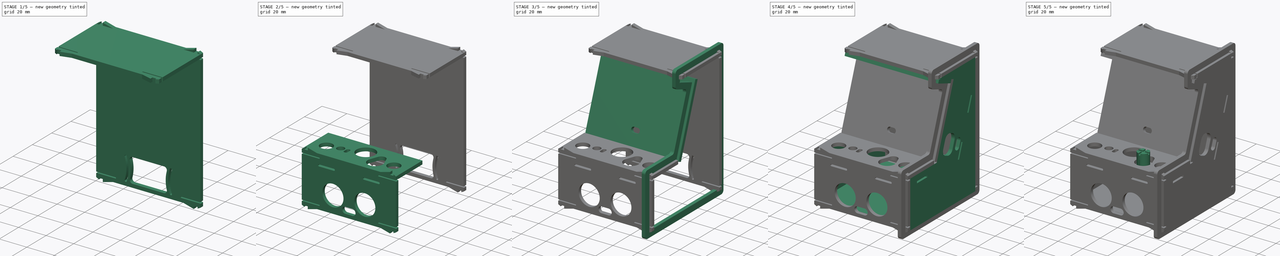
[diagram: build sequence overview — one tinted view per stage of 5, left to right]
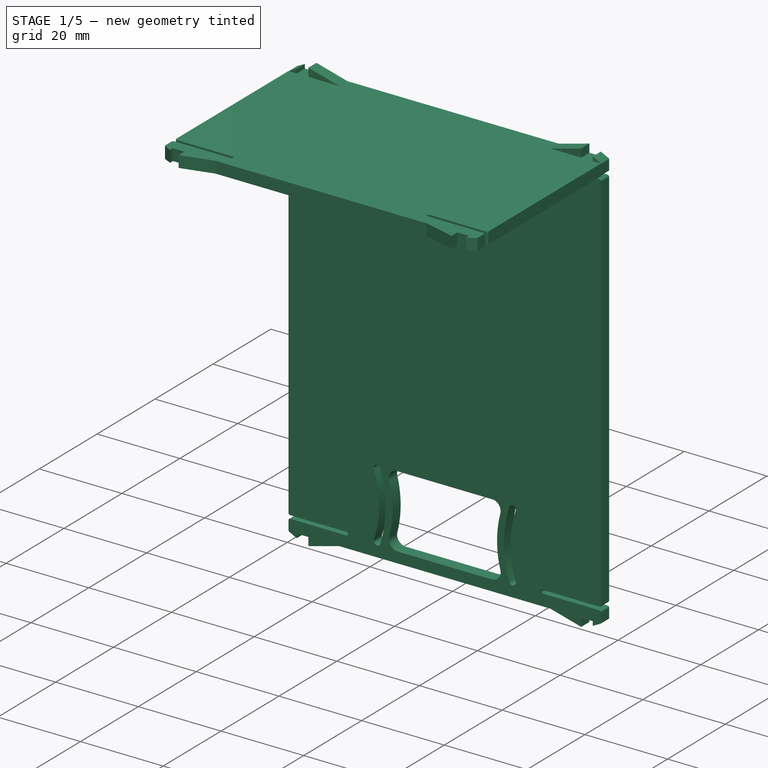
[diagram: stage 1 of 5 — iso view after this stage's code; geometry added in this stage tinted green]
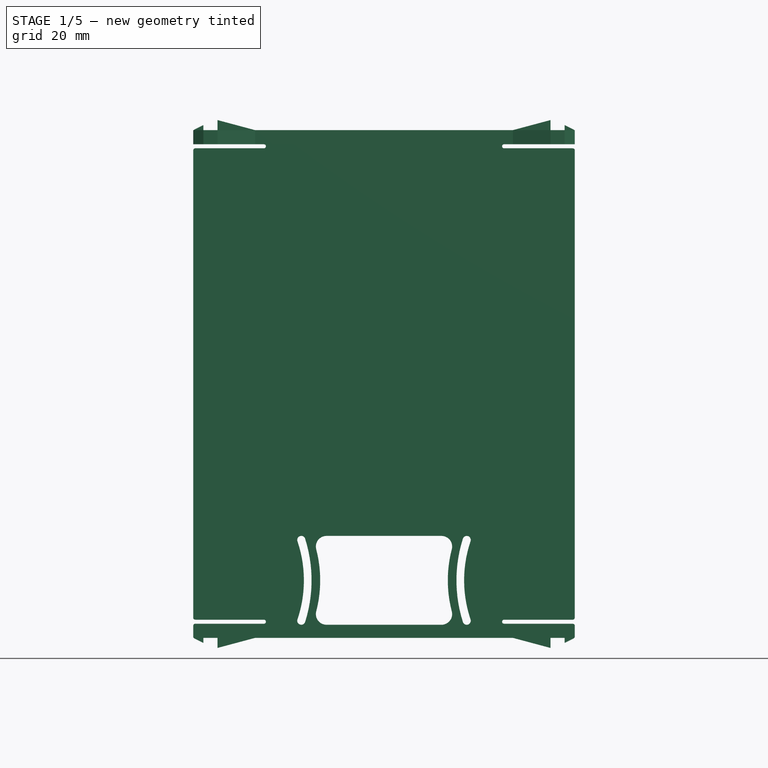
[diagram: stage 1 of 5 — front view after this stage's code; geometry added in this stage tinted green]
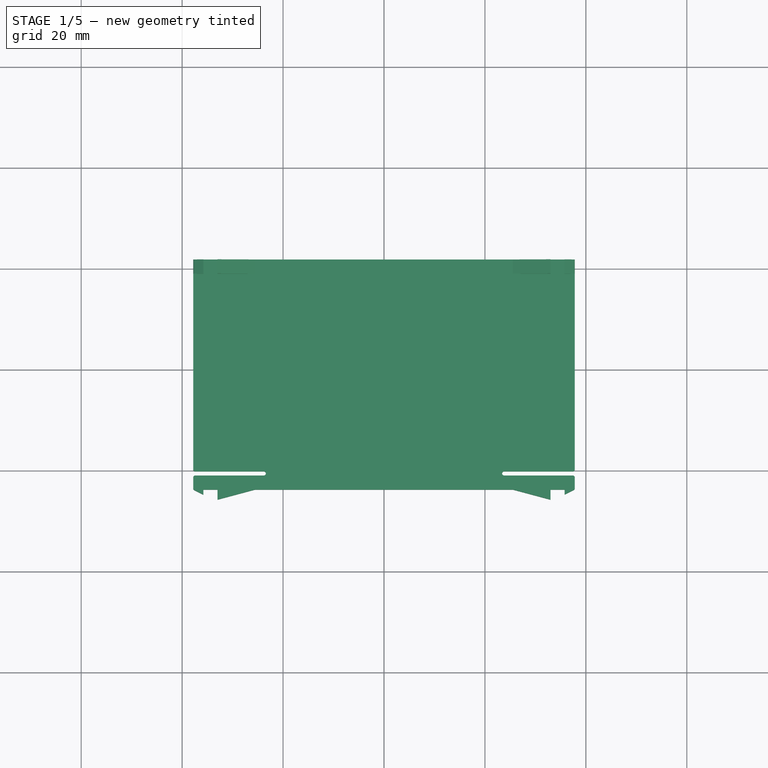
[diagram: stage 1 of 5 — top view after this stage's code; geometry added in this stage tinted green]
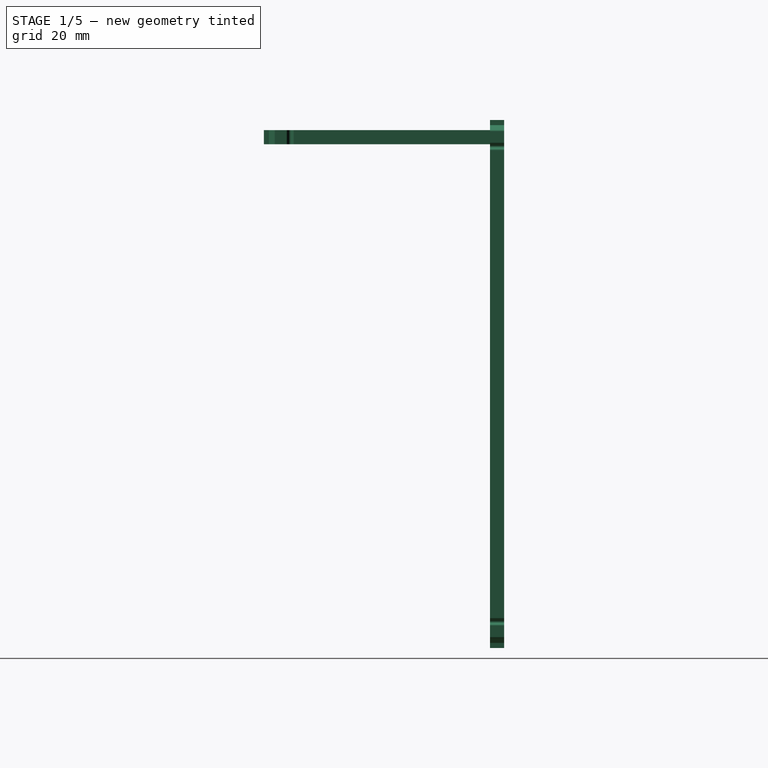
[diagram: stage 1 of 5 — right view after this stage's code; geometry added in this stage tinted green]
FCSTD DOCUMENT  (FreeCAD 1.0R39319 (Git))
Label: TheThing_v8_multijoin
License: CERN Open Hardware Licence permissive
LicenseURL: https://cern-ohl.web.cern.ch/
objects: Part::Feature×101, Sketcher::SketchObject×21, PartDesign::SubShapeBinder×15, App::Part×13, PartDesign::Body×13, PartDesign::Pad×12, PartDesign::Pocket×7, PartDesign::ShapeBinder×7, App::DocumentObjectGroup×3, PartDesign::Fillet×3, Spreadsheet::Sheet×1, PartDesign::FeatureBase×1, PartDesign::Plane×1, PartDesign::Chamfer×1, Part::FeaturePython×1
note: 251 computed .brp shape members not serialized (recipe doc carries the construction recipe); baked Part::Feature solids carry a one-line shape summary decoded from their .brp

FEATURE [PartDesign::Body] Body014  label="Body_left_clip"
  AllowCompound = false
  BaseFeature = -> Body012
  Group = -> [Clone001]
  Origin = -> Origin042
  Placement = pos=(-68.8,0,0) rot=(0,0,1;0rad)
  Tip = -> Clone001
FEATURE [Part::Feature] Part__Feature4057  label="(Unsaved)"
  shape: bbox 6.42 x 5.646 x 1.8 mm, 24 faces (baked)
FEATURE [Part::Feature] Part__Feature4058  label="(Unsaved)001"
  shape: bbox 6.48 x 7.2 x 9.25 mm, 92 faces (baked)
FEATURE [App::Part] _Unsaved_  label="trimpot"
  Group = -> [Part__Feature4057,Part__Feature4058]
  Origin = -> Origin117
  Placement = pos=(14.2,-51.4,-1.2) rot=(0,0,1;3.14159rad)
FEATURE [PartDesign::Plane] DatumPlane
  Length = 62.6241
  MapMode = 5
  Placement = pos=(0,0,3.15) rot=(0,0,1;0rad)
  ResizeMode = 0
  Width = 92.3081
FEATURE [Part::Feature] Part__Feature4059  label="SW_CuK_OS102011MA1QN1_SPDT_Angled001"
  Placement = pos=(27.7,-13.2,1.595) rot=(0,0,1;1.5708rad)
  shape: bbox 8.4 x 8.6 x 7.6 mm, 200 faces (baked)
FEATURE [Part::Feature] Part__Feature4060  label="PinHeader_1x04_P2.54mm_Vertical007"
  Placement = pos=(-32.8,-0.72,1.595) rot=(0,0,1;1.5708rad)
  shape: bbox 10.16 x 2.54 x 11.54 mm, 100 faces (baked)
FEATURE [Part::Feature] Part__Feature4061  label="R_Axial_DIN0207_L6.3mm_D2.5mm_P7.62mm_Horizontal035"
  Placement = pos=(8,8.15,1.595) rot=(0,0,1;0rad)
  shape: bbox 8.418 x 2.706 x 5.603 mm, 15 faces (baked)
FEATURE [Part::Feature] Part__Feature4062  label="D_DO-41_SOD81_P10.16mm_Horizontal008"
  Placement = pos=(27.4,-3.78,1.595) rot=(0,0,1;1.5708rad)
  shape: bbox 2.72 x 11.16 x 5.71 mm, 15 faces (baked)
FEATURE [Part::Feature] Part__Feature4063  label="PinHeader_1x10_P2.54mm_Vertical004"
  Placement = pos=(11.425,-30,1.595) rot=(0,0,-1;1.5708rad)
  shape: bbox 25.4 x 2.54 x 11.54 mm, 244 faces (baked)
FEATURE [Part::Feature] Part__Feature4064  label="PinHeader_1x03_P2.54mm_Vertical047"
  Placement = pos=(-18.54,-24.92,1.595) rot=(0,0,1;0rad)
  shape: bbox 2.54 x 7.62 x 11.54 mm, 76 faces (baked)
FEATURE [Part::Feature] Part__Feature4065  label="R_Axial_DIN0207_L6.3mm_D2.5mm_P7.62mm_Horizontal036"
  Placement = pos=(-7.98,10.69,1.595) rot=(0,0,1;3.14159rad)
  shape: bbox 8.418 x 2.706 x 5.603 mm, 15 faces (baked)
FEATURE [Part::Feature] Part__Feature4066  label="R_Axial_DIN0207_L6.3mm_D2.5mm_P7.62mm_Horizontal037"
  Placement = pos=(-32.8,-5.8,1.595) rot=(0,0,1;0rad)
  shape: bbox 8.418 x 2.706 x 5.603 mm, 15 faces (baked)
FEATURE [Part::Feature] Part__Feature4067  label="PinSocket_1x15_P2.54mm_Vertical"
  Placement = pos=(19.812,-3.81,1.595) rot=(0,0,-1;1.5708rad)
  shape: bbox 38.1 x 2.54 x 11.6 mm, 400 faces (baked)
FEATURE [Part::Feature] Part__Feature4068  label="arduino_nano"
  Placement = pos=(-18.288,-11.43,10.231) rot=(0,0,1;1.5708rad)
  shape: bbox 45 x 18 x 18.6 mm, 4993 faces (baked)
FEATURE [Part::Feature] Part__Feature4069  label="arduino_nano006"
  Placement = pos=(-18.288,-11.43,10.231) rot=(0,0,1;1.5708rad)
  shape: bbox 11.25 x 11.25 x 1.2 mm, 1867 faces (baked)
FEATURE [App::Part] arduino_nano  label="arduino_nano007"
  Group = -> [Part__Feature4068,Part__Feature4069]
  Origin = -> Origin119
FEATURE [Part::Feature] Part__Feature4070  label="R_Axial_DIN0207_L6.3mm_D2.5mm_P7.62mm_Horizontal038"
  Placement = pos=(8,15.77,1.595) rot=(0,0,1;0rad)
  shape: bbox 8.418 x 2.706 x 5.603 mm, 15 faces (baked)
FEATURE [Part::Feature] Part__Feature4071  label="PinHeader_1x03_P2.54mm_Vertical048"
  Placement = pos=(-16,-24.92,1.595) rot=(0,0,1;0rad)
  shape: bbox 2.54 x 7.62 x 11.54 mm, 76 faces (baked)
FEATURE [Part::Feature] Part__Feature4072  label="PinHeader_1x03_P2.54mm_Vertical049"
  Placement = pos=(-23.62,-24.92,1.595) rot=(0,0,1;0rad)
  shape: bbox 2.54 x 7.62 x 11.54 mm, 76 faces (baked)
FEATURE [Part::Feature] Part__Feature4073  label="PinHeader_1x03_P2.54mm_Vertical050"
  Placement = pos=(16,-24.92,1.595) rot=(0,0,1;0rad)
  shape: bbox 2.54 x 7.62 x 11.54 mm, 76 faces (baked)
FEATURE [Part::Feature] Part__Feature4074  label="PinHeader_1x03_P2.54mm_Vertical051"
  Placement = pos=(-25.19,-10.6,1.595) rot=(0,0,1;0rad)
  shape: bbox 2.54 x 7.62 x 11.54 mm, 76 faces (baked)
FEATURE [Part::Feature] Part__Feature4075  label="Display_OLED-1_3-128X64"
  Placement = pos=(0,14.232,10.595) rot=(0,0,1;0rad)
  shape: bbox 22 x 7.55 x 2.35 mm, 18 faces (baked)
FEATURE [Part::Feature] Part__Feature4076  label="Display_OLED-1_3-128X072"
  Placement = pos=(0,14.232,10.595) rot=(0,0,1;0rad)
  shape: bbox 35.65 x 33.6 x 2.6 mm, 215 faces (baked)
FEATURE [Part::Feature] Part__Feature4077  label="Display_OLED-1_3-128X073"
  Placement = pos=(0,14.232,10.595) rot=(0,0,1;0rad)
  shape: bbox 10.16 x 2.55 x 11.8 mm, 156 faces (baked)
FEATURE [App::Part] Display_OLED_1_3_128X64  label="Display_OLED-1_3-128X074"
  Group = -> [Part__Feature4075,Part__Feature4076,Part__Feature4077]
  Origin = -> Origin120
FEATURE [Part::Feature] Part__Feature4078  label="PinSocket_1x04_P2.54mm_Vertical001"
  Placement = pos=(-3.81,29.632,1.595) rot=(0,0,1;1.5708rad)
  shape: bbox 10.16 x 2.54 x 11.6 mm, 114 faces (baked)
FEATURE [Part::Feature] Part__Feature4079  label="PinSocket_1x15_P2.54mm_Vertical004"
  Placement = pos=(19.812,-19.05,1.595) rot=(0,0,-1;1.5708rad)
  shape: bbox 38.1 x 2.54 x 11.6 mm, 400 faces (baked)
FEATURE [Part::Feature] Part__Feature4080  label="R_Axial_DIN0207_L6.3mm_D2.5mm_P7.62mm_Horizontal039"
  Placement = pos=(-7.98,15.77,1.595) rot=(0,0,1;3.14159rad)
  shape: bbox 8.418 x 2.706 x 5.603 mm, 15 faces (baked)
FEATURE [Part::Feature] Part__Feature4081  label="R_Axial_DIN0207_L6.3mm_D2.5mm_P7.62mm_Horizontal040"
  Placement = pos=(-7.98,18.31,1.595) rot=(0,0,1;3.14159rad)
  shape: bbox 8.418 x 2.706 x 5.603 mm, 15 faces (baked)
FEATURE [Part::Feature] Part__Feature4082  label="PinHeader_1x03_P2.54mm_Vertical052"
  Placement = pos=(-32.81,-10.6,1.595) rot=(0,0,1;0rad)
  shape: bbox 2.54 x 7.62 x 11.54 mm, 76 faces (baked)
FEATURE [Part::Feature] Part__Feature4083  label="R_Axial_DIN0207_L6.3mm_D2.5mm_P7.62mm_Horizontal041"
  Placement = pos=(8,13.23,1.595) rot=(0,0,1;0rad)
  shape: bbox 8.418 x 2.706 x 5.603 mm, 15 faces (baked)
FEATURE [Part::Feature] Part__Feature4084  label="PinHeader_1x03_P2.54mm_Vertical053"
  Placement = pos=(-30.27,-10.6,1.595) rot=(0,0,1;0rad)
  shape: bbox 2.54 x 7.62 x 11.54 mm, 76 faces (baked)
FEATURE [Part::Feature] Part__Feature4085  label="R_Axial_DIN0207_L6.3mm_D2.5mm_P7.62mm_Horizontal042"
  Placement = pos=(8,18.31,1.595) rot=(0,0,1;0rad)
  shape: bbox 8.418 x 2.706 x 5.603 mm, 15 faces (baked)
FEATURE [Part::Feature] Part__Feature4086  label="R_Axial_DIN0207_L6.3mm_D2.5mm_P7.62mm_Horizontal043"
  Placement = pos=(-7.98,13.23,1.595) rot=(0,0,1;3.14159rad)
  shape: bbox 8.418 x 2.706 x 5.603 mm, 15 faces (baked)
FEATURE [Part::Feature] Part__Feature4087  label="R_Axial_DIN0207_L6.3mm_D2.5mm_P7.62mm_Horizontal044"
  Placement = pos=(-7.98,8.15,1.595) rot=(0,0,1;3.14159rad)
  shape: bbox 8.418 x 2.706 x 5.603 mm, 15 faces (baked)
FEATURE [Part::Feature] Part__Feature4088  label="PinHeader_1x03_P2.54mm_Vertical054"
  Placement = pos=(18.54,-24.92,1.595) rot=(0,0,1;0rad)
  shape: bbox 2.54 x 7.62 x 11.54 mm, 76 faces (baked)
FEATURE [Part::Feature] Part__Feature4089  label="R_Axial_DIN0207_L6.3mm_D2.5mm_P7.62mm_Horizontal045"
  Placement = pos=(-32.8,1.82,1.595) rot=(0,0,1;0rad)
  shape: bbox 8.418 x 2.706 x 5.603 mm, 15 faces (baked)
FEATURE [Part::Feature] Part__Feature4090  label="PinHeader_1x03_P2.54mm_Vertical055"
  Placement = pos=(-21.08,-24.92,1.595) rot=(0,0,1;0rad)
  shape: bbox 2.54 x 7.62 x 11.54 mm, 76 faces (baked)
FEATURE [Part::Feature] Part__Feature4091  label="R_Axial_DIN0207_L6.3mm_D2.5mm_P7.62mm_Horizontal046"
  Placement = pos=(8,10.69,1.595) rot=(0,0,1;0rad)
  shape: bbox 8.418 x 2.706 x 5.603 mm, 15 faces (baked)
FEATURE [Part::Feature] Part__Feature4092  label="PinHeader_1x03_P2.54mm_Vertical056"
  Placement = pos=(21.08,-24.92,1.595) rot=(0,0,1;0rad)
  shape: bbox 2.54 x 7.62 x 11.54 mm, 76 faces (baked)
FEATURE [Part::Feature] Part__Feature4093  label="PinHeader_1x03_P2.54mm_Vertical057"
  Placement = pos=(-27.73,-10.6,1.595) rot=(0,0,1;0rad)
  shape: bbox 2.54 x 7.62 x 11.54 mm, 76 faces (baked)
FEATURE [Part::Feature] Part__Feature4094  label="PinHeader_1x04_P2.54mm_Vertical008"
  Placement = pos=(-32.8,-3.26,1.595) rot=(0,0,1;1.5708rad)
  shape: bbox 10.16 x 2.54 x 11.54 mm, 100 faces (baked)
FEATURE [Part::Feature] Part__Feature4095  label="PinHeader_1x03_P2.54mm_Vertical058"
  Placement = pos=(23.62,-24.92,1.595) rot=(0,0,1;0rad)
  shape: bbox 2.54 x 7.62 x 11.54 mm, 76 faces (baked)
FEATURE [Part::Feature] Part__Feature4096  label="PinSocket_1x03_P2.54mm_Horizontal_haptic"
  Placement = pos=(2.54,13.3,-0.085) rot=(0.707107,0.707107,0;3.14159rad)
  shape: bbox 7.62 x 10.13 x 5.84 mm, 100 faces (baked)
FEATURE [Part::Feature] Part__Feature4097  label="PinSocket_1x03_P2.54mm_Horizontal_haptic001"
  Placement = pos=(2.54,13.3,-0.085) rot=(0.707107,0.707107,0;3.14159rad)
  shape: bbox 21.2 x 23.2 x 1.65 mm, 147 faces (baked)
FEATURE [Part::Feature] Part__Feature4098  label="PinSocket_1x03_P2.54mm_Horizontal_haptic002"
  Placement = pos=(2.54,13.3,-0.085) rot=(0.707107,0.707107,0;3.14159rad)
  shape: bbox 2.4 x 2.4 x 2.4 mm, 10 faces (baked)
FEATURE [Part::Feature] Part__Feature4099  label="PinSocket_1x03_P2.54mm_Horizontal_haptic003"
  Placement = pos=(2.54,13.3,-0.085) rot=(0.707107,0.707107,0;3.14159rad)
  shape: bbox 0.6 x 7.5 x 6.4 mm, 10 faces (baked)
FEATURE [Part::Feature] Part__Feature4100  label="PinSocket_1x03_P2.54mm_Horizontal_haptic004"
  Placement = pos=(2.54,13.3,-0.085) rot=(0.707107,0.707107,0;3.14159rad)
  shape: bbox 2.4 x 2.4 x 2.4 mm, 10 faces (baked)
FEATURE [Part::Feature] Part__Feature4101  label="PinSocket_1x03_P2.54mm_Horizontal_haptic005"
  Placement = pos=(2.54,13.3,-0.085) rot=(0.707107,0.707107,0;3.14159rad)
  shape: bbox 0.6 x 7.5 x 6.4 mm, 10 faces (baked)
FEATURE [Part::Feature] Part__Feature4102  label="PinSocket_1x03_P2.54mm_Horizontal_haptic006"
  Placement = pos=(2.54,13.3,-0.085) rot=(0.707107,0.707107,0;3.14159rad)
  shape: bbox 2.4 x 2.4 x 2.4 mm, 10 faces (baked)
FEATURE [Part::Feature] Part__Feature4103  label="PinSocket_1x03_P2.54mm_Horizontal_haptic007"
  Placement = pos=(2.54,13.3,-0.085) rot=(0.707107,0.707107,0;3.14159rad)
  shape: bbox 0.6 x 7.5 x 6.4 mm, 10 faces (baked)
FEATURE [Part::Feature] Part__Feature4104  label="PinSocket_1x03_P2.54mm_Horizontal_haptic008"
  Placement = pos=(2.54,13.3,-0.085) rot=(0.707107,0.707107,0;3.14159rad)
  shape: bbox 10 x 10 x 3.4 mm, 4 faces (baked)
FEATURE [App::Part] PinSocket_1x03_P2_54mm_Horizontal_haptic  label="PinSocket_1x03_P2.54mm_Horizontal_haptic009"
  Group = -> [Part__Feature4096,Part__Feature4097,Part__Feature4098,Part__Feature4099,Part__Feature4100,Part__Feature4101,Part__Feature4102,Part__Feature4103,Part__Feature4104]
  Origin = -> Origin121
FEATURE [Part::Feature] Part__Feature4105  label="PinHeader_1x02_P2.54mm_Horizontal"
  Placement = pos=(30.3,17.4,-0.085) rot=(0.707107,-0.707107,0;3.14159rad)
  shape: bbox 5.08 x 10.36 x 5.54 mm, 58 faces (baked)
FEATURE [Part::Feature] Part__Feature4106  label="TheThing_main_PCB001"
  shape: bbox 80 x 64 x 1.51 mm, 290 faces (baked)
FEATURE [App::Part] TheThing_main_1  label="TheThing_main_v8"
  Group = -> [Part__Feature4059,Part__Feature4060,Part__Feature4061,Part__Feature4062,Part__Feature4063,Part__Feature4064,Part__Feature4065,Part__Feature4066,Part__Feature4067,arduino_nano,Part__Feature4070,Part__Feature4071,Part__Feature4072,Part__Feature4073,Part__Feature4074,Display_OLED_1_3_128X64,Part__Feature4078,Part__Feature4079,Part__Feature4080,Part__Feature4081,Part__Feature4082,Part__Feature4083,+15 more]
  Origin = -> Origin122
  Placement = pos=(0,6,13.5) rot=(1,0,0;1.22173rad)
FEATURE [PartDesign::SubShapeBinder] Binder033
  BindCopyOnChange = 0
  BindMode = 0
  ClaimChildren = false
  Context = -> Body [Binder033.]
  Fuse = false
  MakeFace = true
  OffsetFill = false
  OffsetIntersection = false
  OffsetJoinType = 0
  OffsetOpenResult = false
  PartialLoad = false
  Refine = true
  Relative = true
  Support = -> [TheThing_main_1]
  _Version = 2
FEATURE [Part::Feature] Part__Feature4107  label="R_Axial_DIN0207_L6.3mm_D2.5mm_P7.62mm_Horizontal047"
  Placement = pos=(-24.6,11.8,1.595) rot=(0,0,1;0rad)
  shape: bbox 8.418 x 2.706 x 5.603 mm, 15 faces (baked)
FEATURE [Part::Feature] Part__Feature4108  label="SW_TS14-1212-120-BK-160-SCR-D"
  Placement = pos=(29.54,4.1,1.595) rot=(0,0,-1;1.5708rad)
  shape: bbox 1 x 1 x 4.5 mm, 24 faces (baked)
FEATURE [Part::Feature] Part__Feature4109  label="SW_TS14-1212-120-BK-160-SCR-D001"
  Placement = pos=(29.54,4.1,1.595) rot=(0,0,-1;1.5708rad)
  shape: bbox 10.4 x 10.4 x 0.2 mm, 20 faces (baked)
FEATURE [Part::Feature] Part__Feature4110  label="SW_TS14-1212-120-BK-160-SCR-D002"
  Placement = pos=(29.54,4.1,1.595) rot=(0,0,-1;1.5708rad)
  shape: bbox 12 x 12 x 12 mm, 59 faces (baked)
FEATURE [Part::Feature] Part__Feature4111  label="SW_TS14-1212-120-BK-160-SCR-D003"
  Placement = pos=(29.54,4.1,1.595) rot=(0,0,-1;1.5708rad)
  shape: bbox 1 x 1 x 4.5 mm, 24 faces (baked)
FEATURE [Part::Feature] Part__Feature4112  label="SW_TS14-1212-120-BK-160-SCR-D004"
  Placement = pos=(29.54,4.1,1.595) rot=(0,0,-1;1.5708rad)
  shape: bbox 1 x 1 x 4.5 mm, 24 faces (baked)
FEATURE [Part::Feature] Part__Feature4113  label="SW_TS14-1212-120-BK-160-SCR-D005"
  Placement = pos=(29.54,4.1,1.595) rot=(0,0,-1;1.5708rad)
  shape: bbox 1 x 1 x 4.5 mm, 24 faces (baked)
FEATURE [App::Part] SW_TS14_1212_120_BK_160_SCR_D  label="SW_TS14-1212-120-BK-160-SCR-D006"
  Group = -> [Part__Feature4108,Part__Feature4109,Part__Feature4110,Part__Feature4111,Part__Feature4112,Part__Feature4113]
  Origin = -> Origin123
FEATURE [Part::Feature] Part__Feature4114  label="R_Axial_DIN0207_L6.3mm_D2.5mm_P7.62mm_Horizontal048"
  Placement = pos=(17,11.8,1.595) rot=(0,0,1;0rad)
  shape: bbox 8.418 x 2.706 x 5.603 mm, 15 faces (baked)
FEATURE [Part::Feature] Part__Feature4115  label="R_LDR_4.2x3.5mm_P2.54mm_Vertical003"
  Placement = pos=(-17.018,-1.508,1.595) rot=(0,0,1;1.5708rad)
  shape: bbox 3.5 x 4.2 x 7 mm, 14 faces (baked)
FEATURE [Part::Feature] Part__Feature4116  label="R_LDR_4.2x3.5mm_P2.54mm_Vertical004"
  Placement = pos=(-17.018,-1.508,1.595) rot=(0,0,1;1.5708rad)
  shape: bbox 3.15 x 2.1 x 0.05 mm, 42 faces (baked)
FEATURE [App::Part] R_LDR_4_2x3_5mm_P2_54mm_Vertical001  label="R_LDR_4.2x3.5mm_P2.54mm_Vertical005"
  Group = -> [Part__Feature4115,Part__Feature4116]
  Origin = -> Origin124
FEATURE [Part::Feature] Part__Feature4117  label="Trimpot_THT"
  Placement = pos=(14.22,-6.094,4.795) rot=(0,0,1;3.14159rad)
  shape: bbox 6.42 x 5.646 x 1.8 mm, 24 faces (baked)
FEATURE [Part::Feature] Part__Feature4118  label="Trimpot_THT001"
  Placement = pos=(14.22,-6.094,4.795) rot=(0,0,1;3.14159rad)
  shape: bbox 6.48 x 7.2 x 9.25 mm, 92 faces (baked)
FEATURE [App::Part] Trimpot_THT  label="Trimpot_THT002"
  Group = -> [Part__Feature4117,Part__Feature4118]
  Origin = -> Origin125
FEATURE [Part::Feature] Part__Feature4119  label="C_Disc_D3.0mm_W2.0mm_P2.50mm001"
  Placement = pos=(-11.43,-2.25,1.595) rot=(0,0,1;1.5708rad)
  shape: bbox 2 x 3 x 5.1 mm, 12 faces (baked)
FEATURE [Part::Feature] Part__Feature4120  label="TO-093"
  Placement = pos=(12.68,2.03,1.595) rot=(0,0,1;0rad)
  shape: bbox 4.83 x 3.745 x 9.8 mm, 23 faces (baked)
FEATURE [Part::Feature] Part__Feature4121  label="D_DO-41_SOD81_P10.16mm_Horizontal009"
  Placement = pos=(-8.382,-6.08,1.595) rot=(0,0,1;1.5708rad)
  shape: bbox 2.72 x 11.16 x 5.71 mm, 15 faces (baked)
FEATURE [Part::Feature] Part__Feature4122  label="R_Axial_DIN0207_L6.3mm_D2.5mm_P7.62mm_Horizontal049"
  Placement = pos=(-17,8.3,1.595) rot=(0,0,1;3.14159rad)
  shape: bbox 8.418 x 2.706 x 5.603 mm, 15 faces (baked)
FEATURE [Part::Feature] Part__Feature4123  label="SW_TS14-1212-120-BK-160-SCR-D007"
  Placement = pos=(-29.54,-8.5,1.595) rot=(0,0,1;1.5708rad)
  shape: bbox 1 x 1 x 4.5 mm, 24 faces (baked)
FEATURE [Part::Feature] Part__Feature4124  label="SW_TS14-1212-120-BK-160-SCR-D008"
  Placement = pos=(-29.54,-8.5,1.595) rot=(0,0,1;1.5708rad)
  shape: bbox 10.4 x 10.4 x 0.2 mm, 20 faces (baked)
FEATURE [Part::Feature] Part__Feature4125  label="SW_TS14-1212-120-BK-160-SCR-D009"
  Placement = pos=(-29.54,-8.5,1.595) rot=(0,0,1;1.5708rad)
  shape: bbox 12 x 12 x 12 mm, 59 faces (baked)
FEATURE [Part::Feature] Part__Feature4126  label="SW_TS14-1212-120-BK-160-SCR-D010"
  Placement = pos=(-29.54,-8.5,1.595) rot=(0,0,1;1.5708rad)
  shape: bbox 1 x 1 x 4.5 mm, 24 faces (baked)
FEATURE [Part::Feature] Part__Feature4127  label="SW_TS14-1212-120-BK-160-SCR-D011"
  Placement = pos=(-29.54,-8.5,1.595) rot=(0,0,1;1.5708rad)
  shape: bbox 1 x 1 x 4.5 mm, 24 faces (baked)
FEATURE [Part::Feature] Part__Feature4128  label="SW_TS14-1212-120-BK-160-SCR-D012"
  Placement = pos=(-29.54,-8.5,1.595) rot=(0,0,1;1.5708rad)
  shape: bbox 1 x 1 x 4.5 mm, 24 faces (baked)
FEATURE [App::Part] SW_TS14_1212_120_BK_160_SCR_D001  label="SW_TS14-1212-120-BK-160-SCR-D013"
  Group = -> [Part__Feature4123,Part__Feature4124,Part__Feature4125,Part__Feature4126,Part__Feature4127,Part__Feature4128]
  Origin = -> Origin126
FEATURE [Part::Feature] Part__Feature4129  label="Buzzer_D12_P6.5_WT-1210"
  Placement = pos=(-0.01,4.334,1.595) rot=(0,0,1;1.5708rad)
  shape: bbox 0.6 x 0.6 x 3.8 mm, 4 faces (baked)
FEATURE [Part::Feature] Part__Feature4130  label="Buzzer_D12_P6.5_WT-1211"
  Placement = pos=(-0.01,4.334,1.595) rot=(0,0,1;1.5708rad)
  shape: bbox 0.6 x 0.6 x 3.8 mm, 4 faces (baked)
FEATURE [Part::Feature] Part__Feature4131  label="Buzzer_D12_P6.5_WT-1212"
  Placement = pos=(-0.01,4.334,1.595) rot=(0,0,1;1.5708rad)
  shape: bbox 0.01 x 1.746 x 1.746 mm, 14 faces (baked)
FEATURE [Part::Feature] Part__Feature4132  label="Buzzer_D12_P6.5_WT-1213"
  Placement = pos=(-0.01,4.334,1.595) rot=(0,0,1;1.5708rad)
  shape: bbox 12.99 x 12.99 x 9.5 mm, 112 faces (baked)
FEATURE [App::Part] Buzzer_D12_P6_5_WT_1206  label="Buzzer_D12_P6.5_WT-1214"
  Group = -> [Part__Feature4129,Part__Feature4130,Part__Feature4131,Part__Feature4132]
  Origin = -> Origin127
FEATURE [Part::Feature] Part__Feature4133  label="R_Axial_DIN0207_L6.3mm_D2.5mm_P7.62mm_Horizontal050"
  Placement = pos=(17,8.3,1.595) rot=(0,0,1;0rad)
  shape: bbox 8.418 x 2.706 x 5.603 mm, 15 faces (baked)
FEATURE [Part::Feature] Part__Feature4134  label="PinSocket_1x04_P2.54mm_Vertical002"
  Placement = pos=(3.81,-3.794,-0.085) rot=(0.707107,0.707107,0;3.14159rad)
  shape: bbox 10.16 x 2.54 x 11.6 mm, 114 faces (baked)
FEATURE [Part::Feature] Part__Feature4135  label="PinHeader_1x10_P2.54mm_Vertical005"
  Placement = pos=(11.42,12.462,-0.085) rot=(0.707107,0.707107,0;3.14159rad)
  shape: bbox 25.4 x 2.54 x 11.54 mm, 244 faces (baked)
FEATURE [Part::Feature] Part__Feature4136  label="TheThing_addon_PCB001"
  shape: bbox 75.2 x 29.6 x 1.51 mm, 128 faces (baked)
FEATURE [App::Part] TheThing_addon_002  label="TheThing_addon_v8"
  Group = -> [Part__Feature4107,SW_TS14_1212_120_BK_160_SCR_D,Part__Feature4114,R_LDR_4_2x3_5mm_P2_54mm_Vertical001,Trimpot_THT,Part__Feature4119,Part__Feature4120,Part__Feature4121,Part__Feature4122,SW_TS14_1212_120_BK_160_SCR_D001,Buzzer_D12_P6_5_WT_1206,Part__Feature4133,Part__Feature4134,Part__Feature4135,Part__Feature4136]
  Origin = -> Origin128
  Placement = pos=(0,-45.3,-6) rot=(0,0,1;0rad)
FEATURE [App::DocumentObjectGroup] Group001  label="External_Electronic_Parts"
  Group = -> [_68005_cp005_cp,Part__Feature978,User_Library_9V_Duracell_Battery001,_Unsaved_,TheThing_main_1,TheThing_addon_002]
FEATURE [PartDesign::SubShapeBinder] Binder034
  BindCopyOnChange = 0
  BindMode = 0
  ClaimChildren = false
  Context = -> Body [Binder034.]
  Fuse = false
  MakeFace = true
  OffsetFill = false
  OffsetIntersection = false
  OffsetJoinType = 0
  OffsetOpenResult = false
  PartialLoad = false
  Refine = true
  Relative = true
  Support = -> [TheThing_addon_002]
  _Version = 2
FEATURE [Sketcher::SketchObject] Sketch
  ArcFitTolerance = 0
  ExternalGeometry = -> [Binder020,Binder033,Binder034]
  FullyConstrained = true
  MakeInternals = false
  MapMode = 5
  Placement = pos=(0,0,0) rot=(0.57735,0.57735,0.57735;2.0944rad)
  expr: Constraints[30] = Spreadsheet.Acrylic_thickness
  expr: Constraints[59] = Spreadsheet.Acrylic_thickness
  sketch-geometry (38):
    g0: LineSegment StartX=17.3 StartY=-34.6 StartZ=0 EndX=17.3 EndY=60.4 EndZ=0
    g1: LineSegment StartX=17.3 StartY=60.4 StartZ=0 EndX=-22.7 EndY=60.4 EndZ=0
    g2: LineSegment StartX=-22.7 StartY=60.4 StartZ=0 EndX=-22.7 EndY=59.3809 EndZ=0
    g3: LineSegment StartX=-22.7 StartY=59.3809 StartZ=0 EndX=-7.7 EndY=53.9213 EndZ=0
    g4: LineSegment StartX=-7.7 StartY=53.9213 StartZ=0 EndX=-27.1802 EndY=0.4 EndZ=0
    g5: LineSegment StartX=-27.1802 StartY=0.4 StartZ=0 EndX=-57.7 EndY=0.4 EndZ=0
    g6: LineSegment StartX=-57.7 StartY=0.4 StartZ=0 EndX=-57.7 EndY=-34.6 EndZ=0
    g7: LineSegment StartX=-57.7 StartY=-34.6 StartZ=0 EndX=17.3 EndY=-34.6 EndZ=0
    g8: LineSegment StartX=-25.5 StartY=63.2 StartZ=0 EndX=20.1 EndY=63.2 EndZ=0
    g9: LineSegment StartX=20.1 StartY=63.2 StartZ=0 EndX=20.1 EndY=-37.4 EndZ=0
    g10: LineSegment StartX=20.1 StartY=-37.4 StartZ=0 EndX=-60.5 EndY=-37.4 EndZ=0
    g11: LineSegment StartX=-60.5 StartY=-37.4 StartZ=0 EndX=-60.5 EndY=3.2 EndZ=0
    g12: LineSegment StartX=-60.5 StartY=3.2 StartZ=0 EndX=-29.1408 EndY=3.2 EndZ=0
    g13: LineSegment StartX=-11.2888 StartY=52.2478 StartZ=0 EndX=-25.5 EndY=57.4203 EndZ=0
    g14: LineSegment StartX=-25.5 StartY=57.4203 StartZ=0 EndX=-25.5 EndY=63.2 EndZ=0
    g15: LineSegment [constr] StartX=-22.7 StartY=60.4 StartZ=0 EndX=-22.7 EndY=63.2 EndZ=0
    g16: LineSegment [constr] StartX=17.3 StartY=60.4 StartZ=0 EndX=20.1 EndY=60.4 EndZ=0
    g17: LineSegment [constr] StartX=17.3 StartY=-34.6 StartZ=0 EndX=17.3 EndY=-37.4 EndZ=0
    g18: LineSegment [constr] StartX=-57.7 StartY=-34.6 StartZ=0 EndX=-60.5 EndY=-34.6 EndZ=0
    g19: LineSegment [constr] StartX=-57.7 StartY=0.4 StartZ=0 EndX=-57.7 EndY=3.2 EndZ=0
    g20: LineSegment [constr] StartX=-22.7 StartY=59.3809 StartZ=0 EndX=-22.7 EndY=56.4012 EndZ=0
    g21: LineSegment StartX=-11.2888 StartY=52.2478 StartZ=0 EndX=-29.1408 EndY=3.2 EndZ=0
    g22: LineSegment [constr] StartX=-11.2888 StartY=52.2478 StartZ=0 EndX=-8.65766 EndY=51.2902 EndZ=0
    g23: LineSegment [constr] StartX=-11.2888 StartY=52.2478 StartZ=0 EndX=-10.3311 EndY=54.879 EndZ=0
    g24: LineSegment [constr] StartX=-22.7 StartY=59.3809 StartZ=0 EndX=-25.5 EndY=60.4 EndZ=0
    g25: LineSegment [constr] StartX=-22.7 StartY=60.4 StartZ=0 EndX=-25.5 EndY=60.4 EndZ=0
    g26: LineSegment StartX=8.00127 StartY=23.4134 StartZ=0 EndX=12.1055 EndY=34.6897 EndZ=0
    g27: LineSegment StartX=13.5244 StartY=34.1732 StartZ=0 EndX=9.4202 EndY=22.8969 EndZ=0
    g28: LineSegment StartX=2.5798 StartY=4.10307 StartZ=0 EndX=-1.52444 EndY=-7.17324 EndZ=0
    g29: LineSegment StartX=-2.94338 StartY=-6.65679 StartZ=0 EndX=1.16086 EndY=4.61952 EndZ=0
    g30: LineSegment StartX=-50 StartY=-6 StartZ=0 EndX=-38 EndY=-6 EndZ=0
    g31: LineSegment StartX=-38 StartY=-4.49 StartZ=0 EndX=-50 EndY=-4.49 EndZ=0
    g32: ArcOfCircle CenterX=-2.23391 CenterY=-6.91501 CenterZ=0 NormalX=0 NormalY=0 NormalZ=1 AngleXU=0 Radius=0.755 StartAngle=2.79253 EndAngle=5.93412
    g33: ArcOfCircle CenterX=1.87033 CenterY=4.3613 CenterZ=0 NormalX=0 NormalY=0 NormalZ=1 AngleXU=0 Radius=0.755 StartAngle=5.93412 EndAngle=9.07571
    g34: ArcOfCircle CenterX=12.815 CenterY=34.4315 CenterZ=0 NormalX=0 NormalY=0 NormalZ=1 AngleXU=0 Radius=0.755 StartAngle=5.93412 EndAngle=9.07571
    g35: ArcOfCircle CenterX=8.71073 CenterY=23.1552 CenterZ=0 NormalX=0 NormalY=0 NormalZ=1 AngleXU=0 Radius=0.755 StartAngle=2.79253 EndAngle=5.93412
    g36: ArcOfCircle CenterX=-50 CenterY=-5.245 CenterZ=0 NormalX=0 NormalY=0 NormalZ=1 AngleXU=0 Radius=0.755 StartAngle=1.5708 EndAngle=4.71239
    g37: ArcOfCircle CenterX=-38 CenterY=-5.245 CenterZ=0 NormalX=0 NormalY=0 NormalZ=1 AngleXU=0 Radius=0.755 StartAngle=4.71239 EndAngle=7.85398
  constraints (99):
    c: Vertical(g0)
    c: Coincident(g0,g1)
    c: Horizontal(g1)
    c: Vertical(g2)
    c: Coincident(g2,g3)
    c: Coincident(g3,g4)
    c: Coincident(g4,g5)
    c: Horizontal(g5)
    c: Coincident(g5,g6)
    c: Vertical(g6)
    c: Coincident(g6,g7)
    c: Coincident(g7,g0)
    c: Horizontal(g7)
    c: DistanceX(g3,g3) = 15
    c: DistanceX(g1,g1) = 40
    c: DistanceY(g6,g6) = 35
    c: DistanceY(g0,g0) = 95
    c: DistanceX(g7,g7) = 75
    c: Horizontal(g8)
    c: Coincident(g8,g9)
    c: Vertical(g9)
    c: Coincident(g9,g10)
    c: Horizontal(g10)
    c: Coincident(g10,g11)
    c: Vertical(g11)
    c: Coincident(g11,g12)
    c: Horizontal(g12)
    c: Coincident(g13,g14)
    c: Coincident(g14,g8)
    c: Vertical(g14)
    c: DistanceX(g8,g1) = 2.8
    c: Coincident(g15,g1)
    c: PointOnObject(g15,g8)
    c: Vertical(g15)
    c: Coincident(g16,g0)
    c: PointOnObject(g16,g9)
    c: Horizontal(g16)
    c: Coincident(g17,g0)
    c: PointOnObject(g17,g10)
    c: Vertical(g17)
    c: Coincident(g18,g6)
    c: PointOnObject(g18,g11)
    c: Horizontal(g18)
    c: Coincident(g19,g5)
    c: PointOnObject(g19,g12)
    c: Vertical(g19)
    c: Coincident(g20,g2)
    c: PointOnObject(g20,g13)
    c: Vertical(g20)
    c: Equal(g15,g16)
    c: Equal(g16,g17)
    c: Equal(g17,g18)
    c: Equal(g18,g19)
    c: Coincident(g21,g13)
    c: Coincident(g21,g12)
    c: Parallel(g21,g4)
    c: Coincident(g22,g13)
    c: PointOnObject(g22,g4)
    c: Perpendicular(g4,g22)
    c: Distance(g22) = 2.8
    c: Distance(g-3,g6) = 0.2
    c: Distance(g-4,g7) = 0.2
    c: Perpendicular(g21,g13)
    c: Parallel(g3,g13)
    c: Coincident(g23,g13)
    c: PointOnObject(g23,g3)
    c: Perpendicular(g22,g23)
    c: Equal(g22,g23)
    c: Coincident(g1,g2)
    c: Coincident(g24,g2)
    c: PointOnObject(g24,g14)
    c: Parallel(g24,g3)
    c: Coincident(g25,g1)
    c: Parallel(g25,g1)
    c: Coincident(g25,g24)
    c: Equal(g22,g19)
    c: Tangent(g33,g28) = 1.5708
    c: Tangent(g33,g29) = 1.5708
    c: Tangent(g32,g28) = 1.5708
    c: Tangent(g32,g29) = 1.5708
    c: Tangent(g35,g27) = 1.5708
    c: Tangent(g35,g26) = 1.5708
    c: Tangent(g34,g27) = 1.5708
    c: Tangent(g34,g26) = 1.5708
    c: Coincident(g36,g30)
    c: Coincident(g37,g31)
    c: Tangent(g36,g31) = -1.5708
    c: Tangent(g37,g30) = -1.5708
    c: Coincident(g29,g-7)
    c: Coincident(g28,g-7)
    c: Coincident(g-8,g29)
    c: Coincident(g-6,g26)
    c: Coincident(g27,g-6)
    c: Coincident(g-5,g26)
    c: Parallel(g4,g-9)
    c: Coincident(g31,g-11)
    c: Coincident(g-11,g30)
    c: Coincident(g30,g-10)
    c: Coincident(g31,g-10)
FEATURE [Sketcher::SketchObject] Sketch030
  ArcFitTolerance = 1e-06
  ExternalGeometry = -> [Sketch]
  FullyConstrained = true
  MakeInternals = false
  MapMode = 5
  Placement = pos=(0,0,0) rot=(0.57735,0.57735,0.57735;2.0944rad)
  expr: Constraints[38] = Spreadsheet.laser_kerf
  sketch-geometry (16):
    g0: LineSegment StartX=-25.3 StartY=63 StartZ=0 EndX=19.9 EndY=63 EndZ=0
    g1: LineSegment StartX=19.9 StartY=63 StartZ=0 EndX=19.9 EndY=-37.2 EndZ=0
    g2: LineSegment StartX=19.9 StartY=-37.2 StartZ=0 EndX=-60.3 EndY=-37.2 EndZ=0
    g3: LineSegment StartX=-60.3 StartY=-37.2 StartZ=0 EndX=-60.3 EndY=3 EndZ=0
    g4: LineSegment StartX=-60.3 StartY=3 StartZ=0 EndX=-29.0007 EndY=3 EndZ=0
    g5: LineSegment StartX=-29.0007 StartY=3 StartZ=0 EndX=-11.0325 EndY=52.3674 EndZ=0
    g6: LineSegment StartX=-11.0325 StartY=52.3674 StartZ=0 EndX=-25.3 EndY=57.5603 EndZ=0
    g7: LineSegment StartX=-25.3 StartY=57.5603 StartZ=0 EndX=-25.3 EndY=63 EndZ=0
    g8: LineSegment [constr] StartX=-25.3 StartY=63 StartZ=0 EndX=-25.3 EndY=63.2 EndZ=0
    g9: LineSegment [constr] StartX=19.9 StartY=63 StartZ=0 EndX=20.1 EndY=63 EndZ=0
    g10: LineSegment [constr] StartX=19.9 StartY=-37.2 StartZ=0 EndX=19.9 EndY=-37.4 EndZ=0
    g11: LineSegment [constr] StartX=-60.3 StartY=-37.2 StartZ=0 EndX=-60.5 EndY=-37.2 EndZ=0
    g12: LineSegment [constr] StartX=-60.3 StartY=3 StartZ=0 EndX=-60.3 EndY=3.2 EndZ=0
    g13: LineSegment [constr] StartX=-29.1408 StartY=3.2 StartZ=0 EndX=-28.9528 EndY=3.1316 EndZ=0
    g14: LineSegment [constr] StartX=-11.2888 StartY=52.2478 StartZ=0 EndX=-11.2204 EndY=52.4358 EndZ=0
    g15: LineSegment [constr] StartX=-25.3 StartY=57.5603 StartZ=0 EndX=-25.5 EndY=57.5603 EndZ=0
  constraints (48):
    c: Horizontal(g0)
    c: Coincident(g0,g1)
    c: Vertical(g1)
    c: Coincident(g1,g2)
    c: Horizontal(g2)
    c: Coincident(g2,g3)
    c: Vertical(g3)
    c: Coincident(g3,g4)
    c: Horizontal(g4)
    c: Coincident(g4,g5)
    c: Coincident(g5,g6)
    c: Coincident(g6,g7)
    c: Coincident(g7,g0)
    c: Vertical(g7)
    c: Coincident(g8,g0)
    c: PointOnObject(g8,g-3)
    c: Vertical(g8)
    c: Coincident(g9,g0)
    c: PointOnObject(g9,g-4)
    c: Horizontal(g9)
    c: Coincident(g10,g1)
    c: PointOnObject(g10,g-5)
    c: Vertical(g10)
    c: Coincident(g11,g2)
    c: PointOnObject(g11,g-6)
    c: Horizontal(g11)
    c: Coincident(g12,g3)
    c: PointOnObject(g12,g-7)
    c: Vertical(g12)
    c: Coincident(g13,g-8)
    c: PointOnObject(g13,g5)
    c: Coincident(g14,g-9)
    c: PointOnObject(g14,g6)
    c: Coincident(g15,g6)
    c: PointOnObject(g15,g-10)
    c: Horizontal(g15)
    c: Parallel(g6,g-9)
    c: Parallel(g-8,g5)
    c: Distance(g8,g8) = 0.2
    c: Equal(g8,g9)
    c: Equal(g9,g10)
    c: Equal(g10,g11)
    c: Equal(g11,g12)
    c: Equal(g12,g13)
    c: Equal(g13,g14)
    c: Equal(g14,g15)
    c: Perpendicular(g-9,g14)
    c: Perpendicular(g-8,g13)
FEATURE [PartDesign::Body] Body  label="Body_Ref"
  AllowCompound = false
  Group = -> [Sketch,Binder020,Sketch030,Binder033,Binder034]
  Origin = -> Origin026
FEATURE [PartDesign::ShapeBinder] ShapeBinder003
  Support = -> [Body]
  TraceSupport = false
FEATURE [Sketcher::SketchObject] Sketch004
  ArcFitTolerance = 0
  ExternalGeometry = -> [ShapeBinder003]
  FullyConstrained = true
  MakeInternals = false
  MapMode = 5
  Placement = pos=(-6.6e-15,1.99e-14,60.4) rot=(1,0,0;3.14159rad)
  expr: Constraints[11] = Spreadsheet.tri_tab_small_height
  expr: Constraints[12] = Spreadsheet.Acrylic_thickness
  expr: Constraints[19] = Spreadsheet.Acrylic_thickness
  expr: Constraints[20] = Spreadsheet.flex_tab_radius
  expr: Constraints[21] = Spreadsheet.flex_tab_length
  expr: Constraints[33] = Spreadsheet.tri_tab_big_angle
  expr: Constraints[3] = Spreadsheet.Acrylic_thickness
  expr: Constraints[7] = Spreadsheet.tri_tab_small_width + Spreadsheet.Acrylic_thickness
  sketch-geometry (22):
    g0: LineSegment StartX=37.8 StartY=25.5 StartZ=0 EndX=37.8 EndY=22.7 EndZ=0
    g1: LineSegment StartX=37.8 StartY=-17.3 StartZ=0 EndX=-37.8 EndY=-17.3 EndZ=0
    g2: LineSegment StartX=-25.5359 StartY=25.5 StartZ=0 EndX=-33 EndY=27.5 EndZ=0
    g3: LineSegment StartX=-33 StartY=27.5 StartZ=0 EndX=-33 EndY=25.5 EndZ=0
    g4: LineSegment StartX=-37.8 StartY=25.5 StartZ=0 EndX=-35.8 EndY=26.5 EndZ=0
    g5: LineSegment StartX=-35.8 StartY=26.5 StartZ=0 EndX=-35.8 EndY=25.5 EndZ=0
    g6: LineSegment StartX=-35.8 StartY=25.5 StartZ=0 EndX=-33 EndY=25.5 EndZ=0
    g7: LineSegment StartX=-37.8 StartY=22.7 StartZ=0 EndX=-23.8 EndY=22.7 EndZ=0
    g8: ArcOfCircle CenterX=-23.8 CenterY=22.3 CenterZ=0 NormalX=0 NormalY=0 NormalZ=1 AngleXU=0 Radius=0.4 StartAngle=4.71239 EndAngle=7.85398
    g9: LineSegment StartX=-23.8 StartY=21.9 StartZ=0 EndX=-37.8 EndY=21.9 EndZ=0
    g10: LineSegment StartX=-37.8 StartY=22.7 StartZ=0 EndX=-37.8 EndY=25.5 EndZ=0
    g11: LineSegment StartX=-37.8 StartY=21.9 StartZ=0 EndX=-37.8 EndY=-17.3 EndZ=0
    g12: LineSegment StartX=37.8 StartY=25.5 StartZ=0 EndX=35.8 EndY=26.5 EndZ=0
    g13: LineSegment StartX=35.8 StartY=26.5 StartZ=0 EndX=35.8 EndY=25.5 EndZ=0
    g14: LineSegment StartX=35.8 StartY=25.5 StartZ=0 EndX=33 EndY=25.5 EndZ=0
    g15: LineSegment StartX=33 StartY=25.5 StartZ=0 EndX=33 EndY=27.5 EndZ=0
    g16: LineSegment StartX=33 StartY=27.5 StartZ=0 EndX=25.5359 EndY=25.5 EndZ=0
    g17: LineSegment StartX=25.5359 StartY=25.5 StartZ=0 EndX=-25.5359 EndY=25.5 EndZ=0
    g18: LineSegment StartX=37.8 StartY=22.7 StartZ=0 EndX=23.8 EndY=22.7 EndZ=0
    g19: ArcOfCircle CenterX=23.8 CenterY=22.3 CenterZ=0 NormalX=0 NormalY=0 NormalZ=1 AngleXU=0 Radius=0.4 StartAngle=1.5708 EndAngle=4.71239
    g20: LineSegment StartX=23.8 StartY=21.9 StartZ=0 EndX=37.8 EndY=21.9 EndZ=0
    g21: LineSegment StartX=37.8 StartY=21.9 StartZ=0 EndX=37.8 EndY=-17.3 EndZ=0
  constraints (57):
    c: Horizontal(g1)
    c: Vertical(g0)
    c: Horizontal(g-3,g21)
    c: DistanceX(g-3,g21) = 2.8
    c: Coincident(g21,g1)
    c: Coincident(g2,g3)
    c: Vertical(g3)
    c: DistanceX(g10,g3) = 4.8
    c: Coincident(g10,g4)
    c: Coincident(g4,g5)
    c: Vertical(g5)
    c: DistanceY(g5,g5) = 1
    c: DistanceX(g5,g3) = 2.8
    c: Coincident(g6,g5)
    c: Coincident(g6,g3)
    c: Horizontal(g6)
    c: Horizontal(g7)
    c: Tangent(g7,g8) = 1.5708
    c: Horizontal(g9)
    c: DistanceY(g7,g10) = 2.8
    c: Radius(g8) = 0.4
    c: DistanceX(g7,g7) = 14
    c: Tangent(g8,g9) = 1.5708
    c: Coincident(g10,g7)
    c: Vertical(g10)
    c: Equal(g7,g9)
    c: DistanceY(g3,g3) = 2
    c: Coincident(g11,g9)
    c: Coincident(g11,g1)
    c: Vertical(g11)
    c: PointOnObject(g-4,g7)
    c: PointOnObject(g-5,g6)
    c: Horizontal(g3,g2)
    c: Angle(g3,g2) = 1.309
    c: Coincident(g0,g12)
    c: Coincident(g12,g13)
    c: Coincident(g13,g14)
    c: PointOnObject(g14,g-5)
    c: Coincident(g14,g15)
    c: Vertical(g15)
    c: Coincident(g15,g16)
    c: Coincident(g16,g17)
    c: Coincident(g17,g2)
    c: Symmetric(g2,g16,g-2)
    c: Symmetric(g15,g2,g-2)
    c: Symmetric(g13,g5,g-2)
    c: Symmetric(g12,g4,g-2)
    c: Symmetric(g0,g4,g-2)
    c: Horizontal(g18)
    c: Tangent(g18,g19) = -1.5708
    c: Tangent(g19,g20) = -1.5708
    c: Symmetric(g18,g7,g-2)
    c: Symmetric(g20,g9,g-2)
    c: Symmetric(g19,g8,g-2)
    c: PointOnObject(g0,g18)
    c: Coincident(g20,g21)
    c: Vertical(g21)
FEATURE [PartDesign::ShapeBinder] ShapeBinder004
  Support = -> [Body]
  TraceSupport = false
FEATURE [Sketcher::SketchObject] Sketch005
  ArcFitTolerance = 0
  ExternalGeometry = -> [ShapeBinder004]
  FullyConstrained = true
  MakeInternals = false
  MapMode = 5
  Placement = pos=(3.8e-15,-1.14e-14,-34.6) rot=(0,0,1;0rad)
  expr: Constraints[11] = Spreadsheet.Acrylic_thickness
  expr: Constraints[22] = Spreadsheet.Acrylic_thickness
  expr: Constraints[9] = Spreadsheet.Acrylic_thickness
  sketch-geometry (9):
    g0: LineSegment StartX=-37.8 StartY=17.3 StartZ=0 EndX=37.8 EndY=17.3 EndZ=0
    g1: LineSegment StartX=37.8 StartY=17.3 StartZ=0 EndX=37.8 EndY=-57.7 EndZ=0
    g2: LineSegment StartX=37.8 StartY=-57.7 StartZ=0 EndX=-37.8 EndY=-57.7 EndZ=0
    g3: LineSegment StartX=-37.8 StartY=-57.7 StartZ=0 EndX=-37.8 EndY=17.3 EndZ=0
    g4: LineSegment StartX=1.4 StartY=-30.7 StartZ=0 EndX=1.4 EndY=-20.7 EndZ=0
    g5: LineSegment StartX=1.4 StartY=-20.7 StartZ=0 EndX=-1.4 EndY=-20.7 EndZ=0
    g6: LineSegment StartX=-1.4 StartY=-20.7 StartZ=0 EndX=-1.4 EndY=-30.7 EndZ=0
    g7: LineSegment StartX=-1.4 StartY=-30.7 StartZ=0 EndX=1.4 EndY=-30.7 EndZ=0
    g8: GeomPoint [constr] X=0 Y=-25.7 Z=0
  constraints (25):
    c: Coincident(g0,g1)
    c: Coincident(g1,g2)
    c: Coincident(g2,g3)
    c: Coincident(g3,g0)
    c: Horizontal(g0)
    c: Horizontal(g2)
    c: Vertical(g1)
    c: Vertical(g3)
    c: Horizontal(g0,g-3)
    c: DistanceX(g0,g-3) = 2.8
    c: Horizontal(g-4,g1)
    c: DistanceX(g-4,g1) = 2.8
    c: Coincident(g4,g5)
    c: Coincident(g5,g6)
    c: Coincident(g6,g7)
    c: Coincident(g7,g4)
    c: Vertical(g4)
    c: Vertical(g6)
    c: Horizontal(g5)
    c: Horizontal(g7)
    c: Symmetric(g6,g4,g8)
    c: PointOnObject(g8,g-2)
    c: Distance(g7,g7) = 2.8
    c: DistanceY(g4,g4) = 10
    c: Distance(g5,g0) = 38
FEATURE [PartDesign::Body] Body005  label="Body_bottom"
  AllowCompound = false
  Group = -> [ShapeBinder004,Sketch005]
  Origin = -> Origin031
FEATURE [PartDesign::ShapeBinder] ShapeBinder005
  Support = -> [Body]
  TraceSupport = false
FEATURE [PartDesign::ShapeBinder] ShapeBinder006
  Support = -> [Body]
  TraceSupport = false
FEATURE [Sketcher::SketchObject] Sketch007
  ArcFitTolerance = 0
  ExternalGeometry = -> [ShapeBinder006]
  FullyConstrained = true
  MakeInternals = false
  MapMode = 5
  Placement = pos=(-1.4e-15,15.4716,42.5079) rot=(1,0,0;2.79253rad)
  expr: Constraints[11] = Spreadsheet.Acrylic_thickness
  expr: Constraints[9] = Spreadsheet.Acrylic_thickness
  sketch-geometry (4):
    g0: LineSegment StartX=-37.8 StartY=43.6011 StartZ=0 EndX=37.8 EndY=43.6011 EndZ=0
    g1: LineSegment StartX=37.8 StartY=43.6011 StartZ=0 EndX=37.8 EndY=28.4778 EndZ=0
    g2: LineSegment StartX=37.8 StartY=28.4778 StartZ=0 EndX=-37.8 EndY=28.4778 EndZ=0
    g3: LineSegment StartX=-37.8 StartY=28.4778 StartZ=0 EndX=-37.8 EndY=43.6011 EndZ=0
  constraints (12):
    c: Coincident(g0,g1)
    c: Coincident(g1,g2)
    c: Coincident(g2,g3)
    c: Coincident(g3,g0)
    c: Horizontal(g0)
    c: Horizontal(g2)
    c: Vertical(g1)
    c: Vertical(g3)
    c: Horizontal(g-3,g1)
    c: DistanceX(g-3,g1) = 2.8
    c: PointOnObject(g-4,g0)
    c: DistanceX(g2,g-3) = 2.8
FEATURE [PartDesign::Body] Body007  label="Body_under"
  AllowCompound = false
  Group = -> [ShapeBinder006,Sketch007]
  Origin = -> Origin033
FEATURE [PartDesign::ShapeBinder] ShapeBinder007
  Support = -> [Body]
  TraceSupport = false
FEATURE [Sketcher::SketchObject] Sketch008
  ArcFitTolerance = 0
  ExternalGeometry = -> [ShapeBinder007]
  FullyConstrained = true
  MakeInternals = false
  MapMode = 5
  Placement = pos=(4.4e-15,20.1,-2.2e-15) rot=(0,0.707107,0.707107;3.14159rad)
  expr: Constraints[100] = Spreadsheet.Acrylic_thickness
  expr: Constraints[116] = Spreadsheet.tri_tab_big_height
  expr: Constraints[14] = Spreadsheet.tri_tab_big_angle
  expr: Constraints[27] = Spreadsheet.tri_tab_big_angle
  expr: Constraints[28] = Spreadsheet.Acrylic_thickness
  expr: Constraints[29] = Spreadsheet.Acrylic_thickness + Spreadsheet.tri_tab_small_width
  expr: Constraints[30] = Spreadsheet.Acrylic_thickness
  expr: Constraints[34] = Spreadsheet.tri_tab_small_height
  expr: Constraints[35] = Spreadsheet.Acrylic_thickness
  expr: Constraints[48] = Spreadsheet.Acrylic_thickness + Spreadsheet.tri_tab_small_width
  expr: Constraints[58] = Spreadsheet.Acrylic_thickness + Spreadsheet.tri_tab_small_width
  expr: Constraints[61] = Spreadsheet.Acrylic_thickness + Spreadsheet.tri_tab_small_width
  expr: Constraints[74] = Spreadsheet.Acrylic_thickness
  expr: Constraints[75] = Spreadsheet.flex_tab_radius
  expr: Constraints[76] = Spreadsheet.flex_tab_length
  expr: Constraints[84] = Spreadsheet.Acrylic_thickness
  expr: Constraints[91] = Spreadsheet.Acrylic_thickness
  sketch-geometry (40):
    g0: LineSegment StartX=37.8 StartY=63.2 StartZ=0 EndX=37.8 EndY=60.4 EndZ=0
    g1: LineSegment StartX=-37.8 StartY=-37.4 StartZ=0 EndX=-37.8 EndY=-34.6 EndZ=0
    g2: LineSegment StartX=33 StartY=63.2 StartZ=0 EndX=33 EndY=65.2 EndZ=0
    g3: LineSegment StartX=33 StartY=65.2 StartZ=0 EndX=25.5359 EndY=63.2 EndZ=0
    g4: LineSegment StartX=25.5359 StartY=63.2 StartZ=0 EndX=-25.5359 EndY=63.2 EndZ=0
    g5: LineSegment StartX=-25.5359 StartY=63.2 StartZ=0 EndX=-33 EndY=65.2 EndZ=0
    g6: LineSegment StartX=-33 StartY=65.2 StartZ=0 EndX=-33 EndY=63.2 EndZ=0
    g7: LineSegment StartX=-33 StartY=-37.4 StartZ=0 EndX=-33 EndY=-39.4 EndZ=0
    g8: LineSegment StartX=-33 StartY=-39.4 StartZ=0 EndX=-25.5359 EndY=-37.4 EndZ=0
    g9: LineSegment StartX=-25.5359 StartY=-37.4 StartZ=0 EndX=25.5359 EndY=-37.4 EndZ=0
    g10: LineSegment StartX=25.5359 StartY=-37.4 StartZ=0 EndX=33 EndY=-39.4 EndZ=0
    g11: LineSegment StartX=33 StartY=-39.4 StartZ=0 EndX=33 EndY=-37.4 EndZ=0
    g12: LineSegment StartX=-37.8 StartY=63.2 StartZ=0 EndX=-35.8 EndY=64.2 EndZ=0
    g13: LineSegment StartX=-35.8 StartY=64.2 StartZ=0 EndX=-35.8 EndY=63.2 EndZ=0
    g14: LineSegment StartX=-35.8 StartY=63.2 StartZ=0 EndX=-33 EndY=63.2 EndZ=0
    g15: LineSegment StartX=37.8 StartY=63.2 StartZ=0 EndX=35.8 EndY=64.2 EndZ=0
    g16: LineSegment StartX=35.8 StartY=64.2 StartZ=0 EndX=35.8 EndY=63.2 EndZ=0
    g17: LineSegment StartX=35.8 StartY=63.2 StartZ=0 EndX=33 EndY=63.2 EndZ=0
    g18: LineSegment StartX=-37.8 StartY=-37.4 StartZ=0 EndX=-35.8 EndY=-38.4 EndZ=0
    g19: LineSegment StartX=-35.8 StartY=-38.4 StartZ=0 EndX=-35.8 EndY=-37.4 EndZ=0
    g20: LineSegment StartX=-35.8 StartY=-37.4 StartZ=0 EndX=-33 EndY=-37.4 EndZ=0
    g21: LineSegment StartX=37.8 StartY=-37.4 StartZ=0 EndX=35.8 EndY=-38.4 EndZ=0
    g22: LineSegment StartX=35.8 StartY=-38.4 StartZ=0 EndX=35.8 EndY=-37.4 EndZ=0
    g23: LineSegment StartX=35.8 StartY=-37.4 StartZ=0 EndX=33 EndY=-37.4 EndZ=0
    g24: LineSegment StartX=-37.8 StartY=60.4 StartZ=0 EndX=-23.8 EndY=60.4 EndZ=0
    g25: ArcOfCircle CenterX=-23.8 CenterY=60 CenterZ=0 NormalX=0 NormalY=0 NormalZ=1 AngleXU=0 Radius=0.4 StartAngle=4.71239 EndAngle=7.85398
    g26: LineSegment StartX=-23.8 StartY=59.6 StartZ=0 EndX=-37.8 EndY=59.6 EndZ=0
    g27: ArcOfCircle CenterX=23.8 CenterY=60 CenterZ=0 NormalX=0 NormalY=0 NormalZ=1 AngleXU=0 Radius=0.4 StartAngle=1.5708 EndAngle=4.71239
    g28: LineSegment StartX=23.8 StartY=59.6 StartZ=0 EndX=37.8 EndY=59.6 EndZ=0
    g29: LineSegment StartX=37.8 StartY=60.4 StartZ=0 EndX=23.8 EndY=60.4 EndZ=0
    g30: ArcOfCircle CenterX=-23.8 CenterY=-34.2 CenterZ=0 NormalX=0 NormalY=0 NormalZ=1 AngleXU=0 Radius=0.4 StartAngle=4.71239 EndAngle=7.85398
    g31: LineSegment StartX=-37.8 StartY=-34.6 StartZ=0 EndX=-23.8 EndY=-34.6 EndZ=0
    g32: LineSegment StartX=-23.8 StartY=-33.8 StartZ=0 EndX=-37.8 EndY=-33.8 EndZ=0
    g33: ArcOfCircle CenterX=23.8 CenterY=-34.2 CenterZ=0 NormalX=0 NormalY=0 NormalZ=1 AngleXU=0 Radius=0.4 StartAngle=1.5708 EndAngle=4.71239
    g34: LineSegment StartX=37.8 StartY=-33.8 StartZ=0 EndX=23.8 EndY=-33.8 EndZ=0
    g35: LineSegment StartX=23.8 StartY=-34.6 StartZ=0 EndX=37.8 EndY=-34.6 EndZ=0
    g36: LineSegment StartX=-37.8 StartY=60.4 StartZ=0 EndX=-37.8 EndY=63.2 EndZ=0
    g37: LineSegment StartX=37.8 StartY=59.6 StartZ=0 EndX=37.8 EndY=-33.8 EndZ=0
    g38: LineSegment StartX=37.8 StartY=-34.6 StartZ=0 EndX=37.8 EndY=-37.4 EndZ=0
    g39: LineSegment StartX=-37.8 StartY=-33.8 StartZ=0 EndX=-37.8 EndY=59.6 EndZ=0
  constraints (117):
    c: Vertical(g0)
    c: Vertical(g1)
    c: Horizontal(g36,g-3)
    c: Horizontal(g38,g-4)
    c: Horizontal(g1,g-4)
    c: Vertical(g2)
    c: Coincident(g2,g3)
    c: PointOnObject(g3,g-3)
    c: Coincident(g3,g4)
    c: PointOnObject(g4,g-3)
    c: Coincident(g4,g5)
    c: Coincident(g5,g6)
    c: Vertical(g6)
    c: Equal(g5,g3)
    c: Angle(g3,g2) = 1.309
    c: Vertical(g7)
    c: Coincident(g7,g8)
    c: PointOnObject(g8,g-4)
    c: Coincident(g8,g9)
    c: PointOnObject(g9,g-4)
    c: Coincident(g9,g10)
    c: Coincident(g10,g11)
    c: Vertical(g11)
    c: Equal(g6,g2)
    c: Equal(g2,g11)
    c: Equal(g11,g7)
    c: Equal(g8,g10)
    c: Angle(g11,g10) = 1.309
    c: DistanceX(g36,g-3) = 2.8
    c: DistanceX(g36,g6) = 4.8
    c: DistanceX(g-4,g38) = 2.8
    c: Coincident(g36,g12)
    c: Coincident(g12,g13)
    c: Vertical(g13)
    c: DistanceY(g13,g13) = 1
    c: DistanceX(g13,g6) = 2.8
    c: Coincident(g14,g13)
    c: Coincident(g14,g6)
    c: Horizontal(g14)
    c: Horizontal(g14,g-3)
    c: Coincident(g0,g15)
    c: Coincident(g15,g16)
    c: Vertical(g16)
    c: Coincident(g16,g17)
    c: Coincident(g17,g2)
    c: Horizontal(g17)
    c: Equal(g16,g13)
    c: Equal(g14,g17)
    c: DistanceX(g2,g0) = 4.8
    c: Horizontal(g-3,g16)
    c: Horizontal(g0,g16)
    c: Coincident(g1,g18)
    c: Coincident(g18,g19)
    c: Vertical(g19)
    c: Coincident(g19,g20)
    c: Coincident(g20,g7)
    c: Horizontal(g20)
    c: Horizontal(g19,g-4)
    c: DistanceX(g1,g7) = 4.8
    c: Equal(g20,g14)
    c: Equal(g19,g13)
    c: DistanceX(g11,g38) = 4.8
    c: PointOnObject(g11,g-4)
    c: Coincident(g38,g21)
    c: Coincident(g21,g22)
    c: Vertical(g22)
    c: Coincident(g22,g23)
    c: Coincident(g23,g11)
    c: Horizontal(g23)
    c: Equal(g23,g14)
    c: Equal(g22,g13)
    c: Horizontal(g24)
    c: Tangent(g24,g25) = 1.5708
    c: Horizontal(g26)
    c: DistanceY(g24,g36) = 2.8
    c: Radius(g25) = 0.4
    c: DistanceX(g24,g24) = 14
    c: Tangent(g25,g26) = 1.5708
    c: Tangent(g27,g28) = -1.5708
    c: Tangent(g29,g27) = -1.5708
    c: Horizontal(g28)
    c: Equal(g27,g25)
    c: Equal(g24,g29)
    c: Horizontal(g29)
    c: DistanceY(g29,g0) = 2.8
    c: Tangent(g31,g30) = -1.5708
    c: Tangent(g30,g32) = -1.5708
    c: Horizontal(g31)
    c: Horizontal(g32)
    c: Equal(g30,g25)
    c: Equal(g24,g31)
    c: DistanceY(g1,g31) = 2.8
    c: Tangent(g34,g33) = -1.5708
    c: Tangent(g33,g35) = -1.5708
    c: Horizontal(g34)
    c: PointOnObject(g34,g0)
    c: PointOnObject(g35,g0)
    c: Equal(g33,g25)
    c: Equal(g24,g35)
    c: Horizontal(g35)
    c: DistanceY(g38,g35) = 2.8
    c: Coincident(g39,g26)
    c: Coincident(g36,g24)
    c: Vertical(g36)
    c: Equal(g24,g26)
    c: Coincident(g0,g29)
    c: Coincident(g37,g28)
    c: Vertical(g37)
    c: Equal(g29,g28)
    c: PointOnObject(g37,g34)
    c: Vertical(g38)
    c: Coincident(g35,g38)
    c: Coincident(g1,g31)
    c: Coincident(g39,g32)
    c: Equal(g32,g31)
    c: Vertical(g39)
    c: DistanceY(g6,g6) = 2
FEATURE [PartDesign::Pad] Pad008
  Direction = (1e-16,1,-2e-16)
  Length = 2.8
  Length2 = 10
  Placement = pos=(4.4e-15,20.1,-2.2e-15) rot=(0,0.707107,0.707107;3.14159rad)
  Profile = -> Sketch008
  ReferenceAxis = -> Sketch008 [N_Axis]
  Reversed = true
  Suppressed = false
  Type = 0
  expr: Length = Spreadsheet.Acrylic_thickness
FEATURE [PartDesign::ShapeBinder] ShapeBinder010
  Support = -> [Body]
  TraceSupport = false
FEATURE [Sketcher::SketchObject] Sketch011
  ArcFitTolerance = 0
  ExternalGeometry = -> [ShapeBinder010]
  FullyConstrained = true
  MakeInternals = false
  MapMode = 5
  Placement = pos=(-7.1e-15,-26.7604,9.73999) rot=(1,0,0;1.22173rad)
  expr: Constraints[10] = Spreadsheet.Acrylic_thickness
  expr: Constraints[11] = Spreadsheet.Acrylic_thickness
  expr: Constraints[8] = Spreadsheet.Acrylic_thickness
  expr: Constraints[9] = Spreadsheet.Acrylic_thickness
  sketch-geometry (4):
    g0: LineSegment StartX=-37.8 StartY=48.0359 StartZ=0 EndX=37.8 EndY=48.0359 EndZ=0
    g1: LineSegment StartX=37.8 StartY=48.0359 StartZ=0 EndX=37.8 EndY=-9.75971 EndZ=0
    g2: LineSegment StartX=37.8 StartY=-9.75971 StartZ=0 EndX=-37.8 EndY=-9.75971 EndZ=0
    g3: LineSegment StartX=-37.8 StartY=-9.75971 StartZ=0 EndX=-37.8 EndY=48.0359 EndZ=0
  constraints (12):
    c: Coincident(g0,g1)
    c: Coincident(g1,g2)
    c: Coincident(g2,g3)
    c: Coincident(g3,g0)
    c: Horizontal(g0)
    c: Horizontal(g2)
    c: Vertical(g1)
    c: Vertical(g3)
    c: DistanceX(g0,g-3) = 2.8
    c: DistanceX(g-4,g1) = 2.8
    c: DistanceY(g-3,g0) = 2.8
    c: DistanceY(g1,g-4) = 2.8
FEATURE [PartDesign::Fillet] Fillet001
  Base = -> Pad008 [Edge14,Edge5,Edge1,Edge107,Edge104,Edge89,Edge86,Edge77,Edge74,Edge65,Edge62,Edge47,Edge44,Edge29,Edge17,Edge26]
  BaseFeature = -> Pad008
  Placement = pos=(4.4e-15,20.1,-2.2e-15) rot=(0,0.707107,0.707107;3.14159rad)
  Radius = 0.4
  SupportTransform = false
  Suppressed = false
  UseAllEdges = false
  expr: Radius = Spreadsheet.flex_tab_radius
FEATURE [PartDesign::Body] Body008  label="Body_back"
  AllowCompound = false
  Group = -> [ShapeBinder007,Sketch008,Pad008,Fillet001,Binder026,Sketch029]
  Origin = -> Origin034
  Tip = -> Fillet001
FEATURE [PartDesign::Pad] Pad013
  Direction = (0,-1e-16,-1)
  Length = 2.8
  Length2 = 10
  Placement = pos=(-6.6e-15,1.99e-14,60.4) rot=(1,0,0;3.14159rad)
  Profile = -> Sketch004
  ReferenceAxis = -> Sketch004 [N_Axis]
  Refine = true
  Reversed = true
  Suppressed = false
  Type = 0
  expr: Length = Spreadsheet.Acrylic_thickness
FEATURE [PartDesign::Pocket] Pocket
  BaseFeature = -> Fillet001
  Direction = (-1e-16,-1,2e-16)
  Length = 5
  Length2 = 5
  Placement = pos=(4.4e-15,20.1,-2.2e-15) rot=(0,0.707107,0.707107;3.14159rad)
  Profile = -> Sketch029
  ReferenceAxis = -> Sketch029 [N_Axis]
  Refine = true
  Suppressed = false
  Type = 1
FEATURE [PartDesign::Fillet] Fillet
  Base = -> Pad013 [Edge35,Edge50,Edge1,Edge53,Edge14,Edge5,Edge23,Edge32]
  BaseFeature = -> Pad013
  Placement = pos=(-6.6e-15,1.99e-14,60.4) rot=(1,0,0;3.14159rad)
  Radius = 0.4
  Refine = true
  SupportTransform = false
  Suppressed = false
  UseAllEdges = false
  expr: Radius = Spreadsheet.flex_tab_radius
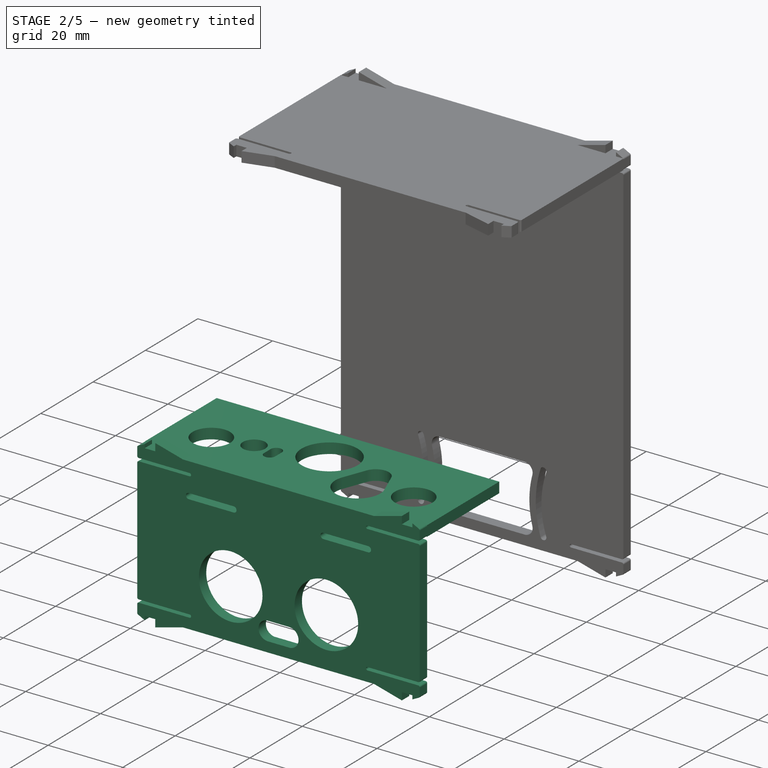
[diagram: stage 2 of 5 — iso view after this stage's code; geometry added in this stage tinted green]
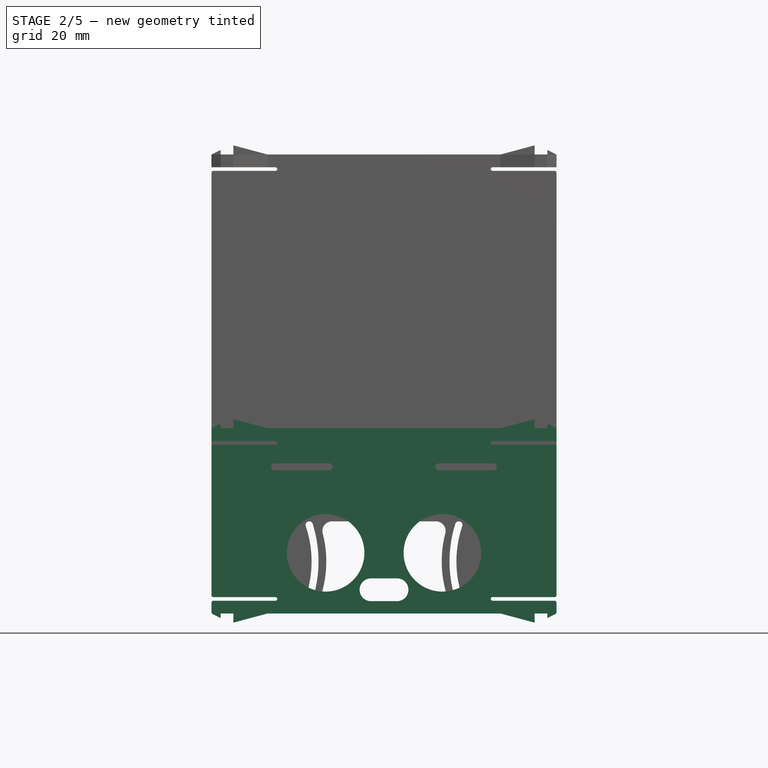
[diagram: stage 2 of 5 — front view after this stage's code; geometry added in this stage tinted green]
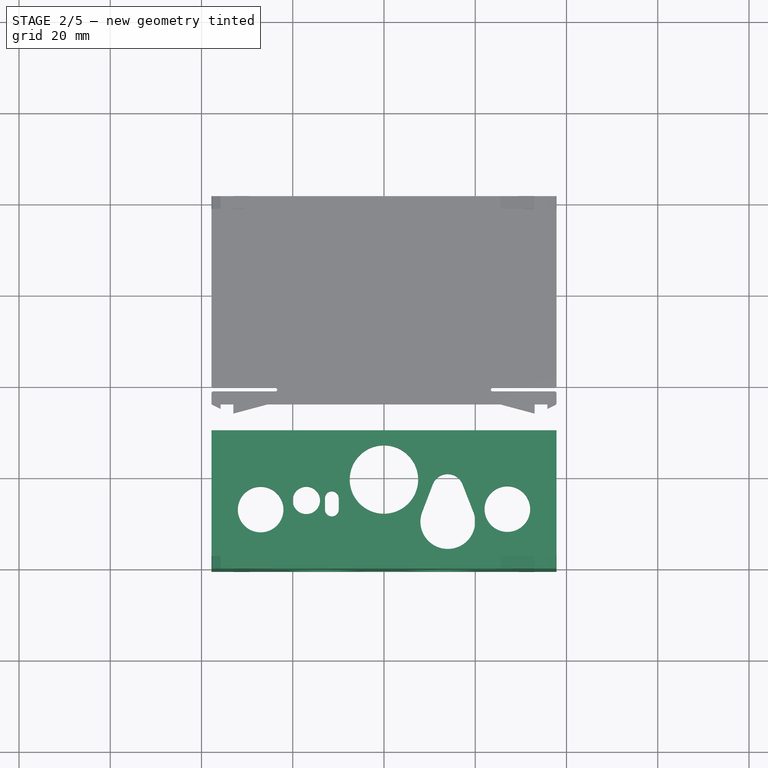
[diagram: stage 2 of 5 — top view after this stage's code; geometry added in this stage tinted green]
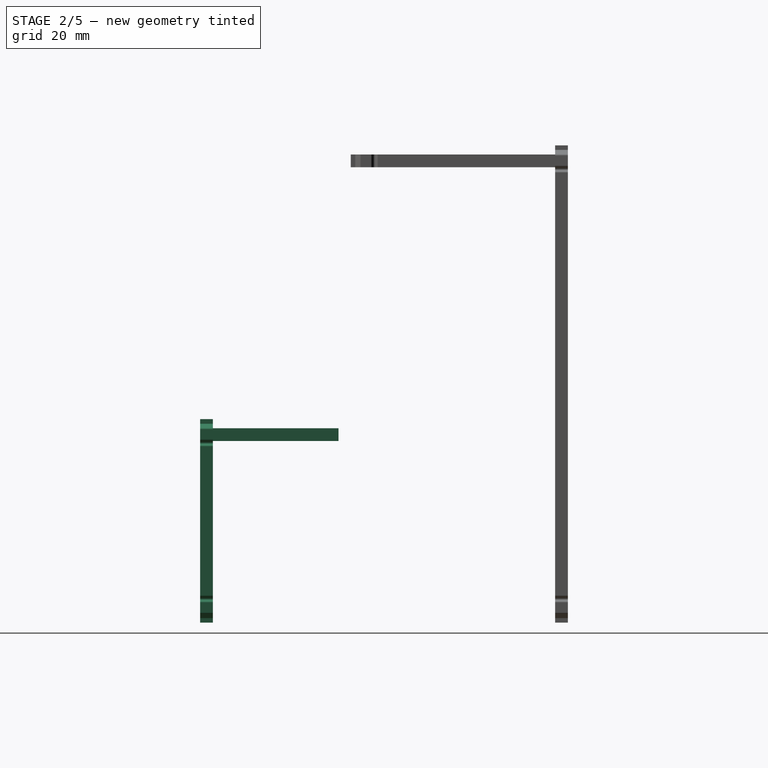
[diagram: stage 2 of 5 — right view after this stage's code; geometry added in this stage tinted green]
FEATURE [PartDesign::ShapeBinder] ShapeBinder008
  Support = -> [Body]
  TraceSupport = false
FEATURE [Sketcher::SketchObject] Sketch009
  ArcFitTolerance = 0
  ExternalGeometry = -> [ShapeBinder008]
  FullyConstrained = true
  MakeInternals = false
  MapMode = 5
  Placement = pos=(-1.33e-14,-60.5,6.7e-15) rot=(1,0,0;1.5708rad)
  expr: Constraints[107] = Spreadsheet.flex_tab_radius
  expr: Constraints[108] = Spreadsheet.flex_tab_length
  expr: Constraints[110] = Spreadsheet.Acrylic_thickness
  expr: Constraints[115] = Spreadsheet.tri_tab_small_height
  expr: Constraints[31] = Spreadsheet.tri_tab_big_height
  expr: Constraints[35] = Spreadsheet.tri_tab_big_angle
  expr: Constraints[3] = Spreadsheet.Acrylic_thickness
  expr: Constraints[40] = Spreadsheet.Acrylic_thickness + Spreadsheet.tri_tab_small_width
  expr: Constraints[43] = Spreadsheet.tri_tab_small_height
  expr: Constraints[44] = Spreadsheet.Acrylic_thickness
  expr: Constraints[49] = Spreadsheet.Acrylic_thickness
  expr: Constraints[50] = Spreadsheet.Acrylic_thickness + Spreadsheet.tri_tab_small_width
  expr: Constraints[56] = Spreadsheet.Acrylic_thickness
  expr: Constraints[57] = Spreadsheet.Acrylic_thickness + Spreadsheet.tri_tab_small_width
  expr: Constraints[5] = Spreadsheet.Acrylic_thickness
  expr: Constraints[64] = Spreadsheet.Acrylic_thickness + Spreadsheet.tri_tab_small_width
  expr: Constraints[65] = Spreadsheet.Acrylic_thickness
  expr: Constraints[72] = Spreadsheet.flex_tab_radius
  expr: Constraints[73] = Spreadsheet.flex_tab_length
  expr: Constraints[74] = Spreadsheet.Acrylic_thickness
  expr: Constraints[83] = Spreadsheet.flex_tab_radius
  expr: Constraints[84] = Spreadsheet.Acrylic_thickness
  expr: Constraints[85] = Spreadsheet.flex_tab_length
  expr: Constraints[94] = Spreadsheet.flex_tab_radius
  expr: Constraints[95] = Spreadsheet.flex_tab_length
  expr: Constraints[96] = Spreadsheet.Acrylic_thickness
  sketch-geometry (40):
    g0: LineSegment StartX=37.8 StartY=3.2 StartZ=0 EndX=37.8 EndY=0.4 EndZ=0
    g1: LineSegment StartX=-37.8 StartY=-37.4 StartZ=0 EndX=-37.8 EndY=-34.6 EndZ=0
    g2: LineSegment StartX=-35.8 StartY=3.2 StartZ=0 EndX=-33 EndY=3.2 EndZ=0
    g3: LineSegment StartX=-33 StartY=3.2 StartZ=0 EndX=-33 EndY=5.2 EndZ=0
    g4: LineSegment StartX=-33 StartY=5.2 StartZ=0 EndX=-25.5359 EndY=3.2 EndZ=0
    g5: LineSegment StartX=-25.5359 StartY=3.2 StartZ=0 EndX=25.5359 EndY=3.2 EndZ=0
    g6: LineSegment StartX=25.5359 StartY=3.2 StartZ=0 EndX=33 EndY=5.2 EndZ=0
    g7: LineSegment StartX=33 StartY=5.2 StartZ=0 EndX=33 EndY=3.2 EndZ=0
    g8: LineSegment StartX=33 StartY=3.2 StartZ=0 EndX=35.8 EndY=3.2 EndZ=0
    g9: LineSegment StartX=35.8 StartY=-37.4 StartZ=0 EndX=33 EndY=-37.4 EndZ=0
    g10: LineSegment StartX=33 StartY=-37.4 StartZ=0 EndX=33 EndY=-39.4 EndZ=0
    g11: LineSegment StartX=33 StartY=-39.4 StartZ=0 EndX=25.5359 EndY=-37.4 EndZ=0
    g12: LineSegment StartX=25.5359 StartY=-37.4 StartZ=0 EndX=-25.5359 EndY=-37.4 EndZ=0
    g13: LineSegment StartX=-25.5359 StartY=-37.4 StartZ=0 EndX=-33 EndY=-39.4 EndZ=0
    g14: LineSegment StartX=-33 StartY=-39.4 StartZ=0 EndX=-33 EndY=-37.4 EndZ=0
    g15: LineSegment StartX=-33 StartY=-37.4 StartZ=0 EndX=-35.8 EndY=-37.4 EndZ=0
    g16: LineSegment StartX=-37.8 StartY=3.2 StartZ=0 EndX=-35.8 EndY=4.2 EndZ=0
    g17: LineSegment StartX=-35.8 StartY=4.2 StartZ=0 EndX=-35.8 EndY=3.2 EndZ=0
    g18: LineSegment StartX=37.8 StartY=3.2 StartZ=0 EndX=35.8 EndY=4.2 EndZ=0
    g19: LineSegment StartX=-37.8 StartY=-37.4 StartZ=0 EndX=-35.8 EndY=-38.4 EndZ=0
    g20: LineSegment StartX=-35.8 StartY=-38.4 StartZ=0 EndX=-35.8 EndY=-37.4 EndZ=0
    g21: LineSegment StartX=37.8 StartY=-37.4 StartZ=0 EndX=35.8 EndY=-38.4 EndZ=0
    g22: LineSegment StartX=35.8 StartY=-38.4 StartZ=0 EndX=35.8 EndY=-37.4 EndZ=0
    g23: ArcOfCircle CenterX=-23.8 CenterY=-8.1e-15 CenterZ=0 NormalX=0 NormalY=0 NormalZ=1 AngleXU=0 Radius=0.4 StartAngle=4.71239 EndAngle=7.85398
    g24: LineSegment StartX=-23.8 StartY=0.4 StartZ=0 EndX=-37.8 EndY=0.4 EndZ=0
    g25: LineSegment StartX=-37.8 StartY=-0.4 StartZ=0 EndX=-23.8 EndY=-0.4 EndZ=0
    g26: LineSegment StartX=-37.8 StartY=0.4 StartZ=0 EndX=-37.8 EndY=3.2 EndZ=0
    g27: ArcOfCircle CenterX=23.8 CenterY=-6e-16 CenterZ=0 NormalX=0 NormalY=0 NormalZ=1 AngleXU=0 Radius=0.4 StartAngle=1.5708 EndAngle=4.71239
    g28: LineSegment StartX=37.8 StartY=0.4 StartZ=0 EndX=23.8 EndY=0.4 EndZ=0
    g29: LineSegment StartX=23.8 StartY=-0.4 StartZ=0 EndX=37.8 EndY=-0.4 EndZ=0
    g30: LineSegment StartX=37.8 StartY=-0.4 StartZ=0 EndX=37.8 EndY=-33.8 EndZ=0
    g31: ArcOfCircle CenterX=23.8 CenterY=-34.2 CenterZ=0 NormalX=0 NormalY=0 NormalZ=1 AngleXU=0 Radius=0.4 StartAngle=1.5708 EndAngle=4.71239
    g32: LineSegment StartX=37.8 StartY=-33.8 StartZ=0 EndX=23.8 EndY=-33.8 EndZ=0
    g33: LineSegment StartX=23.8 StartY=-34.6 StartZ=0 EndX=37.8 EndY=-34.6 EndZ=0
    g34: LineSegment StartX=37.8 StartY=-34.6 StartZ=0 EndX=37.8 EndY=-37.4 EndZ=0
    g35: ArcOfCircle CenterX=-23.8 CenterY=-34.2 CenterZ=0 NormalX=0 NormalY=0 NormalZ=1 AngleXU=0 Radius=0.4 StartAngle=4.71239 EndAngle=7.85398
    g36: LineSegment StartX=-37.8 StartY=-34.6 StartZ=0 EndX=-23.8 EndY=-34.6 EndZ=0
    g37: LineSegment StartX=-23.8 StartY=-33.8 StartZ=0 EndX=-37.8 EndY=-33.8 EndZ=0
    g38: LineSegment StartX=-37.8 StartY=-33.8 StartZ=0 EndX=-37.8 EndY=-0.4 EndZ=0
    g39: LineSegment StartX=35.8 StartY=3.2 StartZ=0 EndX=35.8 EndY=4.2 EndZ=0
  constraints (116):
    c: Vertical(g0)
    c: Vertical(g1)
    c: Horizontal(g26,g-3)
    c: DistanceX(g26,g-3) = 2.8
    c: Horizontal(g34,g-4)
    c: DistanceX(g-4,g34) = 2.8
    c: Horizontal(g0,g-3)
    c: Horizontal(g1,g-4)
    c: Coincident(g2,g3)
    c: Coincident(g3,g4)
    c: PointOnObject(g4,g-3)
    c: Coincident(g4,g5)
    c: PointOnObject(g5,g-3)
    c: Coincident(g5,g6)
    c: Coincident(g6,g7)
    c: Vertical(g7)
    c: Coincident(g7,g8)
    c: Coincident(g9,g10)
    c: Vertical(g10)
    c: Coincident(g10,g11)
    c: PointOnObject(g11,g-4)
    c: Coincident(g11,g12)
    c: PointOnObject(g12,g-4)
    c: Coincident(g12,g13)
    c: Coincident(g13,g14)
    c: Vertical(g14)
    c: Coincident(g14,g15)
    c: Equal(g14,g10)
    c: Equal(g10,g7)
    c: Equal(g7,g3)
    c: Vertical(g3)
    c: DistanceY(g7,g7) = 2
    c: Equal(g6,g4)
    c: Equal(g4,g13)
    c: Equal(g13,g11)
    c: Angle(g6,g7) = 1.309
    c: Horizontal(g15)
    c: Horizontal(g9)
    c: Horizontal(g8)
    c: Horizontal(g2)
    c: DistanceX(g26,g2) = 4.8
    c: Coincident(g16,g17)
    c: Vertical(g17)
    c: DistanceY(g17,g17) = 1
    c: DistanceX(g17,g2) = 2.8
    c: Coincident(g2,g17)
    c: Coincident(g26,g16)
    c: Horizontal(g2,g26)
    c: Coincident(g0,g18)
    c: DistanceX(g7,g8) = 2.8
    c: DistanceX(g7,g0) = 4.8
    c: Horizontal(g8,g0)
    c: Coincident(g1,g19)
    c: Coincident(g19,g20)
    c: Vertical(g20)
    c: Equal(g20,g17)
    c: DistanceX(g20,g14) = 2.8
    c: DistanceX(g1,g14) = 4.8
    c: Coincident(g34,g21)
    c: Coincident(g21,g22)
    c: Vertical(g22)
    c: Coincident(g9,g22)
    c: Equal(g22,g17)
    c: Horizontal(g9,g34)
    c: DistanceX(g9,g34) = 4.8
    c: DistanceX(g9,g9) = 2.8
    c: Coincident(g15,g20)
    c: Horizontal(g15,g1)
    c: Tangent(g23,g24) = -1.5708
    c: Tangent(g25,g23) = -1.5708
    c: Horizontal(g24)
    c: Horizontal(g25)
    c: Radius(g23) = 0.4
    c: DistanceX(g24,g24) = 14
    c: DistanceY(g24,g26) = 2.8
    c: Coincident(g38,g25)
    c: Coincident(g26,g24)
    c: Vertical(g26)
    c: Equal(g24,g25)
    c: Tangent(g28,g27) = -1.5708
    c: Tangent(g27,g29) = -1.5708
    c: Horizontal(g28)
    c: Horizontal(g29)
    c: Radius(g27) = 0.4
    c: DistanceY(g28,g0) = 2.8
    c: DistanceX(g28,g28) = 14
    c: Coincident(g0,g28)
    c: Coincident(g30,g29)
    c: Equal(g29,g28)
    c: Vertical(g30)
    c: Tangent(g32,g31) = -1.5708
    c: Tangent(g31,g33) = -1.5708
    c: Horizontal(g32)
    c: Horizontal(g33)
    c: Radius(g31) = 0.4
    c: DistanceX(g33,g33) = 14
    c: DistanceY(g21,g33) = 2.8
    c: Coincident(g30,g32)
    c: Coincident(g34,g33)
    c: Vertical(g34)
    c: Equal(g32,g33)
    c: Tangent(g36,g35) = -1.5708
    c: Tangent(g35,g37) = -1.5708
    c: Horizontal(g36)
    c: Coincident(g1,g36)
    c: Coincident(g38,g37)
    c: Horizontal(g37)
    c: Radius(g35) = 0.4
    c: DistanceX(g36,g36) = 14
    c: Equal(g37,g36)
    c: DistanceY(g1,g1) = 2.8
    c: Vertical(g38)
    c: Coincident(g39,g8)
    c: Coincident(g39,g18)
    c: Vertical(g39)
    c: Distance(g18,g8) = 1
FEATURE [PartDesign::Pad] Pad009
  Direction = (0,-1,2e-16)
  Length = 2.8
  Length2 = 10
  Placement = pos=(-1.33e-14,-60.5,6.7e-15) rot=(1,0,0;1.5708rad)
  Profile = -> Sketch009
  ReferenceAxis = -> Sketch009 [N_Axis]
  Reversed = true
  Suppressed = false
  Type = 0
  expr: Length = Spreadsheet.Acrylic_thickness
FEATURE [PartDesign::Fillet] Fillet004
  Base = -> Pad009 [Edge71,Edge62,Edge59,Edge44,Edge41,Edge26,Edge23,Edge14,Edge11,Edge2,Edge1,Edge104,Edge101,Edge86,Edge83,Edge74]
  BaseFeature = -> Pad009
  Placement = pos=(-1.33e-14,-60.5,6.7e-15) rot=(1,0,0;1.5708rad)
  Radius = 0.4
  Refine = true
  SupportTransform = false
  Suppressed = false
  UseAllEdges = false
FEATURE [PartDesign::SubShapeBinder] Binder037
  BindCopyOnChange = 0
  BindMode = 0
  ClaimChildren = false
  Context = -> Body006 [Binder037.]
  Fuse = false
  MakeFace = true
  OffsetFill = false
  OffsetIntersection = false
  OffsetJoinType = 0
  OffsetOpenResult = false
  PartialLoad = false
  Refine = true
  Relative = true
  Support = -> [TheThing_addon_002]
  _Version = 2
FEATURE [Sketcher::SketchObject] Sketch006
  ArcFitTolerance = 0
  ExternalGeometry = -> [ShapeBinder005,Binder037]
  FullyConstrained = true
  MakeInternals = false
  MapMode = 5
  Placement = pos=(0,1e-16,0.4) rot=(0,0,1;3.14159rad)
  expr: Constraints[10] = Spreadsheet.Acrylic_thickness
  expr: Constraints[18] = Spreadsheet.Acrylic_thickness
  expr: Constraints[19] = Spreadsheet.Acrylic_thickness
  sketch-geometry (19):
    g0: LineSegment [constr] StartX=-35 StartY=29.1408 StartZ=0 EndX=-37.8 EndY=29.1408 EndZ=0
    g1: LineSegment StartX=37.8 StartY=57.7 StartZ=0 EndX=-37.8 EndY=57.7 EndZ=0
    g2: LineSegment StartX=-37.8 StartY=57.7 StartZ=0 EndX=-37.8 EndY=30.1599 EndZ=0
    g3: LineSegment StartX=-37.8 StartY=30.1599 StartZ=0 EndX=37.8 EndY=30.1599 EndZ=0
    g4: LineSegment StartX=37.8 StartY=30.1599 StartZ=0 EndX=37.8 EndY=57.7 EndZ=0
    g5: LineSegment [constr] StartX=-37.8 StartY=29.1408 StartZ=0 EndX=-35 EndY=30.1599 EndZ=0
    g6: LineSegment [constr] StartX=-35 StartY=29.1408 StartZ=0 EndX=-35 EndY=30.1599 EndZ=0
    g7: Circle CenterX=-27.04 CenterY=47.45 CenterZ=0 NormalX=0 NormalY=0 NormalZ=1 AngleXU=0 Radius=5
    g8: Circle CenterX=27.04 CenterY=47.55 CenterZ=0 NormalX=0 NormalY=0 NormalZ=1 AngleXU=0 Radius=5
    g9: Circle CenterX=0.01499 CenterY=40.966 CenterZ=0 NormalX=0 NormalY=0 NormalZ=1 AngleXU=0 Radius=7.5
    g10: ArcOfCircle CenterX=11.43 CenterY=47.55 CenterZ=0 NormalX=0 NormalY=0 NormalZ=1 AngleXU=0 Radius=1.5 StartAngle=-1.8e-15 EndAngle=3.14159
    g11: ArcOfCircle CenterX=11.43 CenterY=45.05 CenterZ=0 NormalX=0 NormalY=0 NormalZ=1 AngleXU=0 Radius=1.5 StartAngle=3.14159 EndAngle=6.28319
    g12: LineSegment StartX=12.93 StartY=47.55 StartZ=0 EndX=12.93 EndY=45.05 EndZ=0
    g13: LineSegment StartX=9.93 StartY=47.55 StartZ=0 EndX=9.93 EndY=45.05 EndZ=0
    g14: Circle CenterX=17.018 CenterY=45.538 CenterZ=0 NormalX=0 NormalY=0 NormalZ=1 AngleXU=0 Radius=3
    g15: LineSegment StartX=-19.5646 StartY=47.9903 StartZ=0 EndX=-17.2077 EndY=41.9903 EndZ=0
    g16: ArcOfCircle CenterX=-13.95 CenterY=43.27 CenterZ=0 NormalX=0 NormalY=0 NormalZ=1 AngleXU=0 Radius=3.5 StartAngle=3.5159 EndAngle=5.91756
    g17: LineSegment StartX=-10.6813 StartY=42.0186 StartZ=0 EndX=-8.3766 EndY=48.0388 EndZ=0
    g18: ArcOfCircle CenterX=-13.98 CenterY=50.184 CenterZ=0 NormalX=0 NormalY=0 NormalZ=1 AngleXU=0 Radius=6 StartAngle=5.91756 EndAngle=9.79908
  constraints (44):
    c: Horizontal(g0)
    c: Coincident(g1,g2)
    c: Coincident(g2,g3)
    c: Coincident(g3,g4)
    c: Coincident(g4,g1)
    c: Horizontal(g1)
    c: Horizontal(g3)
    c: Vertical(g2)
    c: Vertical(g4)
    c: Vertical(g2,g0)
    c: DistanceY(g1,g-3) = 2.8
    c: Coincident(g0,g-4)
    c: Coincident(g5,g0)
    c: Coincident(g6,g0)
    c: Coincident(g6,g5)
    c: Vertical(g6)
    c: Angle(g0,g5) = 0.349066
    c: PointOnObject(g5,g3)
    c: DistanceX(g0,g0) = 2.8
    c: DistanceX(g-3,g1) = 2.8
    c: Equal(g7,g8)
    c: Diameter(g8) = 10
    c: Diameter(g9) = 15
    c: Tangent(g10,g12) = 1.5708
    c: Tangent(g10,g13) = -1.5708
    c: Tangent(g11,g12) = 1.5708
    c: Tangent(g11,g13) = -1.5708
    c: Equal(g10,g11)
    c: Radius(g11) = 1.5
    c: Diameter(g14) = 6
    c: Tangent(g15,g16) = -1.5708
    c: Tangent(g16,g17) = -1.5708
    c: Tangent(g17,g18) = -1.5708
    c: Tangent(g18,g15) = -1.5708
    c: Radius(g18) = 6
    c: Radius(g16) = 3.5
    c: Coincident(g7,g-5)
    c: Coincident(g18,g-6)
    c: Coincident(g-7,g16)
    c: Coincident(g9,g-8)
    c: Coincident(g11,g-10)
    c: Coincident(g10,g-9)
    c: Coincident(g14,g-11)
    c: Coincident(g8,g-12)
FEATURE [PartDesign::Body] Body006  label="Body_keys"
  AllowCompound = false
  Group = -> [ShapeBinder005,Sketch006,Binder037]
  Origin = -> Origin032
FEATURE [PartDesign::Pad] Pad018
  Direction = (0,0,1)
  Length = 2.8
  Length2 = 10
  Placement = pos=(0,1e-16,0.4) rot=(0,0,1;3.14159rad)
  Profile = -> Sketch006
  ReferenceAxis = -> Sketch006 [N_Axis]
  Refine = true
  Suppressed = false
  Type = 0
  expr: Length = Spreadsheet.Acrylic_thickness
FEATURE [PartDesign::SubShapeBinder] Binder
  BindCopyOnChange = 0
  BindMode = 0
  ClaimChildren = false
  Context = -> Body009 [Binder.]
  Fuse = false
  MakeFace = true
  OffsetFill = false
  OffsetIntersection = false
  OffsetJoinType = 0
  OffsetOpenResult = false
  PartialLoad = false
  Refine = true
  Relative = true
  Support = -> [TheThing_addon_002]
  _Version = 2
FEATURE [Sketcher::SketchObject] Sketch025
  ArcFitTolerance = 1e-06
  ExternalGeometry = -> [Binder]
  FullyConstrained = true
  MakeInternals = false
  MapMode = 5
  Placement = pos=(0,-60.5,0) rot=(1,0,0;1.5708rad)
  sketch-geometry (8):
    g0: ArcOfCircle CenterX=-24 CenterY=-5.245 CenterZ=0 NormalX=0 NormalY=0 NormalZ=1 AngleXU=0 Radius=0.755 StartAngle=1.5708 EndAngle=4.71239
    g1: ArcOfCircle CenterX=-12 CenterY=-5.245 CenterZ=0 NormalX=0 NormalY=0 NormalZ=1 AngleXU=0 Radius=0.755 StartAngle=4.71239 EndAngle=7.85398
    g2: LineSegment StartX=-24 StartY=-4.49 StartZ=0 EndX=-12 EndY=-4.49 EndZ=0
    g3: LineSegment StartX=-24 StartY=-6 StartZ=0 EndX=-12 EndY=-6 EndZ=0
    g4: ArcOfCircle CenterX=12 CenterY=-5.245 CenterZ=0 NormalX=0 NormalY=0 NormalZ=1 AngleXU=0 Radius=0.755 StartAngle=1.5708 EndAngle=4.71239
    g5: ArcOfCircle CenterX=24 CenterY=-5.245 CenterZ=0 NormalX=0 NormalY=0 NormalZ=1 AngleXU=0 Radius=0.755 StartAngle=4.71239 EndAngle=7.85398
    g6: LineSegment StartX=12 StartY=-4.49 StartZ=0 EndX=24 EndY=-4.49 EndZ=0
    g7: LineSegment StartX=12 StartY=-6 StartZ=0 EndX=24 EndY=-6 EndZ=0
  constraints (17):
    c: Tangent(g0,g3) = -1.5708
    c: Tangent(g1,g3) = -1.5708
    c: Equal(g0,g1)
    c: Horizontal(g3)
    c: Tangent(g4,g6) = 1.5708
    c: Tangent(g4,g7) = -1.5708
    c: Tangent(g5,g6) = 1.5708
    c: Equal(g4,g5)
    c: Coincident(g1,g2)
    c: Coincident(g5,g-6)
    c: Coincident(g5,g7)
    c: Coincident(g5,g-6)
    c: Coincident(g4,g-5)
    c: Coincident(g1,g-4)
    c: Coincident(g1,g-4)
    c: Coincident(g0,g2)
    c: Coincident(g0,g-3)
FEATURE [PartDesign::Pocket] Pocket014
  BaseFeature = -> Fillet004
  Direction = (0,1,-2e-16)
  Length = 5
  Length2 = 5
  Placement = pos=(-1.33e-14,-60.5,6.7e-15) rot=(1,0,0;1.5708rad)
  Profile = -> Sketch025
  ReferenceAxis = -> Sketch025 [N_Axis]
  Refine = true
  Suppressed = false
  Type = 1
FEATURE [PartDesign::Body] Body009  label="Body_front"
  AllowCompound = false
  Group = -> [ShapeBinder008,Sketch009,Pad009,Fillet004,Sketch025,Pocket014,Binder015,Sketch028,Binder]
  Origin = -> Origin035
  Tip = -> Pocket014
FEATURE [PartDesign::Pocket] Pocket017
  BaseFeature = -> Pocket014
  Direction = (0,1,-2e-16)
  Length = 5
  Length2 = 5
  Placement = pos=(-1.33e-14,-60.5,6.7e-15) rot=(1,0,0;1.5708rad)
  Profile = -> Sketch028
  ReferenceAxis = -> Sketch028 [N_Axis]
  Refine = true
  Suppressed = false
  Type = 1
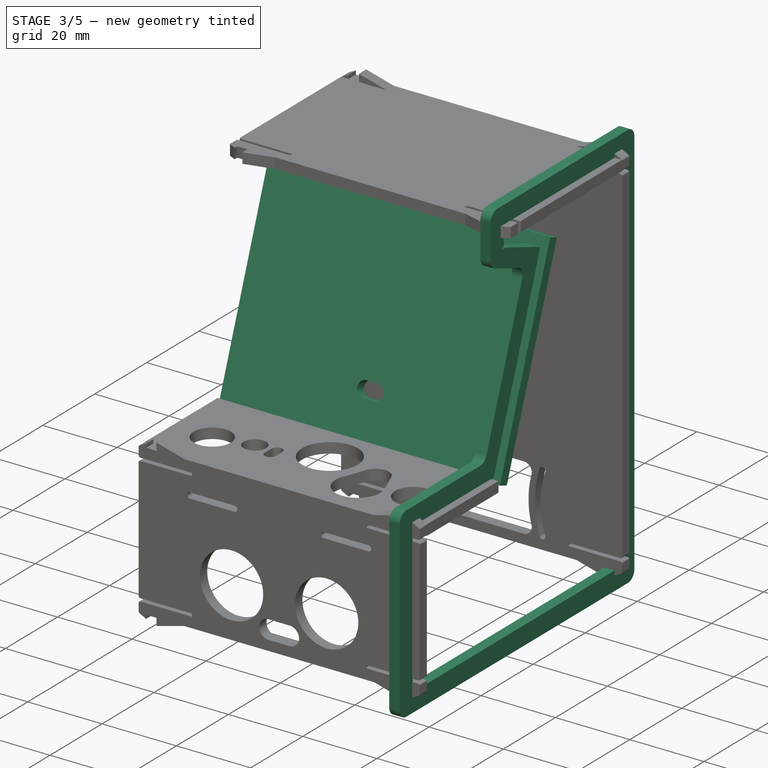
[diagram: stage 3 of 5 — iso view after this stage's code; geometry added in this stage tinted green]
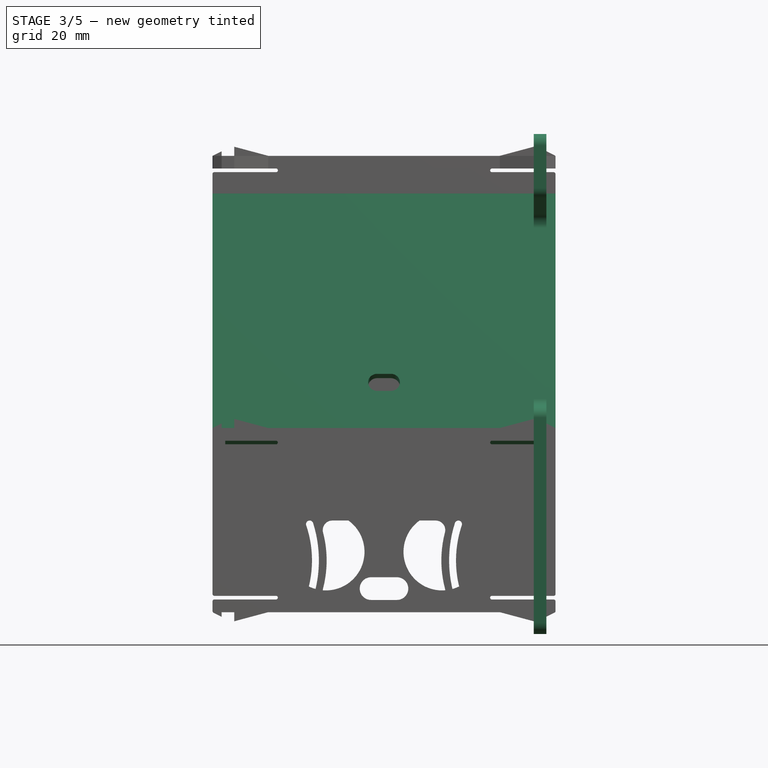
[diagram: stage 3 of 5 — front view after this stage's code; geometry added in this stage tinted green]
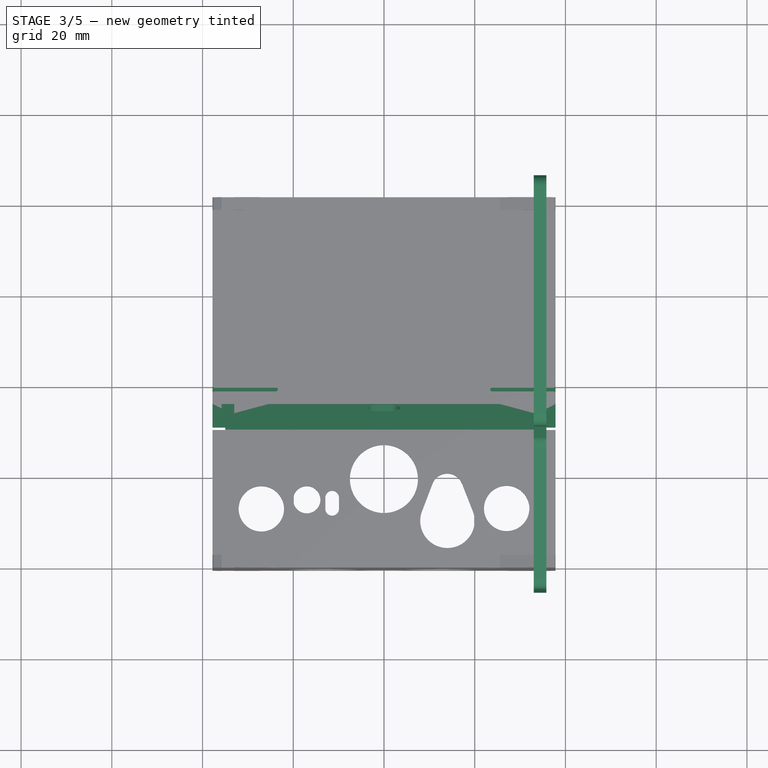
[diagram: stage 3 of 5 — top view after this stage's code; geometry added in this stage tinted green]
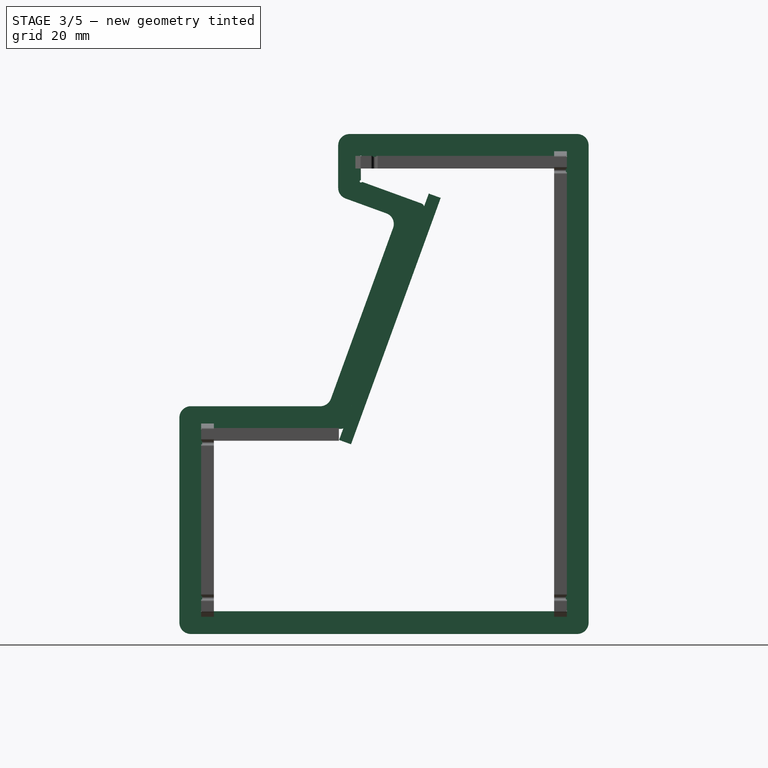
[diagram: stage 3 of 5 — right view after this stage's code; geometry added in this stage tinted green]
FEATURE [PartDesign::SubShapeBinder] Binder010
  BindCopyOnChange = 0
  BindMode = 0
  ClaimChildren = false
  Context = -> Body012 [Binder010.]
  Fuse = false
  MakeFace = true
  OffsetFill = false
  OffsetIntersection = false
  OffsetJoinType = 0
  OffsetOpenResult = false
  PartialLoad = false
  Relative = true
  Support = -> [Body]
  _Version = 2
FEATURE [Sketcher::SketchObject] Sketch015
  ArcFitTolerance = 0
  FullyConstrained = true
  MakeInternals = false
  MapMode = 5
  Placement = pos=(35.8,0,0) rot=(0.57735,0.57735,0.57735;2.0944rad)
  expr: Constraints[13] = Spreadsheet.corner_relief_hole
  sketch-geometry (29):
    g0: LineSegment [constr] StartX=-25.3 StartY=60.2802 StartZ=0 EndX=-20.3 EndY=60.2802 EndZ=0
    g1: LineSegment [constr] StartX=-2.7 StartY=63 StartZ=0 EndX=-2.7 EndY=58 EndZ=0
    g2: LineSegment [constr] StartX=19.9 StartY=12.9 StartZ=0 EndX=14.9 EndY=12.9 EndZ=0
    g3: LineSegment [constr] StartX=-20.2 StartY=-37.2 StartZ=0 EndX=-20.2 EndY=-32.2 EndZ=0
    g4: LineSegment [constr] StartX=-60.3 StartY=-17.1 StartZ=0 EndX=-55.3 EndY=-17.1 EndZ=0
    g5: ArcOfCircle CenterX=-25.3 CenterY=57.5603 CenterZ=0 NormalX=0 NormalY=0 NormalZ=1 AngleXU=0 Radius=0.25 StartAngle=2.0944 EndAngle=5.41052
    g6: ArcOfCircle CenterX=-25.55 CenterY=57.9934 CenterZ=0 NormalX=0 NormalY=0 NormalZ=1 AngleXU=0 Radius=0.25 StartAngle=5.23599 EndAngle=6.28319
    g7: ArcOfCircle CenterX=-24.9786 CenterY=57.1773 CenterZ=0 NormalX=0 NormalY=0 NormalZ=1 AngleXU=0 Radius=0.25 StartAngle=1.22173 EndAngle=2.26893
    g8: LineSegment StartX=-25.3 StartY=57.9934 StartZ=0 EndX=-24.8931 EndY=57.4122 EndZ=0
    g9: ArcOfCircle CenterX=-25.3 CenterY=63 CenterZ=0 NormalX=0 NormalY=0 NormalZ=1 AngleXU=0 Radius=0.25 StartAngle=0.523599 EndAngle=4.18879
    g10: ArcOfCircle CenterX=-25.55 CenterY=62.567 CenterZ=0 NormalX=0 NormalY=0 NormalZ=1 AngleXU=0 Radius=0.25 StartAngle=-8.9e-15 EndAngle=1.0472
    g11: ArcOfCircle CenterX=-24.867 CenterY=63.25 CenterZ=0 NormalX=0 NormalY=0 NormalZ=1 AngleXU=0 Radius=0.25 StartAngle=3.66519 EndAngle=4.71239
    g12: LineSegment StartX=-25.3 StartY=62.567 StartZ=0 EndX=-24.867 EndY=63 EndZ=0
    g13: ArcOfCircle CenterX=19.9 CenterY=63 CenterZ=0 NormalX=0 NormalY=0 NormalZ=1 AngleXU=0 Radius=0.25 StartAngle=5.23599 EndAngle=8.90118
    g14: ArcOfCircle CenterX=20.15 CenterY=62.567 CenterZ=0 NormalX=0 NormalY=0 NormalZ=1 AngleXU=0 Radius=0.25 StartAngle=2.0944 EndAngle=3.14159
    g15: ArcOfCircle CenterX=19.467 CenterY=63.25 CenterZ=0 NormalX=0 NormalY=0 NormalZ=1 AngleXU=0 Radius=0.25 StartAngle=4.71239 EndAngle=5.75959
    g16: LineSegment StartX=19.9 StartY=62.567 StartZ=0 EndX=19.467 EndY=63 EndZ=0
    g17: ArcOfCircle CenterX=19.9 CenterY=-37.2 CenterZ=0 NormalX=0 NormalY=0 NormalZ=1 AngleXU=0 Radius=0.25 StartAngle=3.66519 EndAngle=7.33038
    g18: ArcOfCircle CenterX=20.15 CenterY=-36.767 CenterZ=0 NormalX=0 NormalY=0 NormalZ=1 AngleXU=0 Radius=0.25 StartAngle=3.14159 EndAngle=4.18879
    g19: ArcOfCircle CenterX=19.467 CenterY=-37.45 CenterZ=0 NormalX=0 NormalY=0 NormalZ=1 AngleXU=0 Radius=0.25 StartAngle=0.523599 EndAngle=1.5708
    g20: LineSegment StartX=19.9 StartY=-36.767 StartZ=0 EndX=19.467 EndY=-37.2 EndZ=0
    g21: ArcOfCircle CenterX=-60.3 CenterY=-37.2 CenterZ=0 NormalX=0 NormalY=0 NormalZ=1 AngleXU=0 Radius=0.25 StartAngle=2.0944 EndAngle=5.75959
    g22: ArcOfCircle CenterX=-60.55 CenterY=-36.767 CenterZ=0 NormalX=0 NormalY=0 NormalZ=1 AngleXU=0 Radius=0.25 StartAngle=5.23599 EndAngle=6.28319
    g23: ArcOfCircle CenterX=-59.867 CenterY=-37.45 CenterZ=0 NormalX=0 NormalY=0 NormalZ=1 AngleXU=0 Radius=0.25 StartAngle=1.5708 EndAngle=2.61799
    g24: LineSegment StartX=-60.3 StartY=-36.767 StartZ=0 EndX=-59.867 EndY=-37.2 EndZ=0
    g25: ArcOfCircle CenterX=-60.3 CenterY=3 CenterZ=0 NormalX=0 NormalY=0 NormalZ=1 AngleXU=0 Radius=0.25 StartAngle=0.523599 EndAngle=4.18879
    g26: ArcOfCircle CenterX=-60.55 CenterY=2.56699 CenterZ=0 NormalX=0 NormalY=0 NormalZ=1 AngleXU=0 Radius=0.25 StartAngle=7e-16 EndAngle=1.0472
    g27: ArcOfCircle CenterX=-59.867 CenterY=3.25 CenterZ=0 NormalX=0 NormalY=0 NormalZ=1 AngleXU=0 Radius=0.25 StartAngle=3.66519 EndAngle=4.71239
    g28: LineSegment StartX=-60.3 StartY=2.56699 StartZ=0 EndX=-59.867 EndY=3 EndZ=0
  constraints (75):
    c: Horizontal(g0)
    c: Vertical(g1)
    c: Horizontal(g2)
    c: Horizontal(g4)
    c: Vertical(g3)
    c: Equal(g4,g3)
    c: Equal(g3,g2)
    c: Equal(g2,g1)
    c: Equal(g1,g0)
    c: DistanceX(g0,g0) = 5
    c: Coincident(g5,g-3)
    c: Equal(g7,g5)
    c: Equal(g7,g6)
    c: Diameter(g7) = 0.5
    c: Tangent(g6,g-3) = -1.5708
    c: Tangent(g7,g-8) = -1.5708
    c: Tangent(g5,g6) = 1.5708
    c: Tangent(g5,g7) = 1.5708
    c: Coincident(g8,g6)
    c: Coincident(g8,g7)
    c: Symmetric(g5,g-4,g0)
    c: Symmetric(g-4,g-5,g1)
    c: Symmetric(g-5,g-6,g2)
    c: Symmetric(g-6,g-7,g3)
    c: Symmetric(g-7,g-7,g4)
    c: Equal(g11,g9)
    c: Equal(g11,g10)
    c: Diameter(g11) = 0.5
    c: Tangent(g9,g10) = 1.5708
    c: Tangent(g9,g11) = 1.5708
    c: Coincident(g12,g10)
    c: Coincident(g12,g11)
    c: Coincident(g9,g-4)
    c: Tangent(g10,g-3) = -1.5708
    c: Tangent(g11,g-4) = -1.5708
    c: Equal(g15,g13)
    c: Equal(g15,g14)
    c: Diameter(g15) = 0.5
    c: Tangent(g13,g14) = 1.5708
    c: Tangent(g13,g15) = 1.5708
    c: Coincident(g16,g14)
    c: Coincident(g16,g15)
    c: Coincident(g13,g-5)
    c: Tangent(g15,g-4) = -1.5708
    c: Tangent(g14,g-5) = -1.5708
    c: Equal(g19,g17)
    c: Equal(g19,g18)
    c: Diameter(g19) = 0.5
    c: Tangent(g17,g18) = 1.5708
    c: Tangent(g17,g19) = 1.5708
    c: Coincident(g20,g18)
    c: Coincident(g20,g19)
    c: Coincident(g17,g-6)
    c: Tangent(g18,g-5) = -1.5708
    c: Tangent(g19,g-6) = -1.5708
    c: Equal(g23,g21)
    c: Equal(g23,g22)
    c: Diameter(g23) = 0.5
    c: Tangent(g21,g22) = 1.5708
    c: Tangent(g21,g23) = 1.5708
    c: Coincident(g24,g22)
    c: Coincident(g24,g23)
    c: Coincident(g21,g-7)
    c: Tangent(g23,g-6) = -1.5708
    c: Tangent(g22,g-7) = -1.5708
    c: Equal(g27,g25)
    c: Equal(g27,g26)
    c: Diameter(g27) = 0.5
    c: Tangent(g25,g26) = 1.5708
    c: Tangent(g25,g27) = 1.5708
    c: Coincident(g28,g26)
    c: Coincident(g28,g27)
    c: Coincident(g25,g-7)
    c: Tangent(g27,g-9) = -1.5708
    c: Tangent(g26,g-7) = -1.5708
FEATURE [Part::Feature] Part__Feature951  label="_68005_cp005_cp"
  shape: bbox 13.59 x 26.29 x 1.575 mm, 25 faces (baked)
FEATURE [Part::Feature] Part__Feature954  label="_68005_cp005_cp003"
  shape: bbox 7.925 x 7.925 x 3.557 mm, 30 faces (baked)
FEATURE [Part::Feature] Part__Feature955  label="_68005_cp005_cp004"
  shape: bbox 9.35 x 9.35 x 4.186 mm, 132 faces (baked)
FEATURE [App::Part] _68005_cp005_cp  label="9V_conn"
  Group = -> [Part__Feature951,Part__Feature954,Part__Feature955]
  Origin = -> Origin041
  Placement = pos=(-5.1e-15,-27,-26) rot=(-0.57735,0.57735,-0.57735;4.18879rad)
FEATURE [Part::Feature] Part__Feature978  label="hc-sr04"
  Placement = pos=(-6.6e-15,-54.3,-24.1) rot=(0,0,1;3.14159rad)
  shape: bbox 45.2 x 18.55 x 25.81 mm, 1464 faces (baked)
FEATURE [PartDesign::SubShapeBinder] Binder015
  BindCopyOnChange = 0
  BindMode = 0
  ClaimChildren = false
  Context = -> Body009 [Binder015.]
  Fuse = false
  MakeFace = true
  OffsetFill = false
  OffsetIntersection = false
  OffsetJoinType = 0
  OffsetOpenResult = false
  PartialLoad = false
  Refine = true
  Relative = true
  Support = -> [Part__Feature978]
  _Version = 2
FEATURE [Sketcher::SketchObject] Sketch028
  ArcFitTolerance = 1e-06
  ExternalGeometry = -> [Binder015]
  FullyConstrained = true
  MakeInternals = false
  MapMode = 5
  Placement = pos=(0,-60.5,0) rot=(1,0,0;1.5708rad)
  sketch-geometry (6):
    g0: Circle CenterX=-12.8 CenterY=-24.1 CenterZ=0 NormalX=0 NormalY=0 NormalZ=1 AngleXU=0 Radius=8.5
    g1: Circle CenterX=12.8 CenterY=-24.1 CenterZ=0 NormalX=0 NormalY=0 NormalZ=1 AngleXU=0 Radius=8.5
    g2: ArcOfCircle CenterX=-2.85 CenterY=-32.2 CenterZ=0 NormalX=0 NormalY=0 NormalZ=1 AngleXU=0 Radius=2.5 StartAngle=1.5708 EndAngle=4.71239
    g3: ArcOfCircle CenterX=2.85 CenterY=-32.2 CenterZ=0 NormalX=0 NormalY=0 NormalZ=1 AngleXU=0 Radius=2.5 StartAngle=4.71239 EndAngle=7.85398
    g4: LineSegment StartX=-2.85 StartY=-29.7 StartZ=0 EndX=2.85 EndY=-29.7 EndZ=0
    g5: LineSegment StartX=-2.85 StartY=-34.7 StartZ=0 EndX=2.85 EndY=-34.7 EndZ=0
  constraints (12):
    c: Diameter(g0) = 17
    c: Coincident(g0,g-3)
    c: Coincident(g1,g-4)
    c: Equal(g1,g0)
    c: Tangent(g2,g4) = 1.5708
    c: Tangent(g2,g5) = -1.5708
    c: Tangent(g3,g4) = 1.5708
    c: Tangent(g3,g5) = -1.5708
    c: Equal(g2,g3)
    c: Radius(g2) = 2.5
    c: Coincident(g2,g-5)
    c: Coincident(g3,g-6)
FEATURE [PartDesign::SubShapeBinder] Binder020
  BindCopyOnChange = 0
  BindMode = 0
  ClaimChildren = false
  Context = -> Body [Binder020.]
  Fuse = false
  MakeFace = true
  OffsetFill = false
  OffsetIntersection = false
  OffsetJoinType = 0
  OffsetOpenResult = false
  PartialLoad = false
  Refine = true
  Relative = true
  Support = -> [Part__Feature978]
  _Version = 2
FEATURE [Part::Feature] Part__Feature2924  label="User Library-9V Duracell Battery006"
  shape: bbox 25.33 x 0.8457 x 15.74 mm, 1 faces, 0 solids (baked)
FEATURE [Part::Feature] Part__Feature2925  label="User Library-9V Duracell Battery007"
  shape: bbox 24.78 x 2e-07 x 15.38 mm, 1 faces, 0 solids (baked)
FEATURE [Part::Feature] Part__Feature2926  label="User Library-9V Duracell Battery008"
  shape: bbox 26 x 42.82 x 16.6 mm, 188 faces, 0 solids (baked)
FEATURE [Part::Feature] Part__Feature2927  label="User Library-9V Duracell Battery009"
  shape: bbox 8.776 x 3 x 7.6 mm, 28 faces, 0 solids (baked)
FEATURE [Part::Feature] Part__Feature2928  label="User Library-9V Duracell Battery010"
  shape: bbox 6.35 x 1.5 x 6.35 mm, 2 faces, 0 solids (baked)
FEATURE [Part::Feature] Part__Feature2929  label="User Library-9V Duracell Battery011"
  shape: bbox 8 x 3.2 x 8 mm, 10 faces, 0 solids (baked)
FEATURE [App::Part] User_Library_9V_Duracell_Battery001  label="9V Duracell Battery012"
  Group = -> [Part__Feature2924,Part__Feature2925,Part__Feature2926,Part__Feature2927,Part__Feature2928,Part__Feature2929]
  Origin = -> Origin108
  Placement = pos=(1e-16,3.6,-26) rot=(-1,0,0;3.14159rad)
FEATURE [PartDesign::SubShapeBinder] Binder021
  BindCopyOnChange = 0
  BindMode = 0
  ClaimChildren = false
  Context = -> Body001 [Binder021.]
  Fuse = false
  MakeFace = true
  OffsetFill = false
  OffsetIntersection = false
  OffsetJoinType = 0
  OffsetOpenResult = false
  PartialLoad = false
  Refine = true
  Relative = true
  Support = -> [Body[Sketch.]]
  _Version = 2
FEATURE [PartDesign::SubShapeBinder] Binder024
  BindCopyOnChange = 0
  BindMode = 0
  ClaimChildren = false
  Context = -> Body002 [Binder024.]
  Fuse = false
  MakeFace = true
  OffsetFill = false
  OffsetIntersection = false
  OffsetJoinType = 0
  OffsetOpenResult = false
  PartialLoad = false
  Refine = true
  Relative = true
  Support = -> [Body001[Sketch001.]]
  _Version = 2
FEATURE [PartDesign::Body] Body002  label="Body_left"
  AllowCompound = false
  Group = -> [Sketch002,Binder024]
  Origin = -> Origin028
FEATURE [PartDesign::SubShapeBinder] Binder026
  BindCopyOnChange = 0
  BindMode = 0
  ClaimChildren = false
  Context = -> Body008 [Binder026.]
  Fuse = false
  MakeFace = true
  OffsetFill = false
  OffsetIntersection = false
  OffsetJoinType = 0
  OffsetOpenResult = false
  PartialLoad = false
  Refine = true
  Relative = true
  Support = -> [User_Library_9V_Duracell_Battery001]
  _Version = 2
FEATURE [Sketcher::SketchObject] Sketch029
  ArcFitTolerance = 1e-06
  ExternalGeometry = -> [Binder026]
  FullyConstrained = true
  MakeInternals = false
  MapMode = 5
  Placement = pos=(0,20.1,0) rot=(0,0.707107,0.707107;3.14159rad)
  sketch-geometry (19):
    g0: LineSegment StartX=-11.39 StartY=-34.8 StartZ=0 EndX=11.39 EndY=-34.8 EndZ=0
    g1: LineSegment StartX=11.39 StartY=-17.2 StartZ=0 EndX=-11.39 EndY=-17.2 EndZ=0
    g2: ArcOfCircle CenterX=-11.39 CenterY=-19.31 CenterZ=0 NormalX=0 NormalY=0 NormalZ=1 AngleXU=0 Radius=2.11 StartAngle=1.5708 EndAngle=3.39711
    g3: ArcOfCircle CenterX=-11.39 CenterY=-32.69 CenterZ=0 NormalX=0 NormalY=0 NormalZ=1 AngleXU=0 Radius=2.11 StartAngle=2.88608 EndAngle=4.71239
    g4: ArcOfCircle CenterX=11.39 CenterY=-32.69 CenterZ=0 NormalX=0 NormalY=0 NormalZ=1 AngleXU=0 Radius=2.11 StartAngle=4.71239 EndAngle=6.5387
    g5: ArcOfCircle CenterX=11.39 CenterY=-19.31 CenterZ=0 NormalX=0 NormalY=0 NormalZ=1 AngleXU=0 Radius=2.11 StartAngle=6.02767 EndAngle=7.85398
    g6: ArcOfCircle CenterX=-16.39 CenterY=-18 CenterZ=0 NormalX=0 NormalY=0 NormalZ=1 AngleXU=0 Radius=0.8 StartAngle=0.307283 EndAngle=3.46829
    g7: ArcOfCircle CenterX=16.39 CenterY=-18 CenterZ=0 NormalX=0 NormalY=0 NormalZ=1 AngleXU=0 Radius=0.8 StartAngle=5.95649 EndAngle=9.11749
    g8: ArcOfCircle CenterX=16.39 CenterY=-34 CenterZ=0 NormalX=0 NormalY=0 NormalZ=1 AngleXU=0 Radius=0.8 StartAngle=3.44888 EndAngle=6.60988
    g9: LineSegment [constr] StartX=-11.39 StartY=-34.8 StartZ=0 EndX=-16.39 EndY=-34.8 EndZ=0
    g10: LineSegment [constr] StartX=-11.39 StartY=-17.2 StartZ=0 EndX=-16.39 EndY=-17.2 EndZ=0
    g11: LineSegment [constr] StartX=0 StartY=-26 StartZ=0 EndX=-37 EndY=-26 EndZ=0
    g12: ArcOfCircle CenterX=-37 CenterY=-26 CenterZ=0 NormalX=0 NormalY=0 NormalZ=1 AngleXU=0 Radius=24.3594 StartAngle=6.02767 EndAngle=6.5387
    g13: ArcOfCircle CenterX=-41.6 CenterY=-26 CenterZ=0 NormalX=0 NormalY=0 NormalZ=1 AngleXU=0 Radius=27.2489 StartAngle=5.9759 EndAngle=6.59047
    g14: ArcOfCircle CenterX=-40 CenterY=-26 CenterZ=0 NormalX=0 NormalY=0 NormalZ=1 AngleXU=0 Radius=24.1285 StartAngle=5.95649 EndAngle=6.60988
    g15: ArcOfCircle CenterX=-16.39 CenterY=-34 CenterZ=0 NormalX=0 NormalY=0 NormalZ=1 AngleXU=0 Radius=0.8 StartAngle=2.81489 EndAngle=5.9759
    g16: ArcOfCircle CenterX=41.6 CenterY=-26 CenterZ=0 NormalX=0 NormalY=0 NormalZ=1 AngleXU=0 Radius=27.2489 StartAngle=2.83431 EndAngle=3.44888
    g17: ArcOfCircle CenterX=40 CenterY=-26 CenterZ=0 NormalX=0 NormalY=0 NormalZ=1 AngleXU=0 Radius=24.1285 StartAngle=2.81489 EndAngle=3.46829
    g18: ArcOfCircle CenterX=37 CenterY=-26 CenterZ=0 NormalX=0 NormalY=0 NormalZ=1 AngleXU=0 Radius=24.3594 StartAngle=2.88608 EndAngle=3.39711
  constraints (46):
    c: Tangent(g0,g3) = -1.5708
    c: Tangent(g0,g4) = -1.5708
    c: Tangent(g1,g5) = -1.5708
    c: Tangent(g1,g2) = -1.5708
    c: Horizontal(g0)
    c: Horizontal(g1)
    c: Equal(g2,g3)
    c: Coincident(g-3,g2)
    c: Coincident(g4,g-4)
    c: DistanceY(g-3,g1) = 0.5
    c: Equal(g7,g8)
    c: Symmetric(g7,g6,g-2)
    c: Equal(g7,g6)
    c: Radius(g6) = 0.8
    c: DistanceX(g6,g2) = 5
    c: Coincident(g9,g0)
    c: Horizontal(g9)
    c: Coincident(g10,g1)
    c: Tangent(g10,g6) = -1.5708
    c: PointOnObject(g11,g-2)
    c: Coincident(g11,g12)
    c: DistanceX(g11,g11) = 37
    c: Tangent(g14,g6) = 1.5708
    c: Tangent(g6,g13) = -1.5708
    c: Horizontal(g10)
    c: Tangent(g15,g14) = 1.5708
    c: Tangent(g15,g13) = -1.5708
    c: Tangent(g9,g15) = 1.5708
    c: Horizontal(g14,g13)
    c: Symmetric(g16,g13,g-2)
    c: Symmetric(g17,g14,g-2)
    c: Tangent(g17,g7) = 1.5708
    c: Tangent(g16,g7) = -1.5708
    c: Tangent(g17,g8) = 1.5708
    c: Tangent(g16,g8) = -1.5708
    c: DistanceX(g14,g11) = 3
    c: DistanceX(g13,g14) = 1.6
    c: Horizontal(g14,g11)
    c: Horizontal(g11)
    c: Tangent(g3,g12) = 1.5708
    c: Tangent(g2,g12) = 1.5708
    c: Coincident(g3,g-5)
    c: Symmetric(g18,g11,g-2)
    c: Tangent(g5,g18) = 1.5708
    c: Coincident(g5,g-6)
    c: Coincident(g4,g18)
FEATURE [PartDesign::SubShapeBinder] Binder031
  BindCopyOnChange = 0
  BindMode = 0
  ClaimChildren = false
  Context = -> Body012 [Binder031.]
  Fuse = false
  MakeFace = true
  OffsetFill = false
  OffsetIntersection = false
  OffsetJoinType = 0
  OffsetOpenResult = false
  PartialLoad = false
  Refine = true
  Relative = true
  Support = -> [Body[Sketch030.]]
  _Version = 2
FEATURE [Sketcher::SketchObject] Sketch012
  ArcFitTolerance = 0
  AttachmentOffset = pos=(0,0,-2) rot=(0,0,1;0rad)
  ExternalGeometry = -> [Binder031]
  FullyConstrained = true
  MakeInternals = false
  MapMode = 5
  Placement = pos=(33,-7.7e-15,-3.9e-15) rot=(0.57735,0.57735,0.57735;2.0944rad)
  expr: Constraints[26] = Spreadsheet.lock_clip_width
  sketch-geometry (44):
    g0: LineSegment StartX=-25.3 StartY=63 StartZ=0 EndX=19.9 EndY=63 EndZ=0
    g1: LineSegment StartX=19.9 StartY=63 StartZ=0 EndX=19.9 EndY=-37.2 EndZ=0
    g2: LineSegment StartX=19.9 StartY=-37.2 StartZ=0 EndX=-60.3 EndY=-37.2 EndZ=0
    g3: LineSegment StartX=-60.3 StartY=-37.2 StartZ=0 EndX=-60.3 EndY=3 EndZ=0
    g4: LineSegment StartX=-60.3 StartY=3 StartZ=0 EndX=-29.7009 EndY=3 EndZ=0
    g5: LineSegment StartX=-28.7612 StartY=3.65798 StartZ=0 EndX=-11.3745 EndY=51.4277 EndZ=0
    g6: LineSegment StartX=-11.9721 StartY=52.7094 StartZ=0 EndX=-25.3 EndY=57.5603 EndZ=0
    g7: LineSegment StartX=-25.3 StartY=57.5603 StartZ=0 EndX=-25.3 EndY=63 EndZ=0
    g8: LineSegment StartX=-27.8 StartY=68 StartZ=0 EndX=22.4 EndY=68 EndZ=0
    g9: LineSegment StartX=24.9 StartY=65.5 StartZ=0 EndX=24.9 EndY=-39.7 EndZ=0
    g10: LineSegment StartX=22.4 StartY=-42.2 StartZ=0 EndX=-62.8 EndY=-42.2 EndZ=0
    g11: LineSegment StartX=-65.3 StartY=-39.7 StartZ=0 EndX=-65.3 EndY=5.5 EndZ=0
    g12: LineSegment StartX=-62.8 StartY=8 StartZ=0 EndX=-34.2523 EndY=8 EndZ=0
    g13: LineSegment StartX=-31.903 StartY=9.64495 StartZ=0 EndX=-18.1929 EndY=47.3131 EndZ=0
    g14: LineSegment StartX=-19.6871 StartY=50.5174 StartZ=0 EndX=-28.6551 EndY=53.7815 EndZ=0
    g15: LineSegment StartX=-30.3 StartY=56.1307 StartZ=0 EndX=-30.3 EndY=65.5 EndZ=0
    g16: LineSegment [constr] StartX=-25.3 StartY=63 StartZ=0 EndX=-25.3 EndY=68 EndZ=0
    g17: LineSegment [constr] StartX=19.9 StartY=63 StartZ=0 EndX=24.9 EndY=63 EndZ=0
    g18: LineSegment [constr] StartX=19.9 StartY=-37.2 StartZ=0 EndX=19.9 EndY=-42.2 EndZ=0
    g19: LineSegment [constr] StartX=-60.3 StartY=-37.2 StartZ=0 EndX=-65.3 EndY=-37.2 EndZ=0
    g20: LineSegment [constr] StartX=-60.3 StartY=3 StartZ=0 EndX=-60.3 EndY=8 EndZ=0
    g21: LineSegment [constr] StartX=-25.3 StartY=57.5603 StartZ=0 EndX=-30.3 EndY=57.5603 EndZ=0
    g22: LineSegment [constr] StartX=-25.3 StartY=57.5603 StartZ=0 EndX=-25.3 EndY=52.5603 EndZ=0
    g23: LineSegment [constr] StartX=-17.3379 StartY=49.6624 StartZ=0 EndX=-12.6394 EndY=47.9523 EndZ=0
    g24: ArcOfCircle CenterX=22.4 CenterY=65.5 CenterZ=0 NormalX=0 NormalY=0 NormalZ=1 AngleXU=0 Radius=2.5 StartAngle=0 EndAngle=1.5708
    g25: GeomPoint [constr] X=24.9 Y=68 Z=0
    g26: ArcOfCircle CenterX=22.4 CenterY=-39.7 CenterZ=0 NormalX=0 NormalY=0 NormalZ=1 AngleXU=0 Radius=2.5 StartAngle=4.71239 EndAngle=6.28319
    g27: GeomPoint [constr] X=24.9 Y=-42.2 Z=0
    g28: ArcOfCircle CenterX=-62.8 CenterY=-39.7 CenterZ=0 NormalX=0 NormalY=0 NormalZ=1 AngleXU=0 Radius=2.5 StartAngle=3.14159 EndAngle=4.71239
    g29: GeomPoint [constr] X=-65.3 Y=-42.2 Z=0
    g30: ArcOfCircle CenterX=-62.8 CenterY=5.5 CenterZ=0 NormalX=0 NormalY=0 NormalZ=1 AngleXU=0 Radius=2.5 StartAngle=1.5708 EndAngle=3.14159
    g31: GeomPoint [constr] X=-65.3 Y=8 Z=0
    g32: ArcOfCircle CenterX=-34.2523 CenterY=10.5 CenterZ=0 NormalX=0 NormalY=0 NormalZ=1 AngleXU=0 Radius=2.5 StartAngle=4.71239 EndAngle=5.93412
    g33: GeomPoint [constr] X=-32.5017 Y=8 Z=0
    g34: ArcOfCircle CenterX=-20.5422 CenterY=48.1682 CenterZ=0 NormalX=0 NormalY=0 NormalZ=1 AngleXU=0 Radius=2.5 StartAngle=5.93412 EndAngle=7.50492
    g35: GeomPoint [constr] X=-17.3379 Y=49.6624 Z=0
    g36: ArcOfCircle CenterX=-27.8 CenterY=56.1307 CenterZ=0 NormalX=0 NormalY=0 NormalZ=1 AngleXU=0 Radius=2.5 StartAngle=3.14159 EndAngle=4.36332
    g37: GeomPoint [constr] X=-30.3 Y=54.3802 Z=0
    g38: ArcOfCircle CenterX=-27.8 CenterY=65.5 CenterZ=0 NormalX=0 NormalY=0 NormalZ=1 AngleXU=0 Radius=2.5 StartAngle=1.5708 EndAngle=3.14159
    g39: GeomPoint [constr] X=-30.3 Y=68 Z=0
    g40: ArcOfCircle CenterX=-12.3142 CenterY=51.7697 CenterZ=0 NormalX=0 NormalY=0 NormalZ=1 AngleXU=0 Radius=1 StartAngle=5.93412 EndAngle=7.50492
    g41: GeomPoint [constr] X=-11.0325 Y=52.3674 Z=0
    g42: ArcOfCircle CenterX=-29.7009 CenterY=4 CenterZ=0 NormalX=0 NormalY=0 NormalZ=1 AngleXU=0 Radius=1 StartAngle=4.71239 EndAngle=5.93412
    g43: GeomPoint [constr] X=-29.0007 Y=3 Z=0
  constraints (106):
    c: Horizontal(g8)
    c: Vertical(g9)
    c: Horizontal(g10)
    c: Vertical(g11)
    c: Horizontal(g12)
    c: Vertical(g15)
    c: PointOnObject(g16,g8)
    c: Vertical(g16)
    c: PointOnObject(g17,g9)
    c: Horizontal(g17)
    c: PointOnObject(g18,g10)
    c: Vertical(g18)
    c: PointOnObject(g19,g11)
    c: Horizontal(g19)
    c: PointOnObject(g20,g12)
    c: Vertical(g20)
    c: PointOnObject(g21,g15)
    c: Horizontal(g21)
    c: Vertical(g22)
    c: PointOnObject(g22,g14)
    c: Equal(g22,g21)
    c: Equal(g21,g16)
    c: Equal(g16,g17)
    c: Equal(g17,g18)
    c: Equal(g18,g19)
    c: Equal(g19,g20)
    c: DistanceY(g16,g16) = 5
    c: Parallel(g5,g13)
    c: Coincident(g23,g35)
    c: PointOnObject(g23,g5)
    c: Perpendicular(g23,g5)
    c: Equal(g23,g16)
    c: PointOnObject(g25,g8)
    c: PointOnObject(g25,g9)
    c: Tangent(g8,g24) = 1.5708
    c: Tangent(g9,g24) = 1.5708
    c: PointOnObject(g27,g9)
    c: PointOnObject(g27,g10)
    c: Tangent(g9,g26) = 1.5708
    c: Tangent(g10,g26) = 1.5708
    c: PointOnObject(g29,g10)
    c: PointOnObject(g29,g11)
    c: Tangent(g10,g28) = 1.5708
    c: Tangent(g11,g28) = 1.5708
    c: PointOnObject(g31,g11)
    c: PointOnObject(g31,g12)
    c: Tangent(g11,g30) = 1.5708
    c: Tangent(g12,g30) = 1.5708
    c: PointOnObject(g33,g12)
    c: PointOnObject(g33,g13)
    c: Tangent(g12,g32) = -1.5708
    c: Tangent(g13,g32) = -1.5708
    c: PointOnObject(g35,g14)
    c: PointOnObject(g35,g13)
    c: Tangent(g14,g34) = -1.5708
    c: Tangent(g13,g34) = -1.5708
    c: PointOnObject(g37,g14)
    c: PointOnObject(g37,g15)
    c: Tangent(g14,g36) = 1.5708
    c: Tangent(g15,g36) = 1.5708
    c: PointOnObject(g39,g8)
    c: PointOnObject(g39,g15)
    c: Tangent(g8,g38) = 1.5708
    c: Tangent(g15,g38) = 1.5708
    c: Equal(g38,g24)
    c: Equal(g38,g26)
    c: Equal(g38,g28)
    c: Equal(g38,g30)
    c: Equal(g38,g32)
    c: Equal(g38,g34)
    c: Equal(g38,g36)
    c: Radius(g38) = 2.5
    c: PointOnObject(g41,g6)
    c: PointOnObject(g41,g5)
    c: Tangent(g6,g40) = -1.5708
    c: Tangent(g5,g40) = -1.5708
    c: Radius(g40) = 1
    c: PointOnObject(g43,g5)
    c: PointOnObject(g43,g4)
    c: Tangent(g5,g42) = -1.5708
    c: Tangent(g4,g42) = -1.5708
    c: Equal(g42,g40)
    c: Parallel(g14,g6)
    c: Coincident(g0,g1)
    c: Coincident(g0,g17)
    c: Coincident(g0,g-10)
    c: Coincident(g0,g7)
    c: Coincident(g0,g16)
    c: Coincident(g0,g-9)
    c: Coincident(g6,g7)
    c: Coincident(g6,g21)
    c: Coincident(g6,g22)
    c: Coincident(g6,g-8)
    c: PointOnObject(g6,g-8)
    c: PointOnObject(g5,g-7)
    c: Coincident(g1,g2)
    c: Coincident(g1,g18)
    c: Coincident(g1,g-4)
    c: Coincident(g2,g3)
    c: Coincident(g2,g19)
    c: Coincident(g2,g-4)
    c: Coincident(g3,g4)
    c: Coincident(g3,g20)
    c: Coincident(g3,g-6)
    c: PointOnObject(g4,g-6)
    c: PointOnObject(g5,g-7)
FEATURE [PartDesign::Pad] Pad012
  Direction = (1,1e-16,-1e-16)
  Length = 2.8
  Length2 = 10
  Placement = pos=(33,-7.7e-15,-3.9e-15) rot=(0.57735,0.57735,0.57735;2.0944rad)
  Profile = -> Sketch012
  ReferenceAxis = -> Sketch012 [N_Axis]
  Suppressed = false
  Type = 0
  expr: Length = Spreadsheet.Acrylic_thickness
FEATURE [PartDesign::Pocket] Pocket009
  BaseFeature = -> Pad012
  Direction = (-1,-1e-16,1e-16)
  Length = 5
  Length2 = 5
  Placement = pos=(33,-7.7e-15,-3.9e-15) rot=(0.57735,0.57735,0.57735;2.0944rad)
  Profile = -> Sketch015
  ReferenceAxis = -> Sketch015 [N_Axis]
  Refine = true
  Suppressed = false
  Type = 1
FEATURE [PartDesign::Pad] Pad017
  Direction = (0,-0.939693,0.34202)
  Length = 2.8
  Length2 = 10
  Placement = pos=(-7.1e-15,-26.7604,9.73999) rot=(1,0,0;1.22173rad)
  Profile = -> Sketch011
  ReferenceAxis = -> Sketch011 [N_Axis]
  Refine = true
  Reversed = true
  Suppressed = false
  Type = 0
  expr: Length = Spreadsheet.Acrylic_thickness
FEATURE [PartDesign::SubShapeBinder] Binder038
  BindCopyOnChange = 0
  BindMode = 0
  ClaimChildren = false
  Context = -> Body011 [Binder038.]
  Fuse = false
  MakeFace = true
  OffsetFill = false
  OffsetIntersection = false
  OffsetJoinType = 0
  OffsetOpenResult = false
  PartialLoad = false
  Refine = true
  Relative = true
  Support = -> [TheThing_main_1]
  _Version = 2
FEATURE [Sketcher::SketchObject] Sketch027
  ArcFitTolerance = 1e-06
  ExternalGeometry = -> [Pad017,Binder038]
  FullyConstrained = true
  MakeInternals = false
  MapMode = 5
  Placement = pos=(0,-26.7604,9.73999) rot=(1,0,0;1.22173rad)
  expr: Constraints[20] = Spreadsheet.Acrylic_thickness
  expr: Constraints[21] = Spreadsheet.Acrylic_thickness / 2
  sketch-geometry (13):
    g0: LineSegment StartX=37.8 StartY=-9.75971 StartZ=0 EndX=37.8 EndY=-8.35971 EndZ=0
    g1: LineSegment StartX=37.8 StartY=-8.35971 StartZ=0 EndX=35 EndY=-8.35971 EndZ=0
    g2: LineSegment StartX=35 StartY=-8.35971 StartZ=0 EndX=35 EndY=-9.75971 EndZ=0
    g3: LineSegment StartX=35 StartY=-9.75971 StartZ=0 EndX=37.8 EndY=-9.75971 EndZ=0
    g4: LineSegment StartX=-37.8 StartY=-9.75971 StartZ=0 EndX=-35 EndY=-9.75971 EndZ=0
    g5: LineSegment StartX=-35 StartY=-9.75971 StartZ=0 EndX=-35 EndY=-8.35971 EndZ=0
    g6: LineSegment StartX=-35 StartY=-8.35971 StartZ=0 EndX=-37.8 EndY=-8.35971 EndZ=0
    g7: LineSegment StartX=-37.8 StartY=-8.35971 StartZ=0 EndX=-37.8 EndY=-9.75971 EndZ=0
    g8: Circle [constr] CenterX=-0.498 CenterY=3.75197 CenterZ=0 NormalX=0 NormalY=0 NormalZ=1 AngleXU=0 Radius=2
    g9: ArcOfCircle CenterX=-1.5 CenterY=3.75197 CenterZ=0 NormalX=0 NormalY=0 NormalZ=1 AngleXU=0 Radius=2 StartAngle=1.5708 EndAngle=4.71239
    g10: ArcOfCircle CenterX=1.5 CenterY=3.75197 CenterZ=0 NormalX=0 NormalY=0 NormalZ=1 AngleXU=0 Radius=2 StartAngle=4.71239 EndAngle=7.85398
    g11: LineSegment StartX=-1.5 StartY=5.75197 StartZ=0 EndX=1.5 EndY=5.75197 EndZ=0
    g12: LineSegment StartX=-1.5 StartY=1.75197 StartZ=0 EndX=1.5 EndY=1.75197 EndZ=0
  constraints (33):
    c: Coincident(g0,g1)
    c: Coincident(g1,g2)
    c: Coincident(g2,g3)
    c: Coincident(g3,g0)
    c: Vertical(g0)
    c: Vertical(g2)
    c: Horizontal(g1)
    c: Horizontal(g3)
    c: Coincident(g0,g-3)
    c: Coincident(g4,g5)
    c: Coincident(g5,g6)
    c: Coincident(g6,g7)
    c: Coincident(g7,g4)
    c: Horizontal(g4)
    c: Horizontal(g6)
    c: Vertical(g5)
    c: Vertical(g7)
    c: Coincident(g4,g-3)
    c: Equal(g6,g1)
    c: Equal(g5,g2)
    c: DistanceX(g1,g1) = 2.8
    c: Distance(g2,g2) = 1.4
    c: Diameter(g8) = 4
    c: Coincident(g8,g-4)
    c: Tangent(g9,g11) = 1.5708
    c: Tangent(g9,g12) = -1.5708
    c: Tangent(g10,g11) = 1.5708
    c: Tangent(g10,g12) = -1.5708
    c: Equal(g9,g10)
    c: Symmetric(g9,g10,g-2)
    c: Horizontal(g9,g8)
    c: Tangent(g11,g8)
    c: Distance(g9,g-2) = 1.5
FEATURE [PartDesign::Body] Body011  label="Body_face"
  AllowCompound = false
  Group = -> [ShapeBinder010,Sketch011,Pad017,Sketch027,Binder038]
  Origin = -> Origin037
  Tip = -> Pad017
FEATURE [PartDesign::Pocket] Pocket016
  BaseFeature = -> Pad017
  Direction = (0,0.939693,-0.34202)
  Length = 5
  Length2 = 5
  Placement = pos=(-7.1e-15,-26.7604,9.73999) rot=(1,0,0;1.22173rad)
  Profile = -> Sketch027
  ReferenceAxis = -> Sketch027 [N_Axis]
  Refine = true
  Suppressed = false
  Type = 1
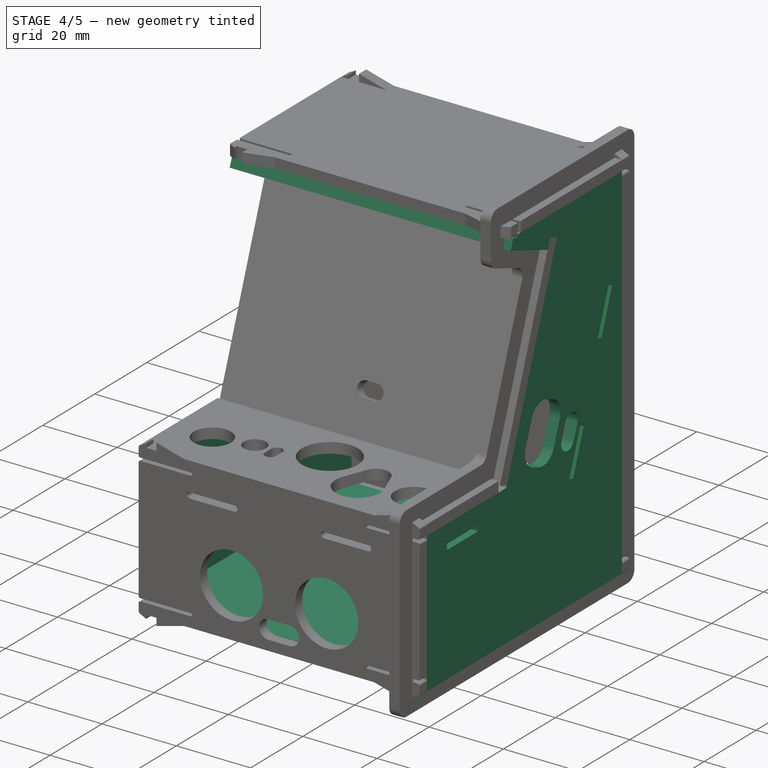
[diagram: stage 4 of 5 — iso view after this stage's code; geometry added in this stage tinted green]
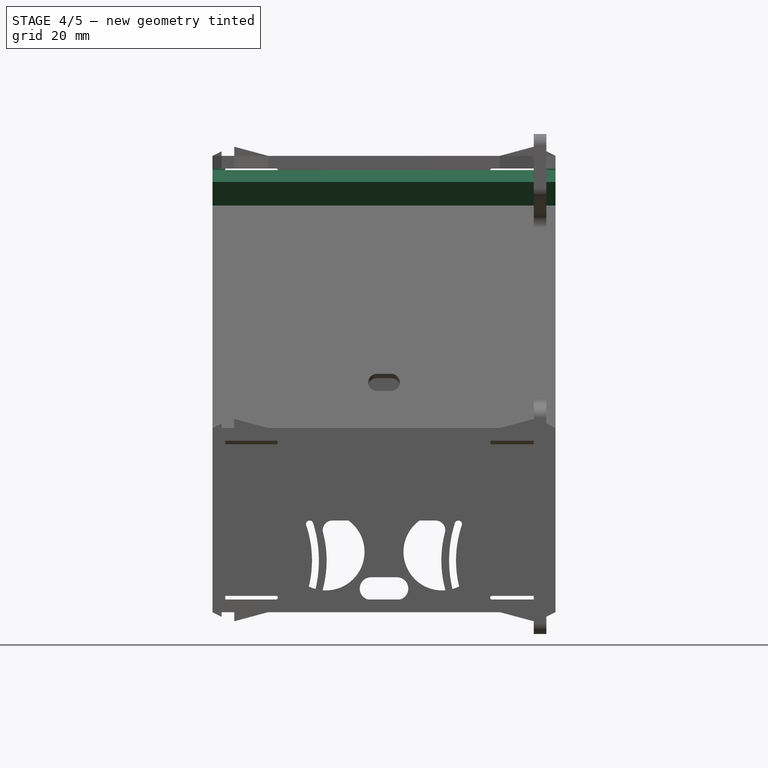
[diagram: stage 4 of 5 — front view after this stage's code; geometry added in this stage tinted green]
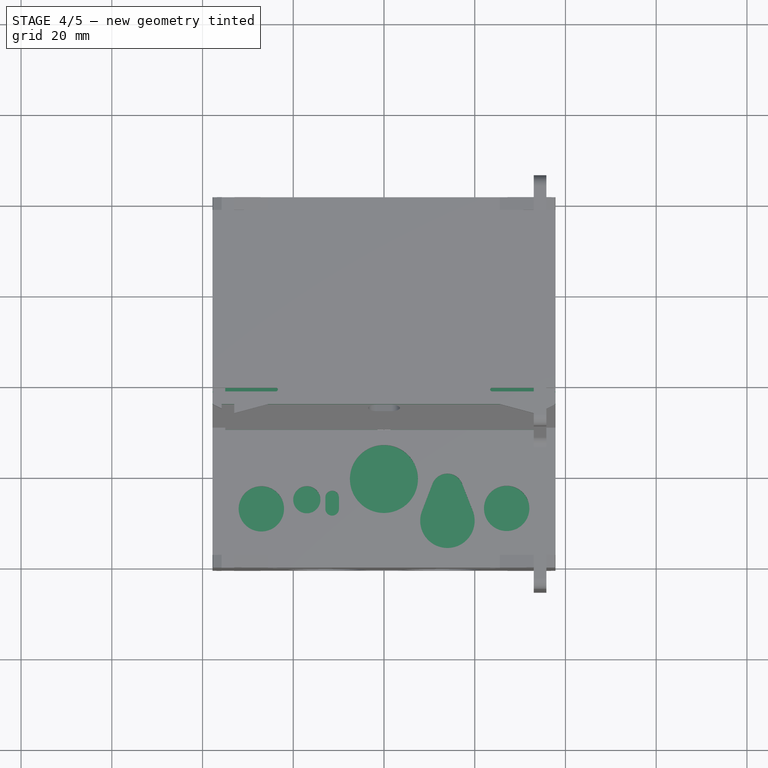
[diagram: stage 4 of 5 — top view after this stage's code; geometry added in this stage tinted green]
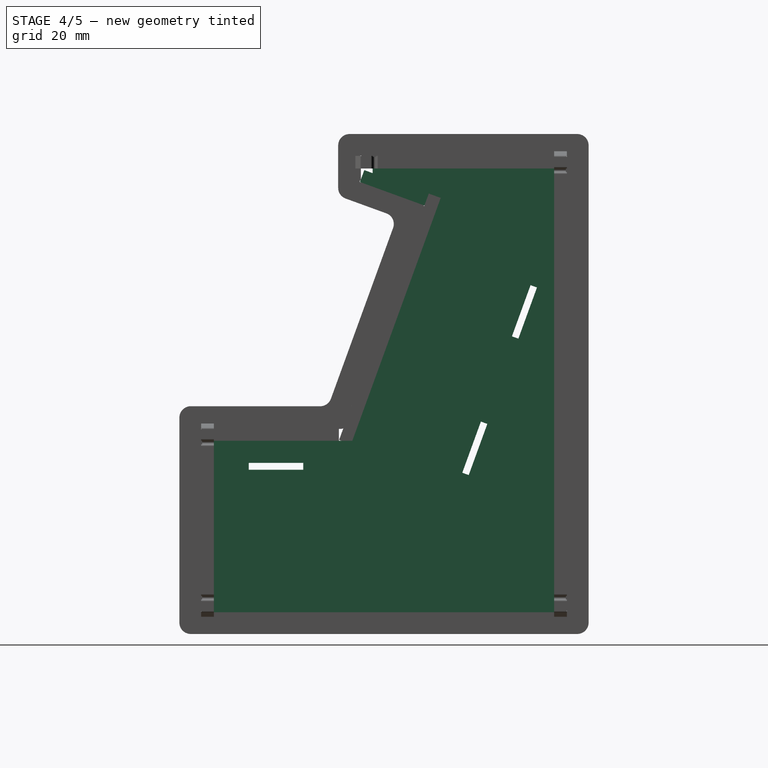
[diagram: stage 4 of 5 — right view after this stage's code; geometry added in this stage tinted green]
FEATURE [Spreadsheet::Sheet] Spreadsheet
  cells = A2='Acrylic_thickness; B2(Acrylic_thickness)=2.8; A3='USB_slot_radius; B3(USB_slot_radius)=4.5; A4='USB_slot_width; B4(USB_slot_width)=9; A5='SW_slot_radius; B5(SW_slot_radius)=3; A6='tri_tab_big_height; B6(tri_tab_big_height)=2; A7='tri_tab_big_angle; B7(tri_tab_big_angle)=75; A8='tri_tab_small_height; B8(tri_tab_small_height)=1; A9='tri_tab_small_width; B9(tri_tab_small_width)=2; A10='flex_tab_length; B10(flex_tab_length)==B2 * 5; A11='flex_tab_radius; B11(flex_tab_radius)=0.4; A12='lock_clip_width; B12(lock_clip_width)=5; A13='lock_clip_radius; B13(lock_clip_radius)=2.5; A14='corner_relief_hole; B14(corner_relief_hole)=0.5; A15='laser_kerf; B15(laser_kerf)=0.2
FEATURE [Sketcher::SketchObject] Sketch002
  ArcFitTolerance = 0
  FullyConstrained = true
  MakeInternals = false
  MapMode = 5
  Placement = pos=(-35,7.7e-15,3.9e-15) rot=(0.57735,-0.57735,-0.57735;2.0944rad)
  sketch-geometry (26):
    g0: LineSegment StartX=22.7 StartY=60.4 StartZ=0 EndX=-17.3 EndY=60.4 EndZ=0
    g1: LineSegment StartX=-17.3 StartY=60.4 StartZ=0 EndX=-17.3 EndY=-34.6 EndZ=0
    g2: LineSegment StartX=-17.3 StartY=-34.6 StartZ=0 EndX=57.7 EndY=-34.6 EndZ=0
    g3: LineSegment StartX=57.7 StartY=-34.6 StartZ=0 EndX=57.7 EndY=0.4 EndZ=0
    g4: LineSegment StartX=57.7 StartY=0.4 StartZ=0 EndX=27.1802 EndY=0.4 EndZ=0
    g5: LineSegment StartX=27.1802 StartY=0.4 StartZ=0 EndX=7.7 EndY=53.9213 EndZ=0
    g6: LineSegment StartX=7.7 StartY=53.9213 StartZ=0 EndX=22.7 EndY=59.3809 EndZ=0
    g7: LineSegment StartX=22.7 StartY=59.3809 StartZ=0 EndX=22.7 EndY=60.4 EndZ=0
    g8: ArcOfCircle [constr] CenterX=38 CenterY=-5.245 CenterZ=0 NormalX=0 NormalY=0 NormalZ=1 AngleXU=0 Radius=0.755 StartAngle=1.5708 EndAngle=4.71239
    g9: ArcOfCircle [constr] CenterX=50 CenterY=-5.245 CenterZ=0 NormalX=0 NormalY=0 NormalZ=1 AngleXU=0 Radius=0.755 StartAngle=4.71239 EndAngle=7.85398
    g10: LineSegment StartX=38 StartY=-4.49 StartZ=0 EndX=50 EndY=-4.49 EndZ=0
    g11: LineSegment StartX=38 StartY=-6 StartZ=0 EndX=50 EndY=-6 EndZ=0
    g12: ArcOfCircle [constr] CenterX=-1.87033 CenterY=4.3613 CenterZ=0 NormalX=0 NormalY=0 NormalZ=1 AngleXU=0 Radius=0.755 StartAngle=0.349066 EndAngle=3.49066
    g13: ArcOfCircle [constr] CenterX=2.23391 CenterY=-6.91501 CenterZ=0 NormalX=0 NormalY=0 NormalZ=1 AngleXU=0 Radius=0.755 StartAngle=3.49066 EndAngle=6.63225
    g14: LineSegment StartX=-1.16086 StartY=4.61952 StartZ=0 EndX=2.94338 EndY=-6.65679 EndZ=0
    g15: LineSegment StartX=-2.5798 StartY=4.10307 StartZ=0 EndX=1.52444 EndY=-7.17324 EndZ=0
    g16: ArcOfCircle [constr] CenterX=-12.815 CenterY=34.4315 CenterZ=0 NormalX=0 NormalY=0 NormalZ=1 AngleXU=0 Radius=0.755 StartAngle=0.349066 EndAngle=3.49066
    g17: ArcOfCircle [constr] CenterX=-8.71073 CenterY=23.1552 CenterZ=0 NormalX=0 NormalY=0 NormalZ=1 AngleXU=0 Radius=0.755 StartAngle=3.49066 EndAngle=6.63225
    g18: LineSegment StartX=-12.1055 StartY=34.6897 StartZ=0 EndX=-8.00127 EndY=23.4134 EndZ=0
    g19: LineSegment StartX=-13.5244 StartY=34.1732 StartZ=0 EndX=-9.4202 EndY=22.8969 EndZ=0
    g20: LineSegment StartX=-12.1055 StartY=34.6897 StartZ=0 EndX=-13.5244 EndY=34.1732 EndZ=0
    g21: LineSegment StartX=-8.00127 StartY=23.4134 StartZ=0 EndX=-9.4202 EndY=22.8969 EndZ=0
    g22: LineSegment StartX=-1.16086 StartY=4.61952 StartZ=0 EndX=-2.5798 EndY=4.10307 EndZ=0
    g23: LineSegment StartX=2.94338 StartY=-6.65679 StartZ=0 EndX=1.52444 EndY=-7.17324 EndZ=0
    g24: LineSegment StartX=38 StartY=-4.49 StartZ=0 EndX=38 EndY=-6 EndZ=0
    g25: LineSegment StartX=50 StartY=-4.49 StartZ=0 EndX=50 EndY=-6 EndZ=0
  constraints (52):
    c: Coincident(g0,g1)
    c: Coincident(g1,g2)
    c: Coincident(g2,g3)
    c: Coincident(g3,g4)
    c: Coincident(g4,g5)
    c: Coincident(g5,g6)
    c: Coincident(g6,g7)
    c: Coincident(g7,g0)
    c: Coincident(g-3,g0)
    c: Coincident(g0,g-3)
    c: Coincident(g6,g-4)
    c: Coincident(g5,g-4)
    c: Coincident(g-5,g4)
    c: Coincident(g3,g-5)
    c: Coincident(g2,g-6)
    c: Coincident(g1,g-6)
    c: Tangent(g8,g10) = 1.5708
    c: Tangent(g8,g11) = -1.5708
    c: Tangent(g9,g10) = 1.5708
    c: Tangent(g9,g11) = -1.5708
    c: Equal(g8,g9)
    c: Coincident(g8,g-12)
    c: Coincident(g9,g-11)
    c: Equal(g-11,g9)
    c: Tangent(g12,g14) = 1.5708
    c: Tangent(g12,g15) = -1.5708
    c: Tangent(g13,g14) = 1.5708
    c: Tangent(g13,g15) = -1.5708
    c: Equal(g12,g13)
    c: Coincident(g12,g-9)
    c: Coincident(g13,g-10)
    c: Equal(g-10,g13)
    c: Tangent(g16,g18) = 1.5708
    c: Tangent(g16,g19) = -1.5708
    c: Tangent(g17,g18) = 1.5708
    c: Tangent(g17,g19) = -1.5708
    c: Equal(g16,g17)
    c: Coincident(g16,g-7)
    c: Coincident(g17,g-8)
    c: Equal(g-8,g17)
    c: Coincident(g20,g16)
    c: Coincident(g20,g16)
    c: Coincident(g21,g17)
    c: Coincident(g21,g17)
    c: Coincident(g22,g12)
    c: Coincident(g22,g12)
    c: Coincident(g23,g13)
    c: Coincident(g23,g13)
    c: Coincident(g24,g8)
    c: Coincident(g24,g8)
    c: Coincident(g25,g9)
    c: Coincident(g25,g9)
FEATURE [PartDesign::Pad] Pad002
  Direction = (-1,1e-16,-1e-16)
  Length = 2.8
  Length2 = 10
  Placement = pos=(-35,7.7e-15,3.9e-15) rot=(0.57735,-0.57735,-0.57735;2.0944rad)
  Profile = -> Sketch002
  ReferenceAxis = -> Sketch002 [N_Axis]
  Suppressed = false
  Type = 0
  expr: Length = Spreadsheet.Acrylic_thickness
FEATURE [PartDesign::Body] Body012  label="Body_right_clip"
  AllowCompound = false
  Group = -> [Binder010,Sketch012,Pad012,Sketch015,Pocket009,Binder031]
  Origin = -> Origin038
  Tip = -> Pocket009
FEATURE [PartDesign::FeatureBase] Clone001
  BaseFeature = -> Body012
  Suppressed = false
FEATURE [PartDesign::Body] Body004  label="Body_top"
  AllowCompound = false
  Group = -> [ShapeBinder003,Sketch004,Pad013]
  Origin = -> Origin030
  Tip = -> Pad013
FEATURE [PartDesign::Pad] Pad014
  Direction = (0,0,1)
  Length = 2.8
  Length2 = 10
  Placement = pos=(3.8e-15,-1.14e-14,-34.6) rot=(0,0,1;0rad)
  Profile = -> Sketch005
  ReferenceAxis = -> Sketch005 [N_Axis]
  Refine = true
  Reversed = true
  Suppressed = false
  Type = 0
  expr: Length = Spreadsheet.Acrylic_thickness
FEATURE [PartDesign::Pad] Pad016
  Direction = (0,-0.34202,-0.939693)
  Length = 2.8
  Length2 = 10
  Placement = pos=(-1.4e-15,15.4716,42.5079) rot=(1,0,0;2.79253rad)
  Profile = -> Sketch007
  ReferenceAxis = -> Sketch007 [N_Axis]
  Refine = true
  Reversed = true
  Suppressed = false
  Type = 0
  expr: Length = Spreadsheet.Acrylic_thickness
FEATURE [PartDesign::SubShapeBinder] Binder035
  BindCopyOnChange = 0
  BindMode = 0
  ClaimChildren = false
  Context = -> Body001 [Binder035.]
  Fuse = false
  MakeFace = true
  OffsetFill = false
  OffsetIntersection = false
  OffsetJoinType = 0
  OffsetOpenResult = false
  PartialLoad = false
  Refine = true
  Relative = true
  Support = -> [TheThing_main_1[arduino_nano.Part__Feature4068.Face2477]]
  _Version = 2
FEATURE [PartDesign::SubShapeBinder] Binder036
  BindCopyOnChange = 0
  BindMode = 0
  ClaimChildren = false
  Context = -> Body001 [Binder036.]
  Fuse = false
  MakeFace = true
  OffsetFill = false
  OffsetIntersection = false
  OffsetJoinType = 0
  OffsetOpenResult = false
  PartialLoad = false
  Refine = true
  Relative = true
  Support = -> [TheThing_main_1[Part__Feature4059.Face7]]
  _Version = 2
FEATURE [Sketcher::SketchObject] Sketch001
  ArcFitTolerance = 0
  ExternalGeometry = -> [Binder021,Binder036,Binder035]
  FullyConstrained = true
  MakeInternals = false
  MapMode = 5
  Placement = pos=(35,-1.55e-14,-3.9e-15) rot=(0.57735,0.57735,0.57735;2.0944rad)
  expr: Constraints[60] = Spreadsheet.USB_slot_radius
  sketch-geometry (41):
    g0: LineSegment StartX=-22.7 StartY=60.4 StartZ=0 EndX=17.3 EndY=60.4 EndZ=0
    g1: LineSegment StartX=17.3 StartY=60.4 StartZ=0 EndX=17.3 EndY=-34.6 EndZ=0
    g2: LineSegment StartX=17.3 StartY=-34.6 StartZ=0 EndX=-57.7 EndY=-34.6 EndZ=0
    g3: LineSegment StartX=-57.7 StartY=-34.6 StartZ=0 EndX=-57.7 EndY=0.4 EndZ=0
    g4: LineSegment StartX=-57.7 StartY=0.4 StartZ=0 EndX=-27.1802 EndY=0.4 EndZ=0
    g5: LineSegment StartX=-27.1802 StartY=0.4 StartZ=0 EndX=-7.7 EndY=53.9213 EndZ=0
    g6: LineSegment StartX=-7.7 StartY=53.9213 StartZ=0 EndX=-22.7 EndY=59.3809 EndZ=0
    g7: LineSegment StartX=-22.7 StartY=59.3809 StartZ=0 EndX=-22.7 EndY=60.4 EndZ=0
    g8: LineSegment StartX=-11.7182 StartY=16.0476 StartZ=0 EndX=-9.36897 EndY=15.1926 EndZ=0
    g9: ArcOfCircle CenterX=-10.9081 CenterY=10.964 CenterZ=0 NormalX=0 NormalY=0 NormalZ=1 AngleXU=0 Radius=4.5 StartAngle=5.93412 EndAngle=7.50492
    g10: LineSegment StartX=-6.67944 StartY=9.42486 StartZ=0 EndX=-8.90257 EndY=3.31686 EndZ=0
    g11: ArcOfCircle CenterX=-13.1312 CenterY=4.85595 CenterZ=0 NormalX=0 NormalY=0 NormalZ=1 AngleXU=0 Radius=4.5 StartAngle=4.36332 EndAngle=5.93412
    g12: LineSegment StartX=-14.6703 StartY=0.627336 StartZ=0 EndX=-17.0195 EndY=1.48239 EndZ=0
    g13: ArcOfCircle CenterX=-15.4804 CenterY=5.711 CenterZ=0 NormalX=0 NormalY=0 NormalZ=1 AngleXU=0 Radius=4.5 StartAngle=2.79253 EndAngle=4.36332
    g14: LineSegment StartX=-19.709 StartY=7.25009 StartZ=0 EndX=-17.4859 EndY=13.3581 EndZ=0
    g15: ArcOfCircle CenterX=-13.2573 CenterY=11.819 CenterZ=0 NormalX=0 NormalY=0 NormalZ=1 AngleXU=0 Radius=4.5 StartAngle=1.22173 EndAngle=2.79253
    g16: LineSegment [constr] StartX=-14.9327 StartY=8.97022 StartZ=0 EndX=-18.5975 EndY=10.3041 EndZ=0
    g17: LineSegment [constr] StartX=-11.4558 StartY=7.70474 StartZ=0 EndX=-7.79101 EndY=6.37086 EndZ=0
    g18: ArcOfCircle CenterX=-2.19827 CenterY=6.7467 CenterZ=0 NormalX=0 NormalY=0 NormalZ=1 AngleXU=0 Radius=2.5 StartAngle=5.93412 EndAngle=9.07571
    g19: ArcOfCircle CenterX=-3.60055 CenterY=2.89396 CenterZ=0 NormalX=0 NormalY=0 NormalZ=1 AngleXU=0 Radius=2.5 StartAngle=2.79253 EndAngle=5.93412
    g20: LineSegment StartX=0.150959 StartY=5.89165 StartZ=0 EndX=-1.25132 EndY=2.03891 EndZ=0
    g21: LineSegment StartX=-4.5475 StartY=7.60175 StartZ=0 EndX=-5.94979 EndY=3.74901 EndZ=0
    g22: ArcOfCircle [constr] CenterX=-50 CenterY=-5.245 CenterZ=0 NormalX=0 NormalY=0 NormalZ=1 AngleXU=0 Radius=0.755 StartAngle=1.5708 EndAngle=4.71239
    g23: ArcOfCircle [constr] CenterX=-38 CenterY=-5.245 CenterZ=0 NormalX=0 NormalY=0 NormalZ=1 AngleXU=0 Radius=0.755 StartAngle=4.71239 EndAngle=7.85398
    g24: LineSegment StartX=-50 StartY=-4.49 StartZ=0 EndX=-38 EndY=-4.49 EndZ=0
    g25: LineSegment StartX=-50 StartY=-6 StartZ=0 EndX=-38 EndY=-6 EndZ=0
    g26: ArcOfCircle [constr] CenterX=12.815 CenterY=34.4315 CenterZ=0 NormalX=0 NormalY=0 NormalZ=1 AngleXU=0 Radius=0.755 StartAngle=5.93412 EndAngle=9.07571
    g27: ArcOfCircle [constr] CenterX=8.71073 CenterY=23.1552 CenterZ=0 NormalX=0 NormalY=0 NormalZ=1 AngleXU=0 Radius=0.755 StartAngle=2.79253 EndAngle=5.93412
    g28: LineSegment StartX=13.5244 StartY=34.1732 StartZ=0 EndX=9.4202 EndY=22.8969 EndZ=0
    g29: LineSegment StartX=12.1055 StartY=34.6897 StartZ=0 EndX=8.00127 EndY=23.4134 EndZ=0
    g30: ArcOfCircle [constr] CenterX=1.87033 CenterY=4.3613 CenterZ=0 NormalX=0 NormalY=0 NormalZ=1 AngleXU=0 Radius=0.755 StartAngle=5.93412 EndAngle=9.07571
    g31: ArcOfCircle [constr] CenterX=-2.23391 CenterY=-6.91501 CenterZ=0 NormalX=0 NormalY=0 NormalZ=1 AngleXU=0 Radius=0.755 StartAngle=2.79253 EndAngle=5.93412
    g32: LineSegment StartX=2.5798 StartY=4.10307 StartZ=0 EndX=-1.52444 EndY=-7.17324 EndZ=0
    g33: LineSegment StartX=1.16086 StartY=4.61952 StartZ=0 EndX=-2.94338 EndY=-6.65679 EndZ=0
    g34: LineSegment [constr] StartX=-0.055773 StartY=5.96689 StartZ=0 EndX=0.150959 EndY=5.89165 EndZ=0
    g35: LineSegment StartX=-50 StartY=-4.49 StartZ=0 EndX=-50 EndY=-6 EndZ=0
    g36: LineSegment StartX=-38 StartY=-4.49 StartZ=0 EndX=-38 EndY=-6 EndZ=0
    g37: LineSegment StartX=-2.94338 StartY=-6.65679 StartZ=0 EndX=-1.52444 EndY=-7.17324 EndZ=0
    g38: LineSegment StartX=1.16086 StartY=4.61952 StartZ=0 EndX=2.5798 EndY=4.10307 EndZ=0
    g39: LineSegment StartX=8.00127 StartY=23.4134 StartZ=0 EndX=9.4202 EndY=22.8969 EndZ=0
    g40: LineSegment StartX=12.1055 StartY=34.6897 StartZ=0 EndX=13.5244 EndY=34.1732 EndZ=0
  constraints (87):
    c: Coincident(g0,g1)
    c: Coincident(g1,g2)
    c: Coincident(g2,g3)
    c: Coincident(g3,g4)
    c: Coincident(g4,g5)
    c: Coincident(g5,g6)
    c: Coincident(g6,g7)
    c: Coincident(g7,g0)
    c: Coincident(g-3,g0)
    c: Coincident(g-3,g6)
    c: Coincident(g-6,g5)
    c: Coincident(g-6,g4)
    c: Coincident(g3,g-5)
    c: Coincident(g2,g-5)
    c: Coincident(g1,g-4)
    c: Coincident(g0,g-4)
    c: Tangent(g8,g9) = 1.5708
    c: Tangent(g9,g10) = 1.5708
    c: Tangent(g10,g11) = 1.5708
    c: Tangent(g11,g12) = 1.5708
    c: Tangent(g12,g13) = 1.5708
    c: Tangent(g13,g14) = 1.5708
    c: Tangent(g14,g15) = 1.5708
    c: Tangent(g15,g8) = 1.5708
    c: Equal(g13,g11)
    c: Equal(g11,g9)
    c: Symmetric(g14,g14,g16)
    c: Symmetric(g10,g10,g17)
    c: Equal(g16,g17)
    c: Tangent(g18,g20) = 1.5708
    c: Tangent(g18,g21) = -1.5708
    c: Tangent(g19,g20) = 1.5708
    c: Tangent(g19,g21) = -1.5708
    c: Equal(g18,g19)
    c: Radius(g19) = 2.5
    c: Tangent(g22,g24) = 1.5708
    c: Tangent(g22,g25) = -1.5708
    c: Tangent(g23,g24) = 1.5708
    c: Tangent(g23,g25) = -1.5708
    c: Equal(g22,g23)
    c: Equal(g23,g-8)
    c: Coincident(g23,g-8)
    c: Coincident(g22,g-7)
    c: Tangent(g26,g28) = 1.5708
    c: Tangent(g26,g29) = -1.5708
    c: Tangent(g27,g28) = 1.5708
    c: Tangent(g27,g29) = -1.5708
    c: Equal(g26,g27)
    c: Coincident(g26,g-9)
    c: Coincident(g27,g-10)
    c: Equal(g-10,g27)
    c: Tangent(g30,g32) = 1.5708
    c: Tangent(g30,g33) = -1.5708
    c: Tangent(g31,g32) = 1.5708
    c: Tangent(g31,g33) = -1.5708
    c: Equal(g30,g31)
    c: Coincident(g30,g-11)
    c: Coincident(g31,g-12)
    c: Equal(g31,g-12)
    c: Distance(g8,g12) = 15.5
    c: Radius(g15) = 4.5
    c: Distance(g14,g9) = 11.5
    c: Coincident(g34,g-13)
    c: Coincident(g34,g18)
    c: Coincident(g18,g-13)
    c: Coincident(g19,g-14)
    c: Coincident(g15,g-15)
    c: Perpendicular(g-16,g16)
    c: Perpendicular(g17,g-17)
    c: Perpendicular(g16,g14)
    c: Perpendicular(g10,g17)
    c: Perpendicular(g12,g14)
    c: Perpendicular(g10,g8)
    c: Symmetric(g-16,g-16,g16)
    c: Symmetric(g-17,g-17,g17)
    c: Coincident(g35,g22)
    c: Coincident(g35,g22)
    c: Coincident(g36,g23)
    c: Coincident(g36,g23)
    c: Coincident(g37,g31)
    c: Coincident(g37,g31)
    c: Coincident(g38,g30)
    c: Coincident(g38,g30)
    c: Coincident(g39,g27)
    c: Coincident(g39,g27)
    c: Coincident(g40,g26)
    c: Coincident(g40,g26)
FEATURE [PartDesign::Body] Body001  label="Body_right"
  AllowCompound = false
  Group = -> [Sketch001,Binder021,Binder035,Binder036]
  Origin = -> Origin027
FEATURE [PartDesign::Pad] Pad001
  Direction = (1,1e-16,-1e-16)
  Length = 2.8
  Length2 = 10
  Placement = pos=(35,-1.55e-14,-3.9e-15) rot=(0.57735,0.57735,0.57735;2.0944rad)
  Profile = -> Sketch001
  ReferenceAxis = -> Sketch001 [N_Axis]
  Suppressed = false
  Type = 0
  expr: Length = Spreadsheet.Acrylic_thickness
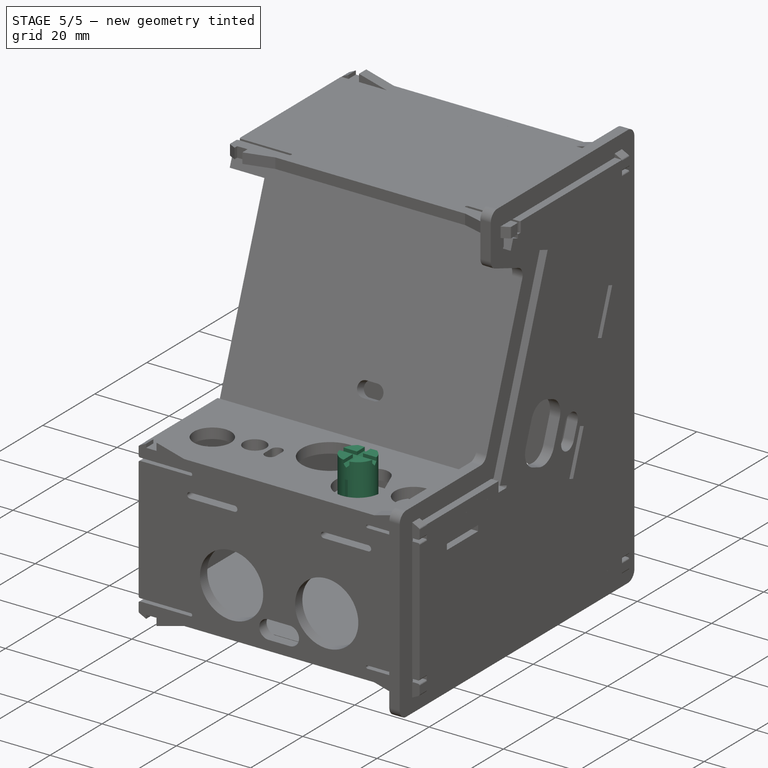
[diagram: stage 5 of 5 — iso view after this stage's code; geometry added in this stage tinted green]
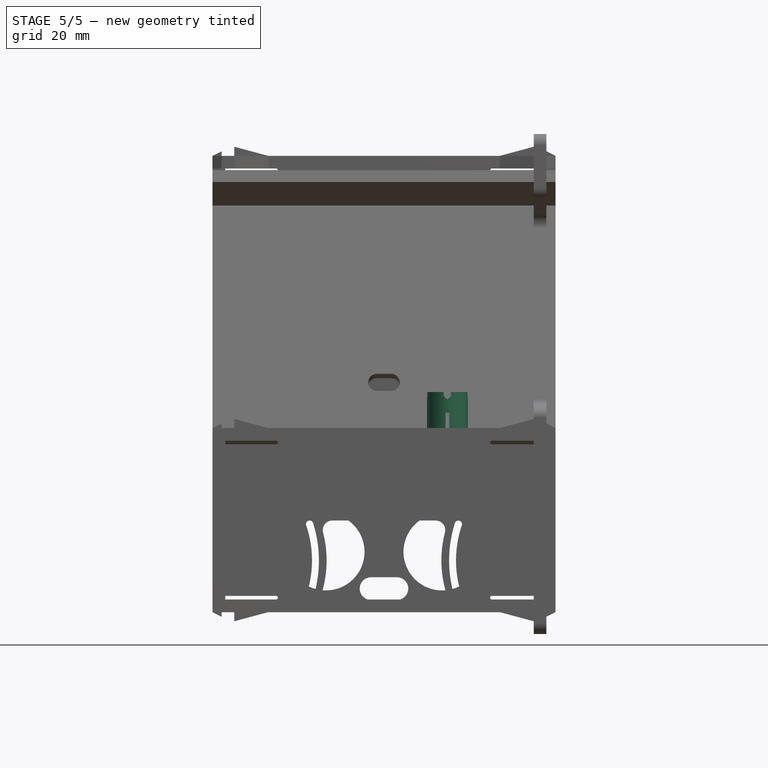
[diagram: stage 5 of 5 — front view after this stage's code; geometry added in this stage tinted green]
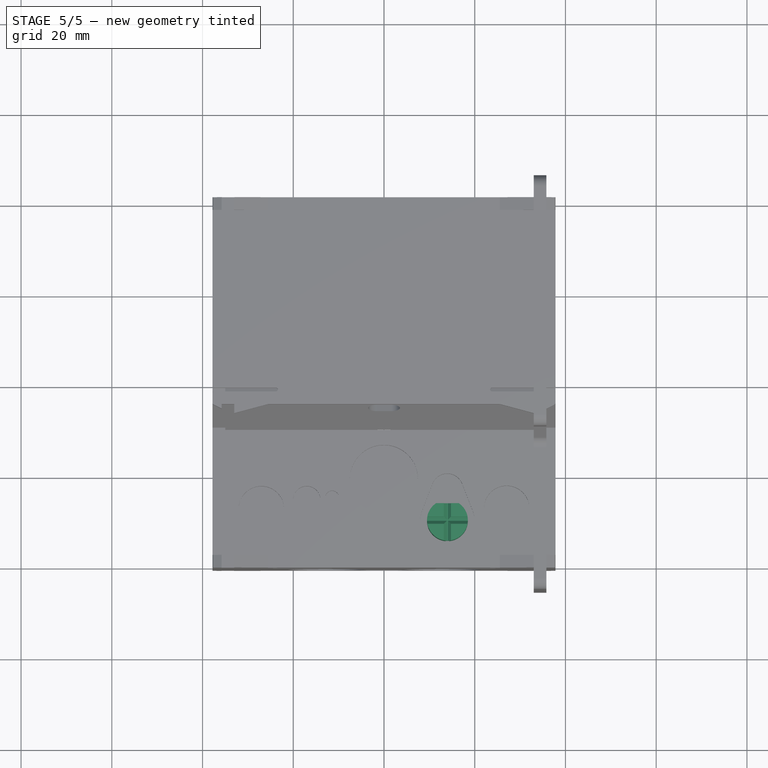
[diagram: stage 5 of 5 — top view after this stage's code; geometry added in this stage tinted green]
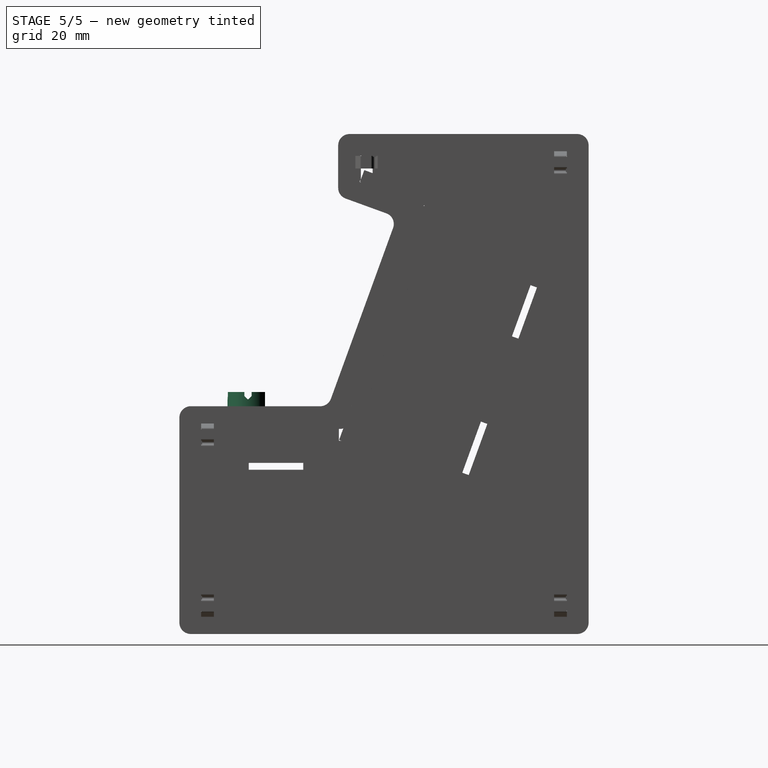
[diagram: stage 5 of 5 — right view after this stage's code; geometry added in this stage tinted green]
FEATURE [App::DocumentObjectGroup] Group  label="Enclosure_Acrylic"
  Group = -> [Body001,Body002,Body004,Body005,Body006,Body007,Body008,Body009,Body011]
FEATURE [PartDesign::SubShapeBinder] Binder039
  BindCopyOnChange = 0
  BindMode = 0
  ClaimChildren = false
  Context = -> Body015 [Binder039.]
  Fuse = false
  MakeFace = true
  OffsetFill = false
  OffsetIntersection = false
  OffsetJoinType = 0
  OffsetOpenResult = false
  PartialLoad = false
  Refine = true
  Relative = true
  Support = -> [TheThing_addon_002[Trimpot_THT.]]
  _Version = 2
FEATURE [Sketcher::SketchObject] Sketch031
  ArcFitTolerance = 1e-06
  ExternalGeometry = -> [Binder039]
  FullyConstrained = true
  MakeInternals = false
  MapMode = 5
  Placement = pos=(0,0,3.15) rot=(0,0,1;0rad)
  sketch-geometry (7):
    g0: ArcOfCircle CenterX=13.98 CenterY=-50.184 CenterZ=0 NormalX=0 NormalY=0 NormalZ=1 AngleXU=0 Radius=3.25 StartAngle=2.26396 EndAngle=7.16082
    g1: ArcOfCircle CenterX=13.98 CenterY=-50.184 CenterZ=0 NormalX=0 NormalY=0 NormalZ=1 AngleXU=0 Radius=4.5 StartAngle=2.15648 EndAngle=7.2683
    g2: LineSegment StartX=11.9033 StartY=-47.684 StartZ=0 EndX=16.0567 EndY=-47.684 EndZ=0
    g3: LineSegment [constr] StartX=13.98 StartY=-50.184 StartZ=0 EndX=13.98 EndY=-47.684 EndZ=0
    g4: LineSegment [constr] StartX=13.98 StartY=-50.184 StartZ=0 EndX=13.98 EndY=-53.434 EndZ=0
    g5: LineSegment StartX=11.4925 StartY=-46.434 StartZ=0 EndX=16.4675 EndY=-46.434 EndZ=0
    g6: LineSegment [constr] StartX=13.98 StartY=-47.684 StartZ=0 EndX=13.98 EndY=-46.434 EndZ=0
  constraints (20):
    c: Diameter(g0) = 6.5
    c: Diameter(g1) = 9
    c: Coincident(g0,g1)
    c: Coincident(g3,g0)
    c: Symmetric(g2,g2,g3)
    c: Coincident(g0,g2)
    c: Coincident(g0,g2)
    c: Coincident(g4,g0)
    c: PointOnObject(g4,g0)
    c: Parallel(g3,g4)
    c: Distance(g4,g3) = 5.75
    c: Vertical(g3)
    c: Parallel(g5,g2)
    c: Coincident(g6,g3)
    c: PointOnObject(g6,g5)
    c: Parallel(g6,g3)
    c: Distance(g6,g3) = 1.25
    c: Coincident(g1,g5)
    c: Coincident(g1,g5)
    c: Coincident(g0,g-3)
FEATURE [PartDesign::Pad] Pad
  Direction = (0,0,1)
  Length = 1.6
  Length2 = 10
  Placement = pos=(0,0,3.15) rot=(0,0,1;0rad)
  Profile = -> Sketch031
  ReferenceAxis = -> Sketch031 [N_Axis]
  Refine = true
  Reversed = true
  Suppressed = false
  Type = 0
FEATURE [Sketcher::SketchObject] Sketch032
  ArcFitTolerance = 1e-06
  ExternalGeometry = -> [Pad]
  FullyConstrained = true
  MakeInternals = false
  MapMode = 5
  Placement = pos=(0,0,3.15) rot=(0,0,1;0rad)
  sketch-geometry (2):
    g0: ArcOfCircle CenterX=13.98 CenterY=-50.184 CenterZ=0 NormalX=0 NormalY=0 NormalZ=1 AngleXU=0 Radius=4.5 StartAngle=2.15648 EndAngle=7.2683
    g1: LineSegment StartX=11.4925 StartY=-46.434 StartZ=0 EndX=16.4675 EndY=-46.434 EndZ=0
  constraints (5):
    c: Coincident(g0,g1)
    c: Coincident(g0,g1)
    c: Coincident(g0,g-3)
    c: Coincident(g-3,g0)
    c: Equal(g-3,g0)
FEATURE [PartDesign::Pad] Pad019
  BaseFeature = -> Pad
  Direction = (0,0,1)
  Length = 8
  Length2 = 10
  Placement = pos=(0,0,3.15) rot=(0,0,1;0rad)
  Profile = -> Sketch032
  ReferenceAxis = -> Sketch032 [N_Axis]
  Refine = true
  Suppressed = false
  Type = 0
FEATURE [Sketcher::SketchObject] Sketch033
  ArcFitTolerance = 1e-06
  ExternalGeometry = -> [Pad019]
  FullyConstrained = true
  MakeInternals = false
  MapMode = 5
  Placement = pos=(0,0,11.15) rot=(0,0,1;0rad)
  sketch-geometry (14):
    g0: LineSegment StartX=14.78 StartY=-54.684 StartZ=0 EndX=14.78 EndY=-50.984 EndZ=0
    g1: LineSegment StartX=14.78 StartY=-45.684 StartZ=0 EndX=13.18 EndY=-45.684 EndZ=0
    g2: LineSegment StartX=13.18 StartY=-45.684 StartZ=0 EndX=13.18 EndY=-49.384 EndZ=0
    g3: LineSegment StartX=13.18 StartY=-54.684 StartZ=0 EndX=14.78 EndY=-54.684 EndZ=0
    g4: GeomPoint [constr] X=13.98 Y=-50.184 Z=0
    g5: LineSegment StartX=18.48 StartY=-49.384 StartZ=0 EndX=18.48 EndY=-50.984 EndZ=0
    g6: LineSegment StartX=18.48 StartY=-50.984 StartZ=0 EndX=14.78 EndY=-50.984 EndZ=0
    g7: LineSegment StartX=9.48 StartY=-50.984 StartZ=0 EndX=9.48 EndY=-49.384 EndZ=0
    g8: LineSegment StartX=9.48 StartY=-49.384 StartZ=0 EndX=13.18 EndY=-49.384 EndZ=0
    g9: GeomPoint [constr] X=13.98 Y=-50.184 Z=0
    g10: LineSegment StartX=13.18 StartY=-50.984 StartZ=0 EndX=9.48 EndY=-50.984 EndZ=0
    g11: LineSegment StartX=14.78 StartY=-49.384 StartZ=0 EndX=14.78 EndY=-45.684 EndZ=0
    g12: LineSegment StartX=14.78 StartY=-49.384 StartZ=0 EndX=18.48 EndY=-49.384 EndZ=0
    g13: LineSegment StartX=13.18 StartY=-50.984 StartZ=0 EndX=13.18 EndY=-54.684 EndZ=0
  constraints (37):
    c: Coincident(g11,g1)
    c: Coincident(g1,g2)
    c: Coincident(g13,g3)
    c: Coincident(g3,g0)
    c: Vertical(g0)
    c: Vertical(g2)
    c: Horizontal(g1)
    c: Horizontal(g3)
    c: Symmetric(g2,g0,g4)
    c: Coincident(g5,g6)
    c: Coincident(g10,g7)
    c: Coincident(g7,g8)
    c: Coincident(g12,g5)
    c: Vertical(g5)
    c: Vertical(g7)
    c: Horizontal(g6)
    c: Horizontal(g8)
    c: Symmetric(g7,g5,g9)
    c: Coincident(g9,g4)
    c: Equal(g7,g1)
    c: Distance(g7,g7) = 1.6
    c: PointOnObject(g6,g11)
    c: PointOnObject(g8,g13)
    c: PointOnObject(g12,g0)
    c: Vertical(g11)
    c: Horizontal(g12)
    c: Vertical(g13)
    c: Horizontal(g10)
    c: PointOnObject(g11,g12)
    c: Coincident(g2,g8)
    c: Horizontal(g2,g11)
    c: Coincident(g0,g6)
    c: Horizontal(g0,g10)
    c: Coincident(g10,g13)
    c: Tangent(g7,g-3)
    c: Tangent(g-3,g3)
    c: Coincident(g4,g-3)
FEATURE [PartDesign::Pocket] Pocket018
  BaseFeature = -> Pad019
  Direction = (0,0,-1)
  Length = 1.6
  Length2 = 5
  Placement = pos=(0,0,3.15) rot=(0,0,1;0rad)
  Profile = -> Sketch033
  ReferenceAxis = -> Sketch033 [N_Axis]
  Refine = true
  Suppressed = false
  Type = 0
FEATURE [PartDesign::Chamfer] Chamfer
  Angle = 45
  Base = -> Pocket018 [Edge39,Edge35,Edge13,Edge37,Edge14,Edge41,Edge38,Edge40]
  BaseFeature = -> Pocket018
  ChamferType = 0
  FlipDirection = false
  Placement = pos=(0,0,3.15) rot=(0,0,1;0rad)
  Refine = true
  Size = 0.7
  Size2 = 1
  SupportTransform = false
  Suppressed = false
  UseAllEdges = false
FEATURE [Sketcher::SketchObject] Sketch034
  ArcFitTolerance = 1e-06
  ExternalGeometry = -> [Chamfer]
  FullyConstrained = true
  MakeInternals = false
  MapMode = 5
  Placement = pos=(0,0,1.55) rot=(1,0,0;3.14159rad)
  sketch-geometry (5):
    g0: LineSegment StartX=14.38 StartY=45.684 StartZ=0 EndX=14.38 EndY=54.684 EndZ=0
    g1: LineSegment StartX=14.38 StartY=54.684 StartZ=0 EndX=13.58 EndY=54.684 EndZ=0
    g2: LineSegment StartX=13.58 StartY=54.684 StartZ=0 EndX=13.58 EndY=45.684 EndZ=0
    g3: LineSegment StartX=13.58 StartY=45.684 StartZ=0 EndX=14.38 EndY=45.684 EndZ=0
    g4: GeomPoint [constr] X=13.98 Y=50.184 Z=0
  constraints (12):
    c: Coincident(g0,g1)
    c: Coincident(g1,g2)
    c: Coincident(g2,g3)
    c: Coincident(g3,g0)
    c: Vertical(g0)
    c: Vertical(g2)
    c: Horizontal(g1)
    c: Horizontal(g3)
    c: Symmetric(g2,g0,g4)
    c: Coincident(g4,g-3)
    c: Tangent(g1,g-3)
    c: DistanceX(g1,g1) = 0.8
FEATURE [PartDesign::Pocket] Pocket019
  BaseFeature = -> Chamfer
  Direction = (0,1e-16,1)
  Length = 5
  Length2 = 5
  Placement = pos=(0,0,3.15) rot=(0,0,1;0rad)
  Profile = -> Sketch034
  ReferenceAxis = -> Sketch034 [N_Axis]
  Refine = true
  Suppressed = false
  Type = 0
FEATURE [PartDesign::Body] Body015  label="trimpot_knob"
  AllowCompound = false
  Group = -> [Sketch031,Pad,DatumPlane,Sketch032,Pad019,Sketch033,Pocket018,Chamfer,Sketch034,Pocket019,Binder039]
  Origin = -> Origin118
  Tip = -> Pocket019
FEATURE [App::DocumentObjectGroup] MultiJoin_origin_parts
  Group = -> [Pad001,Pad002,Fillet,Pad014,Pad018,Pad016,Pocket,Pocket017,Pocket016,Body012,Body014]
FEATURE [Part::Feature] Pad001_tab
  shape: bbox 2.8 x 80.6 x 100.6 mm, 98 faces (baked)
FEATURE [Part::Feature] Pad002_tab
  shape: bbox 2.8 x 80.6 x 100.6 mm, 86 faces (baked)
FEATURE [Part::Feature] Fillet_tab
  shape: bbox 75.6 x 47.6 x 2.8 mm, 54 faces (baked)
FEATURE [Part::Feature] Pad014_tab
  shape: bbox 75.6 x 77.8 x 2.8 mm, 50 faces (baked)
FEATURE [Part::Feature] Pad018_tab
  shape: bbox 75.6 x 33.14 x 2.8 mm, 64 faces (baked)
FEATURE [Part::Feature] Pad016_tab
  shape: bbox 75.6 x 17.8 x 8.761 mm, 22 faces (baked)
FEATURE [Part::Feature] Pocket_tab
  shape: bbox 75.6 x 2.8 x 104.6 mm, 110 faces (baked)
FEATURE [Part::Feature] Pocket017_tab
  shape: bbox 75.6 x 2.8 x 44.6 mm, 118 faces (baked)
FEATURE [Part::Feature] Pocket016_tab
  shape: bbox 75.6 x 22.4 x 55.27 mm, 82 faces (baked)
FEATURE [Part::Feature] Body_right_clip_tab
  shape: bbox 2.8 x 90.2 x 110.2 mm, 46 faces (baked)
FEATURE [Part::Feature] Body_left_clip_tab
  Placement = pos=(-68.8,0,0) rot=(0,0,1;0rad)
  shape: bbox 2.8 x 90.2 x 110.2 mm, 46 faces (baked)
FEATURE [Part::FeaturePython] MultiJoin  # WARN: FeaturePython — macro-defined, semantics opaque (R4)
  fromParts = -> [MultiJoin_origin_parts,Pad001,Pad002,Fillet,Pad014,Pad018,Pad016,Pocket,Pocket017,Pocket016,Body012,Body014]
  generatedParts = -> [Pad001_tab,Pad002_tab,Fillet_tab,Pad014_tab,Pad018_tab,Pad016_tab,Pocket_tab,Pocket017_tab,Pocket016_tab,Body_right_clip_tab,Body_left_clip_tab]
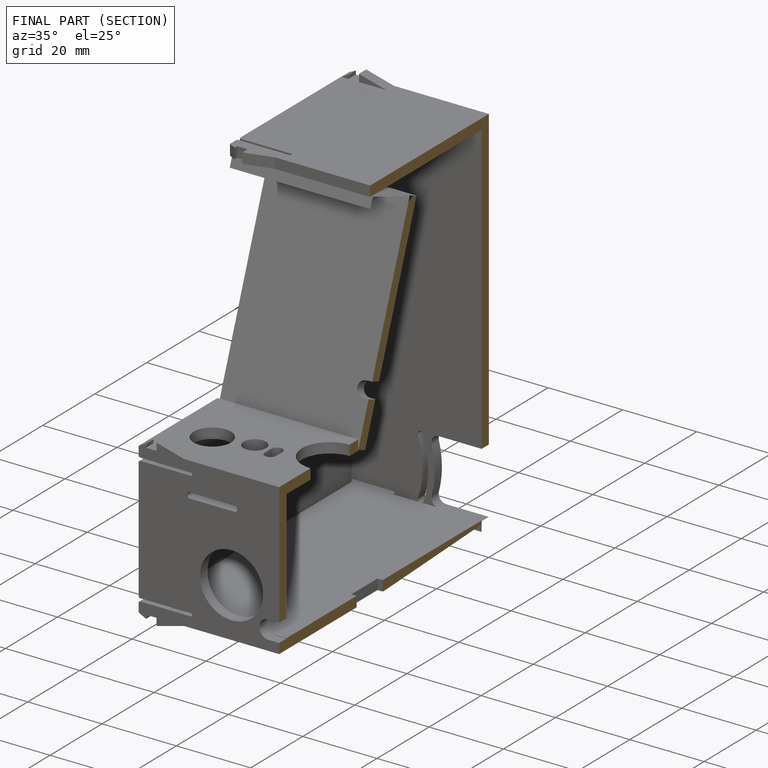
[diagram: finished part — half-section view (interior)]
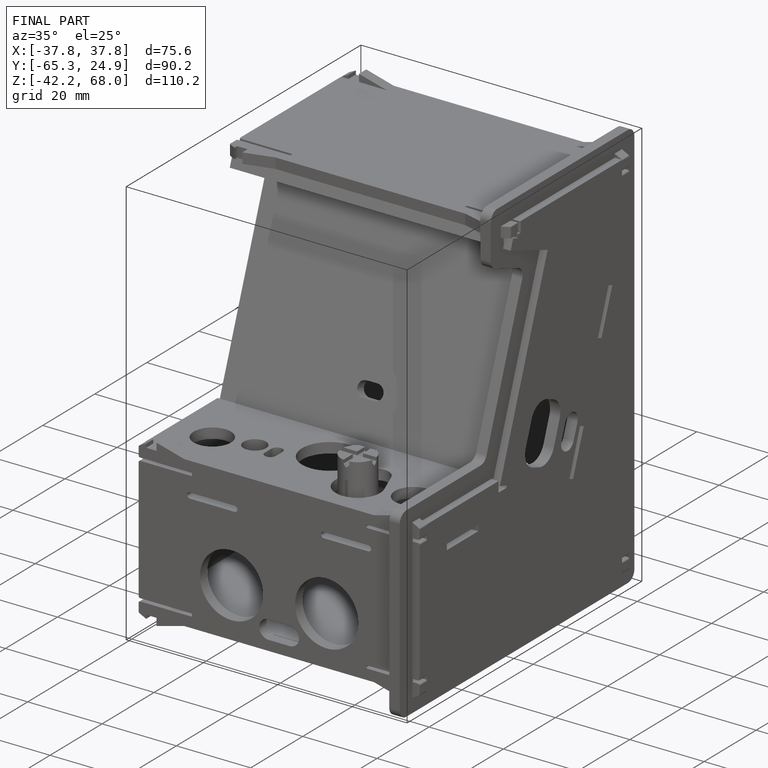
[diagram: finished part — iso view with bounding-box wireframe]
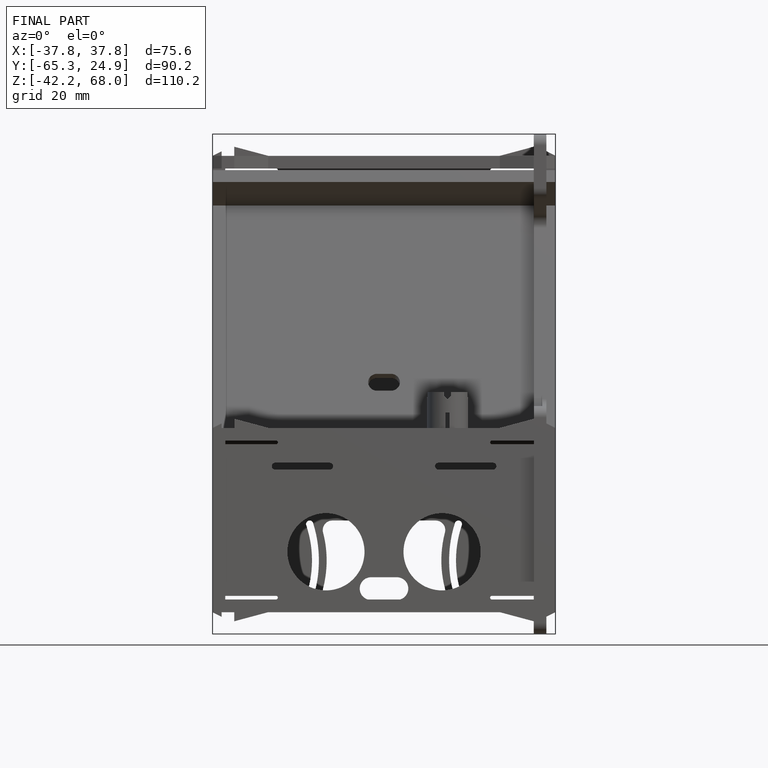
[diagram: finished part — front view with bounding-box wireframe]
